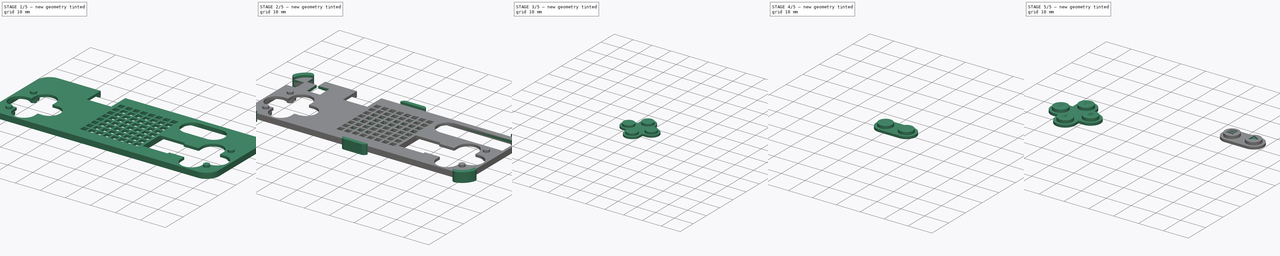
[diagram: build sequence overview — one tinted view per stage of 5, left to right]
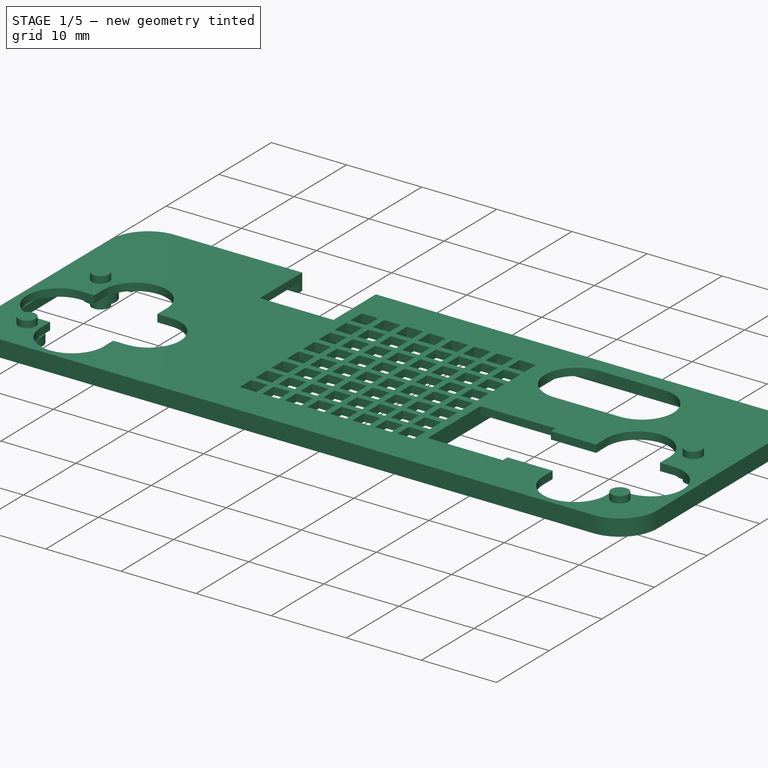
[diagram: stage 1 of 5 — iso view after this stage's code; geometry added in this stage tinted green]
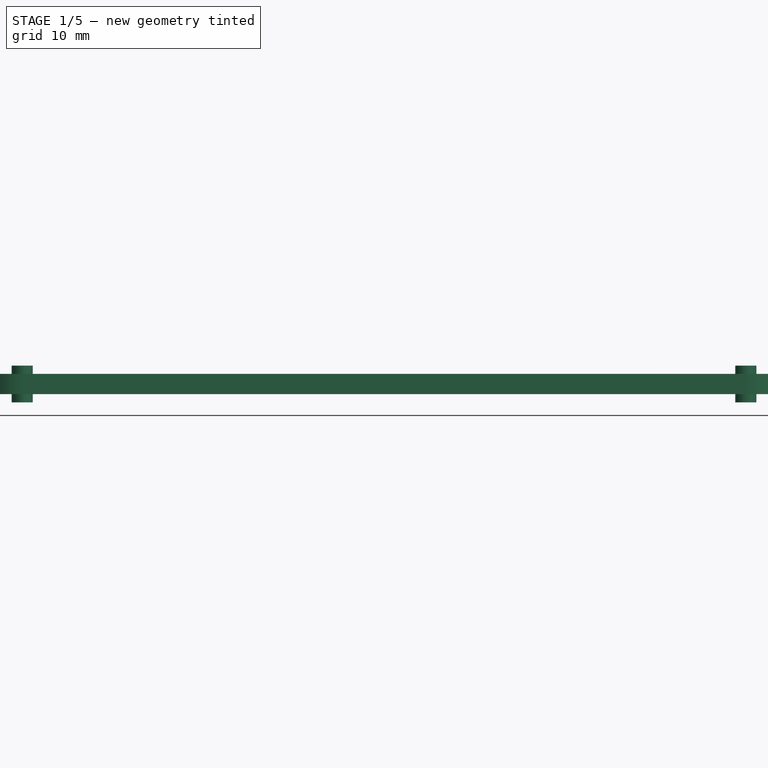
[diagram: stage 1 of 5 — front view after this stage's code; geometry added in this stage tinted green]
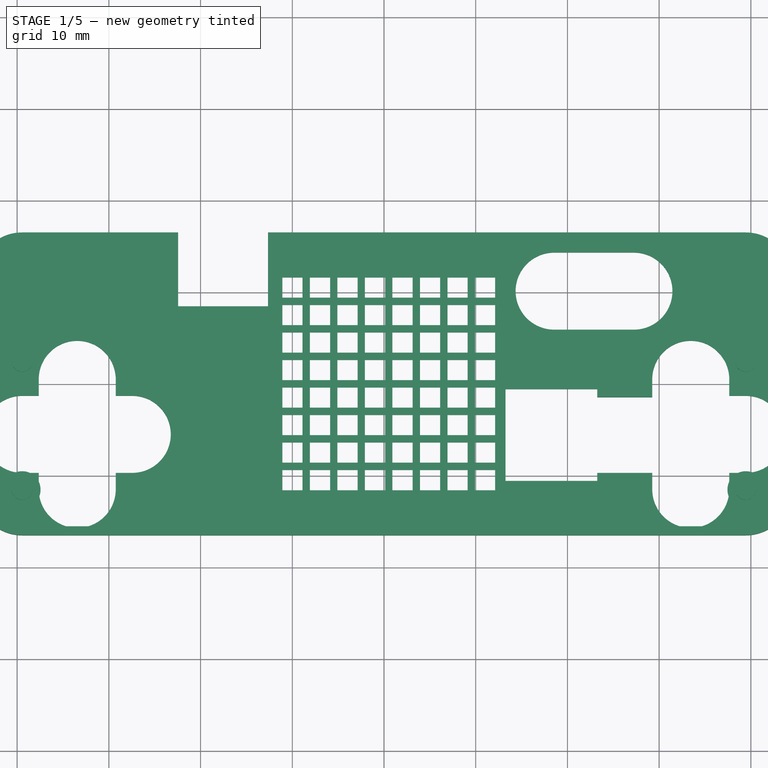
[diagram: stage 1 of 5 — top view after this stage's code; geometry added in this stage tinted green]
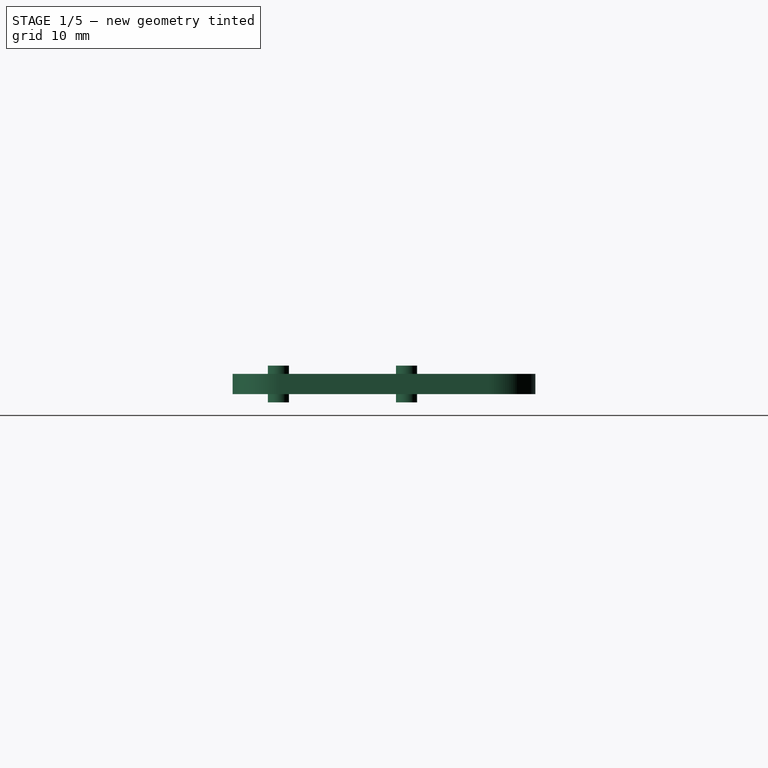
[diagram: stage 1 of 5 — right view after this stage's code; geometry added in this stage tinted green]
FCSTD DOCUMENT  (FreeCAD 1.0R39319 (Git))
Label: PIX6T4_Color
License: All rights reserved
LicenseURL: http://en.wikipedia.org/wiki/All_rights_reserved
objects: App::Link×330, Part::Feature×92, App::Part×24, Sketcher::SketchObject×22, PartDesign::SubShapeBinder×12, PartDesign::Pocket×12, PartDesign::Pad×8, PartDesign::Plane×7, PartDesign::LinearPattern×7, PartDesign::Point×5, PartDesign::CoordinateSystem×4, PartDesign::Line×4, PartDesign::Body×4, Part::Part2DObjectPython×4, PartDesign::PolarPattern×3, PartDesign::MultiTransform×2, PartDesign::Revolution×2, PartDesign::FeatureBase×1, PartDesign::Chamfer×1
note: 271 computed .brp shape members not serialized (recipe doc carries the construction recipe); baked Part::Feature solids carry a one-line shape summary decoded from their .brp

FEATURE [PartDesign::CoordinateSystem] Local_CS_e6d7
  AttacherType = Attacher::AttachEngine3D
  MapMode = 2
FEATURE [Part::Feature] Pcb_e6d7
  Placement = pos=(-194.45,116.51,0) rot=(0,0,1;0rad)
  shape: bbox 88.9 x 33.02 x 0.8 mm, 64 faces (baked)
FEATURE [Sketcher::SketchObject] PCB_Sketch_e6d7
  ArcFitTolerance = 1e-06
  FullyConstrained = false
  MakeInternals = false
  sketch-geometry (8):
    g0: LineSegment StartX=-44.45 StartY=-11.51 StartZ=0 EndX=-44.45 EndY=11.51 EndZ=0
    g1: LineSegment StartX=44.45 StartY=11.51 StartZ=0 EndX=44.45 EndY=-11.51 EndZ=0
    g2: LineSegment StartX=-39.45 StartY=16.51 StartZ=0 EndX=39.45 EndY=16.51 EndZ=0
    g3: LineSegment StartX=39.45 StartY=-16.51 StartZ=0 EndX=-39.45 EndY=-16.51 EndZ=0
    g4: ArcOfCircle CenterX=39.45 CenterY=11.51 CenterZ=0 NormalX=0 NormalY=0 NormalZ=-1 AngleXU=1.5708 Radius=5 StartAngle=0 EndAngle=1.5708
    g5: ArcOfCircle CenterX=-39.45 CenterY=11.51 CenterZ=0 NormalX=0 NormalY=0 NormalZ=-1 AngleXU=-6.42331e-08 Radius=5 StartAngle=0 EndAngle=1.5708
    g6: ArcOfCircle CenterX=-39.45 CenterY=-11.51 CenterZ=0 NormalX=0 NormalY=0 NormalZ=-1 AngleXU=-1.5708 Radius=5 StartAngle=0 EndAngle=1.5708
    g7: ArcOfCircle CenterX=39.45 CenterY=-11.51 CenterZ=0 NormalX=0 NormalY=0 NormalZ=-1 AngleXU=3.14159 Radius=5 StartAngle=0 EndAngle=1.5708
FEATURE [App::Part] Board_Geoms_e6d7
  Group = -> [Pcb_e6d7,PCB_Sketch_e6d7]
  Origin = -> Origin
FEATURE [Part::Feature] Shape  label="C13_C_0402_1005Metric_50b0befdca8e"
  Placement = pos=(2.02,6,0) rot=(0,0,1;0rad)
  shape: bbox 1 x 0.5 x 0.5 mm, 28 faces (baked)
FEATURE [Part::Feature] Part__Feature  label="LED-SMD_4P-L1.4-W1.4-TL"
  shape: bbox 1.4 x 1.4 x 0.1 mm, 14 faces (baked)
FEATURE [Part::Feature] Part__Feature001  label="LED-SMD_4P-L1.4-W1.4-TL001"
  shape: bbox 0.5 x 0.5 x 0.02 mm, 11 faces (baked)
FEATURE [Part::Feature] Part__Feature002  label="LED-SMD_4P-L1.4-W1.4-TL002"
  shape: bbox 0.5 x 0.5 x 0.02 mm, 11 faces (baked)
FEATURE [Part::Feature] Part__Feature003  label="LED-SMD_4P-L1.4-W1.4-TL003"
  shape: bbox 0.5 x 0.5 x 0.02 mm, 11 faces (baked)
FEATURE [Part::Feature] Part__Feature004  label="LED-SMD_4P-L1.4-W1.4-TL004"
  shape: bbox 0.5 x 0.5 x 0.02 mm, 11 faces (baked)
FEATURE [Part::Feature] Part__Feature005  label="LED-SMD_4P-L1.4-W1.4-TL005"
  shape: bbox 1.4 x 1.4 x 0.28 mm, 6 faces (baked)
FEATURE [Part::Feature] Part__Feature006  label="LED-SMD_4P-L1.4-W1.4-TL006"
  shape: bbox 1.4 x 1.4 x 0.01 mm, 76 faces (baked)
FEATURE [App::Part] LED_SMD_4P_L1_4_W1_4_TL  label="D13_LED-SMD_4P-L1.4-W1.4-TL007_e765e95fd25d"
  Group = -> [Part__Feature,Part__Feature001,Part__Feature002,Part__Feature003,Part__Feature004,Part__Feature005,Part__Feature006]
  Origin = -> Origin008
  Placement = pos=(2.02,7.5,0) rot=(0,0,1;1.5708rad)
FEATURE [App::Link] D13_LED_SMD_4P_L1_4_W1_4_TL007_e765e95fd25d_ln_  label="D48_LED-SMD_4P-L1.4-W1.4-TL007_c05e2c5abbd5"
  LinkPlacement = pos=(11.02,-4.5,0) rot=(0,0,1;1.5708rad)
  LinkedObject = -> LED_SMD_4P_L1_4_W1_4_TL
  Placement = pos=(11.02,-4.5,0) rot=(0,0,1;1.5708rad)
FEATURE [App::Link] C13_C_0402_1005Metric_50b0befdca8e_ln_  label="C60_C_0402_1005Metric_2370c530492c"
  LinkPlacement = pos=(-0.98,-6,0) rot=(0,0,1;0rad)
  LinkedObject = -> Shape
  Placement = pos=(-0.98,-6,0) rot=(0,0,1;0rad)
FEATURE [App::Link] D13_LED_SMD_4P_L1_4_W1_4_TL007_e765e95fd25d_ln_001  label="D36_LED-SMD_4P-L1.4-W1.4-TL007_5cdba7c2c4c5"
  LinkPlacement = pos=(-0.98,-1.5,0) rot=(0,0,1;1.5708rad)
  LinkedObject = -> LED_SMD_4P_L1_4_W1_4_TL
  Placement = pos=(-0.98,-1.5,0) rot=(0,0,1;1.5708rad)
FEATURE [App::Link] C13_C_0402_1005Metric_50b0befdca8e_ln_001  label="C54_C_0402_1005Metric_1c533becab6f"
  LinkPlacement = pos=(5.02,-3,0) rot=(0,0,1;0rad)
  LinkedObject = -> Shape
  Placement = pos=(5.02,-3,0) rot=(0,0,1;0rad)
FEATURE [App::Link] D13_LED_SMD_4P_L1_4_W1_4_TL007_e765e95fd25d_ln_002  label="D61_LED-SMD_4P-L1.4-W1.4-TL007_4615cf78e426"
  LinkPlacement = pos=(2.02,-10.5,0) rot=(0,0,1;1.5708rad)
  LinkedObject = -> LED_SMD_4P_L1_4_W1_4_TL
  Placement = pos=(2.02,-10.5,0) rot=(0,0,1;1.5708rad)
FEATURE [App::Link] C13_C_0402_1005Metric_50b0befdca8e_ln_002  label="C35_C_0402_1005Metric_8fa559b37bee"
  LinkPlacement = pos=(-16.85,-9.19,0) rot=(0,0,1;1.5708rad)
  LinkedObject = -> Shape
  Placement = pos=(-16.85,-9.19,0) rot=(0,0,1;1.5708rad)
FEATURE [App::Link] D13_LED_SMD_4P_L1_4_W1_4_TL007_e765e95fd25d_ln_003  label="D14_LED-SMD_4P-L1.4-W1.4-TL007_eb801b891331"
  LinkPlacement = pos=(5.02,7.5,0) rot=(0,0,1;1.5708rad)
  LinkedObject = -> LED_SMD_4P_L1_4_W1_4_TL
  Placement = pos=(5.02,7.5,0) rot=(0,0,1;1.5708rad)
FEATURE [App::Link] C13_C_0402_1005Metric_50b0befdca8e_ln_003  label="C61_C_0402_1005Metric_cf5816e03fbc"
  LinkPlacement = pos=(2.02,-6,0) rot=(0,0,1;0rad)
  LinkedObject = -> Shape
  Placement = pos=(2.02,-6,0) rot=(0,0,1;0rad)
FEATURE [App::Link] C13_C_0402_1005Metric_50b0befdca8e_ln_004  label="C15_C_0402_1005Metric_e2e487685c80"
  LinkPlacement = pos=(8.02,6,0) rot=(0,0,1;0rad)
  LinkedObject = -> Shape
  Placement = pos=(8.02,6,0) rot=(0,0,1;0rad)
FEATURE [App::Link] C13_C_0402_1005Metric_50b0befdca8e_ln_005  label="C45_C_0402_1005Metric_4cd5275bcfa9"
  LinkPlacement = pos=(2.02,0,0) rot=(0,0,1;0rad)
  LinkedObject = -> Shape
  Placement = pos=(2.02,0,0) rot=(0,0,1;0rad)
FEATURE [App::Link] C13_C_0402_1005Metric_50b0befdca8e_ln_006  label="C72_C_0402_1005Metric_6d59b78d1e7b"
  LinkPlacement = pos=(11.02,-9,0) rot=(0,0,1;0rad)
  LinkedObject = -> Shape
  Placement = pos=(11.02,-9,0) rot=(0,0,1;0rad)
FEATURE [App::Link] D13_LED_SMD_4P_L1_4_W1_4_TL007_e765e95fd25d_ln_004  label="D63_LED-SMD_4P-L1.4-W1.4-TL007_90f3527c0578"
  LinkPlacement = pos=(8.02,-10.5,0) rot=(0,0,1;1.5708rad)
  LinkedObject = -> LED_SMD_4P_L1_4_W1_4_TL
  Placement = pos=(8.02,-10.5,0) rot=(0,0,1;1.5708rad)
FEATURE [App::Link] C13_C_0402_1005Metric_50b0befdca8e_ln_007  label="C83_C_0402_1005Metric_5f0e74c518fe"
  LinkPlacement = pos=(-34.05,12.91,0) rot=(0,0,1;3.14159rad)
  LinkedObject = -> Shape
  Placement = pos=(-34.05,12.91,0) rot=(0,0,1;3.14159rad)
FEATURE [App::Link] C13_C_0402_1005Metric_50b0befdca8e_ln_008  label="C67_C_0402_1005Metric_19db1237b66d"
  LinkPlacement = pos=(-3.98,-9,0) rot=(0,0,1;0rad)
  LinkedObject = -> Shape
  Placement = pos=(-3.98,-9,0) rot=(0,0,1;0rad)
FEATURE [App::Link] D13_LED_SMD_4P_L1_4_W1_4_TL007_e765e95fd25d_ln_005  label="D25_LED-SMD_4P-L1.4-W1.4-TL007_3c7e8d3d0265"
  LinkPlacement = pos=(-9.98,1.5,0) rot=(0,0,1;1.5708rad)
  LinkedObject = -> LED_SMD_4P_L1_4_W1_4_TL
  Placement = pos=(-9.98,1.5,0) rot=(0,0,1;1.5708rad)
FEATURE [App::Link] C13_C_0402_1005Metric_50b0befdca8e_ln_009  label="C66_C_0402_1005Metric_48a81a4cd943"
  LinkPlacement = pos=(-6.98,-9,0) rot=(0,0,1;0rad)
  LinkedObject = -> Shape
  Placement = pos=(-6.98,-9,0) rot=(0,0,1;0rad)
FEATURE [App::Link] D13_LED_SMD_4P_L1_4_W1_4_TL007_e765e95fd25d_ln_006  label="D6_LED-SMD_4P-L1.4-W1.4-TL007_f7a4556ed106"
  LinkPlacement = pos=(5.02,10.5,0) rot=(0,0,1;1.5708rad)
  LinkedObject = -> LED_SMD_4P_L1_4_W1_4_TL
  Placement = pos=(5.02,10.5,0) rot=(0,0,1;1.5708rad)
FEATURE [Part::Feature] Part__Feature007  label="SW-SMD_4P-L5.1-W5.1-P3.70-LS6.5-TL_H1.5"
  shape: bbox 6.5 x 5 x 0.75 mm, 94 faces (baked)
FEATURE [Part::Feature] Part__Feature008  label="SW-SMD_4P-L5.1-W5.1-P3.70-LS6.5-TL_H1.006"
  shape: bbox 2.165 x 2.165 x 0.5 mm, 6 faces (baked)
FEATURE [Part::Feature] Part__Feature009  label="SW-SMD_4P-L5.1-W5.1-P3.70-LS6.5-TL_H1.007"
  shape: bbox 5.2 x 5.201 x 1.2 mm, 314 faces (baked)
FEATURE [App::Part] SW_SMD_4P_L5_1_W5_1_P3_70_LS6_5_TL_H1_5  label="SW2_SW-SMD_4P-L5.1-W5.1-P3.70-LS6.5-TL_H1.008_4c1cc90a72a0"
  Group = -> [Part__Feature007,Part__Feature008,Part__Feature009]
  Origin = -> Origin009
  Placement = pos=(-39.45,-5.51,0) rot=(0,0,1;0rad)
FEATURE [App::Link] D13_LED_SMD_4P_L1_4_W1_4_TL007_e765e95fd25d_ln_007  label="D24_LED-SMD_4P-L1.4-W1.4-TL007_21512f89c635"
  LinkPlacement = pos=(11.02,4.5,0) rot=(0,0,1;1.5708rad)
  LinkedObject = -> LED_SMD_4P_L1_4_W1_4_TL
  Placement = pos=(11.02,4.5,0) rot=(0,0,1;1.5708rad)
FEATURE [App::Link] C13_C_0402_1005Metric_50b0befdca8e_ln_010  label="C80_C_0402_1005Metric_7ffb763a014d"
  LinkPlacement = pos=(11.02,-12,0) rot=(0,0,1;0rad)
  LinkedObject = -> Shape
  Placement = pos=(11.02,-12,0) rot=(0,0,1;0rad)
FEATURE [App::Link] C13_C_0402_1005Metric_50b0befdca8e_ln_011  label="C49_C_0402_1005Metric_d94834e07465"
  LinkPlacement = pos=(-9.98,-3,0) rot=(0,0,1;0rad)
  LinkedObject = -> Shape
  Placement = pos=(-9.98,-3,0) rot=(0,0,1;0rad)
FEATURE [Part::Feature] Shape001  label="BUZ1_BUZ-SMD_L9.0-W9.0_PKMCS0909E4000-R1_07a8d7dddef7"
  Placement = pos=(18.25,-5.59,0) rot=(0,0,1;0rad)
  shape: bbox 9.002 x 9 x 3.011 mm, 257 faces (baked)
FEATURE [App::Link] C13_C_0402_1005Metric_50b0befdca8e_ln_012  label="C79_C_0402_1005Metric_c1d9116edd94"
  LinkPlacement = pos=(8.02,-12,0) rot=(0,0,1;0rad)
  LinkedObject = -> Shape
  Placement = pos=(8.02,-12,0) rot=(0,0,1;0rad)
FEATURE [App::Link] C13_C_0402_1005Metric_50b0befdca8e_ln_013  label="C44_C_0402_1005Metric_6d5ef9154afe"
  LinkPlacement = pos=(-0.98,0,0) rot=(0,0,1;0rad)
  LinkedObject = -> Shape
  Placement = pos=(-0.98,0,0) rot=(0,0,1;0rad)
FEATURE [App::Link] C13_C_0402_1005Metric_50b0befdca8e_ln_014  label="C41_C_0402_1005Metric_a780893dde87"
  LinkPlacement = pos=(-9.98,0,0) rot=(0,0,1;0rad)
  LinkedObject = -> Shape
  Placement = pos=(-9.98,0,0) rot=(0,0,1;0rad)
FEATURE [App::Link] D13_LED_SMD_4P_L1_4_W1_4_TL007_e765e95fd25d_ln_008  label="D28_LED-SMD_4P-L1.4-W1.4-TL007_77a7bd813002"
  LinkPlacement = pos=(-0.98,1.5,0) rot=(0,0,1;1.5708rad)
  LinkedObject = -> LED_SMD_4P_L1_4_W1_4_TL
  Placement = pos=(-0.98,1.5,0) rot=(0,0,1;1.5708rad)
FEATURE [App::Link] D13_LED_SMD_4P_L1_4_W1_4_TL007_e765e95fd25d_ln_009  label="D17_LED-SMD_4P-L1.4-W1.4-TL007_230e99c7dbe9"
  LinkPlacement = pos=(-9.98,4.5,0) rot=(0,0,1;1.5708rad)
  LinkedObject = -> LED_SMD_4P_L1_4_W1_4_TL
  Placement = pos=(-9.98,4.5,0) rot=(0,0,1;1.5708rad)
FEATURE [App::Link] D13_LED_SMD_4P_L1_4_W1_4_TL007_e765e95fd25d_ln_010  label="D64_LED-SMD_4P-L1.4-W1.4-TL007_f0c546666331"
  LinkPlacement = pos=(11.02,-10.5,0) rot=(0,0,1;1.5708rad)
  LinkedObject = -> LED_SMD_4P_L1_4_W1_4_TL
  Placement = pos=(11.02,-10.5,0) rot=(0,0,1;1.5708rad)
FEATURE [App::Link] D13_LED_SMD_4P_L1_4_W1_4_TL007_e765e95fd25d_ln_011  label="D51_LED-SMD_4P-L1.4-W1.4-TL007_616c522eb0d9"
  LinkPlacement = pos=(-3.98,-7.5,0) rot=(0,0,1;1.5708rad)
  LinkedObject = -> LED_SMD_4P_L1_4_W1_4_TL
  Placement = pos=(-3.98,-7.5,0) rot=(0,0,1;1.5708rad)
FEATURE [App::Link] D13_LED_SMD_4P_L1_4_W1_4_TL007_e765e95fd25d_ln_012  label="D44_LED-SMD_4P-L1.4-W1.4-TL007_858e41626292"
  LinkPlacement = pos=(-0.98,-4.5,0) rot=(0,0,1;1.5708rad)
  LinkedObject = -> LED_SMD_4P_L1_4_W1_4_TL
  Placement = pos=(-0.98,-4.5,0) rot=(0,0,1;1.5708rad)
FEATURE [App::Link] C13_C_0402_1005Metric_50b0befdca8e_ln_015  label="C4_C_0402_1005Metric_01c8a2e2667c"
  LinkPlacement = pos=(-0.98,9,0) rot=(0,0,1;0rad)
  LinkedObject = -> Shape
  Placement = pos=(-0.98,9,0) rot=(0,0,1;0rad)
FEATURE [App::Link] C13_C_0402_1005Metric_50b0befdca8e_ln_016  label="C30_C_0402_1005Metric_184b979e15a6"
  LinkPlacement = pos=(-17.45,-6.79,0) rot=(0,0,-1;1.5708rad)
  LinkedObject = -> Shape
  Placement = pos=(-17.45,-6.79,0) rot=(0,0,-1;1.5708rad)
FEATURE [App::Link] D13_LED_SMD_4P_L1_4_W1_4_TL007_e765e95fd25d_ln_013  label="D12_LED-SMD_4P-L1.4-W1.4-TL007_9f87d0eeb1eb"
  LinkPlacement = pos=(-0.98,7.5,0) rot=(0,0,1;1.5708rad)
  LinkedObject = -> LED_SMD_4P_L1_4_W1_4_TL
  Placement = pos=(-0.98,7.5,0) rot=(0,0,1;1.5708rad)
FEATURE [App::Link] D13_LED_SMD_4P_L1_4_W1_4_TL007_e765e95fd25d_ln_014  label="D42_LED-SMD_4P-L1.4-W1.4-TL007_6a72c8ce0563"
  LinkPlacement = pos=(-6.98,-4.5,0) rot=(0,0,1;1.5708rad)
  LinkedObject = -> LED_SMD_4P_L1_4_W1_4_TL
  Placement = pos=(-6.98,-4.5,0) rot=(0,0,1;1.5708rad)
FEATURE [App::Link] D13_LED_SMD_4P_L1_4_W1_4_TL007_e765e95fd25d_ln_015  label="D47_LED-SMD_4P-L1.4-W1.4-TL007_71d10e62bc29"
  LinkPlacement = pos=(8.02,-4.5,0) rot=(0,0,1;1.5708rad)
  LinkedObject = -> LED_SMD_4P_L1_4_W1_4_TL
  Placement = pos=(8.02,-4.5,0) rot=(0,0,1;1.5708rad)
FEATURE [Part::Feature] Part__Feature010  label="SW-SMD_TS24CA"
  shape: bbox 4.55 x 2 x 1.8 mm, 57 faces (baked)
FEATURE [Part::Feature] Part__Feature011  label="SW-SMD_TS24CA001"
  shape: bbox 4.291 x 2.271 x 1.918 mm, 318 faces (baked)
FEATURE [App::Part] SW_SMD_TS24CA  label="SW11_SW-SMD_TS24CA002_ee30a3f0cec6"
  Group = -> [Part__Feature010,Part__Feature011]
  Origin = -> Origin010
  Placement = pos=(-37.65,14.79,0.4) rot=(0,0,1;0rad)
FEATURE [App::Link] D13_LED_SMD_4P_L1_4_W1_4_TL007_e765e95fd25d_ln_016  label="D58_LED-SMD_4P-L1.4-W1.4-TL007_fb7d74a6fcfa"
  LinkPlacement = pos=(-6.98,-10.5,0) rot=(0,0,1;1.5708rad)
  LinkedObject = -> LED_SMD_4P_L1_4_W1_4_TL
  Placement = pos=(-6.98,-10.5,0) rot=(0,0,1;1.5708rad)
FEATURE [App::Link] C13_C_0402_1005Metric_50b0befdca8e_ln_017  label="C2_C_0402_1005Metric_953fc5f48cb1"
  LinkPlacement = pos=(-7,9,0) rot=(0,0,1;0rad)
  LinkedObject = -> Shape
  Placement = pos=(-7,9,0) rot=(0,0,1;0rad)
FEATURE [App::Link] C13_C_0402_1005Metric_50b0befdca8e_ln_018  label="C1_C_0402_1005Metric_7025652b4433"
  LinkPlacement = pos=(-9.98,9,0) rot=(0,0,1;0rad)
  LinkedObject = -> Shape
  Placement = pos=(-9.98,9,0) rot=(0,0,1;0rad)
FEATURE [App::Link] C13_C_0402_1005Metric_50b0befdca8e_ln_019  label="C16_C_0402_1005Metric_1b68fecceaa7"
  LinkPlacement = pos=(11.02,6,0) rot=(0,0,1;0rad)
  LinkedObject = -> Shape
  Placement = pos=(11.02,6,0) rot=(0,0,1;0rad)
FEATURE [App::Link] C13_C_0402_1005Metric_50b0befdca8e_ln_020  label="C53_C_0402_1005Metric_11b3bb1674a7"
  LinkPlacement = pos=(2.02,-3,0) rot=(0,0,1;0rad)
  LinkedObject = -> Shape
  Placement = pos=(2.02,-3,0) rot=(0,0,1;0rad)
FEATURE [App::Link] D13_LED_SMD_4P_L1_4_W1_4_TL007_e765e95fd25d_ln_017  label="D19_LED-SMD_4P-L1.4-W1.4-TL007_1c8f9a66f710"
  LinkPlacement = pos=(-3.98,4.5,0) rot=(0,0,1;1.5708rad)
  LinkedObject = -> LED_SMD_4P_L1_4_W1_4_TL
  Placement = pos=(-3.98,4.5,0) rot=(0,0,1;1.5708rad)
FEATURE [App::Link] C13_C_0402_1005Metric_50b0befdca8e_ln_021  label="C8_C_0402_1005Metric_edb9ee3f750f"
  LinkPlacement = pos=(11.02,9,0) rot=(0,0,1;0rad)
  LinkedObject = -> Shape
  Placement = pos=(11.02,9,0) rot=(0,0,1;0rad)
FEATURE [App::Link] C13_C_0402_1005Metric_50b0befdca8e_ln_022  label="C55_C_0402_1005Metric_2a466eed5004"
  LinkPlacement = pos=(8.02,-3,0) rot=(0,0,1;0rad)
  LinkedObject = -> Shape
  Placement = pos=(8.02,-3,0) rot=(0,0,1;0rad)
FEATURE [App::Link] C13_C_0402_1005Metric_50b0befdca8e_ln_023  label="C25_C_0402_1005Metric_318f51788bf4"
  LinkPlacement = pos=(-13.2,2.11,0) rot=(0,0,1;0rad)
  LinkedObject = -> Shape
  Placement = pos=(-13.2,2.11,0) rot=(0,0,1;0rad)
FEATURE [App::Link] SW2_SW_SMD_4P_L5_1_W5_1_P3_70_LS6_5_TL_H1_008_4c1cc90a72a0_ln_  label="SW4_SW-SMD_4P-L5.1-W5.1-P3.70-LS6.5-TL_H1.008_c7a026f78110"
  LinkPlacement = pos=(-33.45,-11.51,0) rot=(0,0,1;0rad)
  LinkedObject = -> SW_SMD_4P_L5_1_W5_1_P3_70_LS6_5_TL_H1_5
  Placement = pos=(-33.45,-11.51,0) rot=(0,0,1;0rad)
FEATURE [App::Link] C13_C_0402_1005Metric_50b0befdca8e_ln_024  label="C63_C_0402_1005Metric_1efd5a657625"
  LinkPlacement = pos=(8.02,-6,0) rot=(0,0,1;0rad)
  LinkedObject = -> Shape
  Placement = pos=(8.02,-6,0) rot=(0,0,1;0rad)
FEATURE [App::Link] C13_C_0402_1005Metric_50b0befdca8e_ln_025  label="C77_C_0402_1005Metric_744f02e445cd"
  LinkPlacement = pos=(2.02,-12,0) rot=(0,0,1;0rad)
  LinkedObject = -> Shape
  Placement = pos=(2.02,-12,0) rot=(0,0,1;0rad)
FEATURE [App::Link] D13_LED_SMD_4P_L1_4_W1_4_TL007_e765e95fd25d_ln_018  label="D49_LED-SMD_4P-L1.4-W1.4-TL007_b400178c533d"
  LinkPlacement = pos=(-9.98,-7.5,0) rot=(0,0,1;1.5708rad)
  LinkedObject = -> LED_SMD_4P_L1_4_W1_4_TL
  Placement = pos=(-9.98,-7.5,0) rot=(0,0,1;1.5708rad)
FEATURE [App::Link] C13_C_0402_1005Metric_50b0befdca8e_ln_026  label="C39_C_0402_1005Metric_ba660178f847"
  LinkPlacement = pos=(8.02,3,0) rot=(0,0,1;0rad)
  LinkedObject = -> Shape
  Placement = pos=(8.02,3,0) rot=(0,0,1;0rad)
FEATURE [App::Link] D13_LED_SMD_4P_L1_4_W1_4_TL007_e765e95fd25d_ln_019  label="D56_LED-SMD_4P-L1.4-W1.4-TL007_7b4a22f89b0e"
  LinkPlacement = pos=(11.02,-7.5,0) rot=(0,0,1;1.5708rad)
  LinkedObject = -> LED_SMD_4P_L1_4_W1_4_TL
  Placement = pos=(11.02,-7.5,0) rot=(0,0,1;1.5708rad)
FEATURE [App::Link] SW2_SW_SMD_4P_L5_1_W5_1_P3_70_LS6_5_TL_H1_008_4c1cc90a72a0_ln_001  label="SW3_SW-SMD_4P-L5.1-W5.1-P3.70-LS6.5-TL_H1.008_a54e8632f1bb"
  LinkPlacement = pos=(-27.45,-5.51,0) rot=(0,0,1;0rad)
  LinkedObject = -> SW_SMD_4P_L5_1_W5_1_P3_70_LS6_5_TL_H1_5
  Placement = pos=(-27.45,-5.51,0) rot=(0,0,1;0rad)
FEATURE [App::Link] D13_LED_SMD_4P_L1_4_W1_4_TL007_e765e95fd25d_ln_020  label="D9_LED-SMD_4P-L1.4-W1.4-TL007_b8d005ff5f1c"
  LinkPlacement = pos=(-9.98,7.5,0) rot=(0,0,1;1.5708rad)
  LinkedObject = -> LED_SMD_4P_L1_4_W1_4_TL
  Placement = pos=(-9.98,7.5,0) rot=(0,0,1;1.5708rad)
FEATURE [App::Link] C13_C_0402_1005Metric_50b0befdca8e_ln_027  label="C6_C_0402_1005Metric_508362c3ee81"
  LinkPlacement = pos=(5.02,9,0) rot=(0,0,1;0rad)
  LinkedObject = -> Shape
  Placement = pos=(5.02,9,0) rot=(0,0,1;0rad)
FEATURE [Part::Feature] Part__Feature012  label="SOIC-8_L5.3-W5.3-H1.9-LS7.9-P1.27"
  shape: bbox 5.301 x 5.301 x 1.9 mm, 164 faces (baked)
FEATURE [Part::Feature] Part__Feature013  label="SOIC-8_L5.3-W5.3-H1.9-LS7.9-P1.028"
  shape: bbox 0.4 x 1.303 x 1.272 mm, 52 faces (baked)
FEATURE [Part::Feature] Part__Feature014  label="SOIC-8_L5.3-W5.3-H1.9-LS7.9-P1.029"
  shape: bbox 0.4 x 1.303 x 1.272 mm, 52 faces (baked)
FEATURE [Part::Feature] Part__Feature015  label="SOIC-8_L5.3-W5.3-H1.9-LS7.9-P1.030"
  shape: bbox 0.4 x 1.303 x 1.272 mm, 52 faces (baked)
FEATURE [Part::Feature] Part__Feature016  label="SOIC-8_L5.3-W5.3-H1.9-LS7.9-P1.031"
  shape: bbox 0.4 x 1.303 x 1.272 mm, 52 faces (baked)
FEATURE [Part::Feature] Part__Feature017  label="SOIC-8_L5.3-W5.3-H1.9-LS7.9-P1.032"
  shape: bbox 0.4 x 1.303 x 1.272 mm, 52 faces (baked)
FEATURE [Part::Feature] Part__Feature018  label="SOIC-8_L5.3-W5.3-H1.9-LS7.9-P1.033"
  shape: bbox 0.4 x 1.303 x 1.272 mm, 52 faces (baked)
FEATURE [Part::Feature] Part__Feature019  label="SOIC-8_L5.3-W5.3-H1.9-LS7.9-P1.034"
  shape: bbox 0.4 x 1.303 x 1.272 mm, 52 faces (baked)
FEATURE [Part::Feature] Part__Feature020  label="SOIC-8_L5.3-W5.3-H1.9-LS7.9-P1.035"
  shape: bbox 0.4 x 1.303 x 1.272 mm, 52 faces (baked)
FEATURE [Part::Feature] Part__Feature021  label="SOIC-8_L5.3-W5.3-H1.9-LS7.9-P1.036"
  shape: bbox 0.05899 x 0.1119 x 0.001 mm, 8 faces (baked)
FEATURE [Part::Feature] Part__Feature022  label="SOIC-8_L5.3-W5.3-H1.9-LS7.9-P1.037"
  shape: bbox 0.08375 x 0.1156 x 0.001 mm, 16 faces (baked)
FEATURE [Part::Feature] Part__Feature023  label="SOIC-8_L5.3-W5.3-H1.9-LS7.9-P1.038"
  shape: bbox 0.06016 x 0.1119 x 0.001 mm, 14 faces (baked)
FEATURE [Part::Feature] Part__Feature024  label="SOIC-8_L5.3-W5.3-H1.9-LS7.9-P1.039"
  shape: bbox 0.09107 x 0.1119 x 0.001 mm, 16 faces (baked)
FEATURE [Part::Feature] Part__Feature025  label="SOIC-8_L5.3-W5.3-H1.9-LS7.9-P1.040"
  shape: bbox 0.1006 x 0.1119 x 0.001 mm, 16 faces (baked)
FEATURE [Part::Feature] Part__Feature026  label="SOIC-8_L5.3-W5.3-H1.9-LS7.9-P1.041"
  shape: bbox 0.06016 x 0.1119 x 0.001 mm, 14 faces (baked)
FEATURE [Part::Feature] Part__Feature027  label="SOIC-8_L5.3-W5.3-H1.9-LS7.9-P1.042"
  shape: bbox 0.06419 x 0.08361 x 0.001 mm, 24 faces (baked)
FEATURE [Part::Feature] Part__Feature028  label="SOIC-8_L5.3-W5.3-H1.9-LS7.9-P1.043"
  shape: bbox 0.05396 x 0.08361 x 0.001 mm, 23 faces (baked)
FEATURE [Part::Feature] Part__Feature029  label="SOIC-8_L5.3-W5.3-H1.9-LS7.9-P1.044"
  shape: bbox 0.07669 x 0.1175 x 0.001 mm, 17 faces (baked)
FEATURE [Part::Feature] Part__Feature030  label="SOIC-8_L5.3-W5.3-H1.9-LS7.9-P1.045"
  shape: bbox 0.06016 x 0.1119 x 0.001 mm, 14 faces (baked)
FEATURE [Part::Feature] Part__Feature031  label="SOIC-8_L5.3-W5.3-H1.9-LS7.9-P1.046"
  shape: bbox 0.09107 x 0.1119 x 0.001 mm, 16 faces (baked)
FEATURE [Part::Feature] Part__Feature032  label="SOIC-8_L5.3-W5.3-H1.9-LS7.9-P1.047"
  shape: bbox 0.1006 x 0.1119 x 0.001 mm, 16 faces (baked)
FEATURE [Part::Feature] Part__Feature033  label="SOIC-8_L5.3-W5.3-H1.9-LS7.9-P1.048"
  shape: bbox 0.5074 x 0.3722 x 0.001 mm, 37 faces (baked)
FEATURE [App::Part] SOIC_8_L5_3_W5_3_H1_9_LS7_9_P1_27  label="U2_SOIC-8_L5.3-W5.3-H1.9-LS7.9-P1.049_c77e192e0677"
  Group = -> [Part__Feature012,Part__Feature013,Part__Feature014,Part__Feature015,Part__Feature016,Part__Feature017,Part__Feature018,Part__Feature019,Part__Feature020,Part__Feature021,Part__Feature022,Part__Feature023,Part__Feature024,Part__Feature025,Part__Feature026,Part__Feature027,Part__Feature028,Part__Feature029,Part__Feature030,Part__Feature031,Part__Feature032,Part__Feature033]
  Origin = -> Origin011
  Placement = pos=(-26.45,5.51,0) rot=(0,0,-1;1.5708rad)
FEATURE [App::Link] D13_LED_SMD_4P_L1_4_W1_4_TL007_e765e95fd25d_ln_021  label="D38_LED-SMD_4P-L1.4-W1.4-TL007_a82ac218bbbf"
  LinkPlacement = pos=(5.02,-1.5,0) rot=(0,0,1;1.5708rad)
  LinkedObject = -> LED_SMD_4P_L1_4_W1_4_TL
  Placement = pos=(5.02,-1.5,0) rot=(0,0,1;1.5708rad)
FEATURE [App::Link] D13_LED_SMD_4P_L1_4_W1_4_TL007_e765e95fd25d_ln_022  label="D5_LED-SMD_4P-L1.4-W1.4-TL007_70b6fc2bc980"
  LinkPlacement = pos=(2.02,10.5,0) rot=(0,0,1;1.5708rad)
  LinkedObject = -> LED_SMD_4P_L1_4_W1_4_TL
  Placement = pos=(2.02,10.5,0) rot=(0,0,1;1.5708rad)
FEATURE [Part::Feature] Shape002  label="U4_SOT-223_3fe092ff7212"
  Placement = pos=(-28.65,12.91,0) rot=(0,0,1;3.14159rad)
  shape: bbox 7 x 6.5 x 1.7 mm, 75 faces (baked)
FEATURE [App::Link] D13_LED_SMD_4P_L1_4_W1_4_TL007_e765e95fd25d_ln_023  label="D18_LED-SMD_4P-L1.4-W1.4-TL007_7985b83214ec"
  LinkPlacement = pos=(-6.98,4.5,0) rot=(0,0,1;1.5708rad)
  LinkedObject = -> LED_SMD_4P_L1_4_W1_4_TL
  Placement = pos=(-6.98,4.5,0) rot=(0,0,1;1.5708rad)
FEATURE [App::Link] C13_C_0402_1005Metric_50b0befdca8e_ln_028  label="C12_C_0402_1005Metric_1c597ddccefb"
  LinkPlacement = pos=(-0.98,6,0) rot=(0,0,1;0rad)
  LinkedObject = -> Shape
  Placement = pos=(-0.98,6,0) rot=(0,0,1;0rad)
FEATURE [App::Link] D13_LED_SMD_4P_L1_4_W1_4_TL007_e765e95fd25d_ln_024  label="D11_LED-SMD_4P-L1.4-W1.4-TL007_eadc79c3472c"
  LinkPlacement = pos=(-3.98,7.5,0) rot=(0,0,1;1.5708rad)
  LinkedObject = -> LED_SMD_4P_L1_4_W1_4_TL
  Placement = pos=(-3.98,7.5,0) rot=(0,0,1;1.5708rad)
FEATURE [App::Link] D13_LED_SMD_4P_L1_4_W1_4_TL007_e765e95fd25d_ln_025  label="D37_LED-SMD_4P-L1.4-W1.4-TL007_02761867d630"
  LinkPlacement = pos=(2.02,-1.5,0) rot=(0,0,1;1.5708rad)
  LinkedObject = -> LED_SMD_4P_L1_4_W1_4_TL
  Placement = pos=(2.02,-1.5,0) rot=(0,0,1;1.5708rad)
FEATURE [App::Link] D13_LED_SMD_4P_L1_4_W1_4_TL007_e765e95fd25d_ln_026  label="D45_LED-SMD_4P-L1.4-W1.4-TL007_7a3e79de33a8"
  LinkPlacement = pos=(2.02,-4.5,0) rot=(0,0,1;1.5708rad)
  LinkedObject = -> LED_SMD_4P_L1_4_W1_4_TL
  Placement = pos=(2.02,-4.5,0) rot=(0,0,1;1.5708rad)
FEATURE [App::Link] C13_C_0402_1005Metric_50b0befdca8e_ln_029  label="C19_C_0402_1005Metric_b6de50ad9223"
  LinkPlacement = pos=(-3.98,3,0) rot=(0,0,1;0rad)
  LinkedObject = -> Shape
  Placement = pos=(-3.98,3,0) rot=(0,0,1;0rad)
FEATURE [App::Link] SW2_SW_SMD_4P_L5_1_W5_1_P3_70_LS6_5_TL_H1_008_4c1cc90a72a0_ln_002  label="SW8_SW-SMD_4P-L5.1-W5.1-P3.70-LS6.5-TL_H1.008_8cfe7189ef5c"
  LinkPlacement = pos=(39.45,-5.51,0) rot=(0,0,1;0rad)
  LinkedObject = -> SW_SMD_4P_L5_1_W5_1_P3_70_LS6_5_TL_H1_5
  Placement = pos=(39.45,-5.51,0) rot=(0,0,1;0rad)
FEATURE [App::Link] C13_C_0402_1005Metric_50b0befdca8e_ln_030  label="C82_C_0402_1005Metric_41e68891d82f"
  LinkPlacement = pos=(-23.25,12.51,0) rot=(0,0,1;0rad)
  LinkedObject = -> Shape
  Placement = pos=(-23.25,12.51,0) rot=(0,0,1;0rad)
FEATURE [Part::Feature] Shape003  label="Y1_OSC-SMD_4P-L3.2-W2.5-CJ13-320001210A20_ccef43d2d814"
  Placement = pos=(-19.45,-9.49,0) rot=(0,0,1;0rad)
  shape: bbox 3.2 x 2.5 x 0.811 mm, 376 faces (baked)
FEATURE [App::Link] D13_LED_SMD_4P_L1_4_W1_4_TL007_e765e95fd25d_ln_027  label="D30_LED-SMD_4P-L1.4-W1.4-TL007_c53f93e9582e"
  LinkPlacement = pos=(5.02,1.5,0) rot=(0,0,1;1.5708rad)
  LinkedObject = -> LED_SMD_4P_L1_4_W1_4_TL
  Placement = pos=(5.02,1.5,0) rot=(0,0,1;1.5708rad)
FEATURE [App::Link] D13_LED_SMD_4P_L1_4_W1_4_TL007_e765e95fd25d_ln_028  label="D7_LED-SMD_4P-L1.4-W1.4-TL007_16e5e5975719"
  LinkPlacement = pos=(8.02,10.5,0) rot=(0,0,1;1.5708rad)
  LinkedObject = -> LED_SMD_4P_L1_4_W1_4_TL
  Placement = pos=(8.02,10.5,0) rot=(0,0,1;1.5708rad)
FEATURE [App::Link] C13_C_0402_1005Metric_50b0befdca8e_ln_031  label="C78_C_0402_1005Metric_095a76e7daa2"
  LinkPlacement = pos=(5.02,-12,0) rot=(0,0,1;0rad)
  LinkedObject = -> Shape
  Placement = pos=(5.02,-12,0) rot=(0,0,1;0rad)
FEATURE [App::Link] C13_C_0402_1005Metric_50b0befdca8e_ln_032  label="C81_C_0402_1005Metric_fc47ba9ac3d6"
  LinkPlacement = pos=(-23.25,15.21,0) rot=(0,0,1;0rad)
  LinkedObject = -> Shape
  Placement = pos=(-23.25,15.21,0) rot=(0,0,1;0rad)
FEATURE [App::Link] C13_C_0402_1005Metric_50b0befdca8e_ln_033  label="C11_C_0402_1005Metric_890f77a5cc33"
  LinkPlacement = pos=(-3.98,6,0) rot=(0,0,1;0rad)
  LinkedObject = -> Shape
  Placement = pos=(-3.98,6,0) rot=(0,0,1;0rad)
FEATURE [App::Link] C13_C_0402_1005Metric_50b0befdca8e_ln_034  label="C43_C_0402_1005Metric_2cb776a6986f"
  LinkPlacement = pos=(-3.98,0,0) rot=(0,0,1;0rad)
  LinkedObject = -> Shape
  Placement = pos=(-3.98,0,0) rot=(0,0,1;0rad)
FEATURE [App::Link] D13_LED_SMD_4P_L1_4_W1_4_TL007_e765e95fd25d_ln_029  label="D54_LED-SMD_4P-L1.4-W1.4-TL007_e9dd7f342aa6"
  LinkPlacement = pos=(5.02,-7.5,0) rot=(0,0,1;1.5708rad)
  LinkedObject = -> LED_SMD_4P_L1_4_W1_4_TL
  Placement = pos=(5.02,-7.5,0) rot=(0,0,1;1.5708rad)
FEATURE [App::Link] C13_C_0402_1005Metric_50b0befdca8e_ln_035  label="C31_C_0402_1005Metric_b0e26684f526"
  LinkPlacement = pos=(-14.3,3.51,0) rot=(0,0,1;1.5708rad)
  LinkedObject = -> Shape
  Placement = pos=(-14.3,3.51,0) rot=(0,0,1;1.5708rad)
FEATURE [App::Link] D13_LED_SMD_4P_L1_4_W1_4_TL007_e765e95fd25d_ln_030  label="D8_LED-SMD_4P-L1.4-W1.4-TL007_b769cb7b916d"
  LinkPlacement = pos=(11.02,10.5,0) rot=(0,0,1;1.5708rad)
  LinkedObject = -> LED_SMD_4P_L1_4_W1_4_TL
  Placement = pos=(11.02,10.5,0) rot=(0,0,1;1.5708rad)
FEATURE [App::Link] C13_C_0402_1005Metric_50b0befdca8e_ln_036  label="C68_C_0402_1005Metric_8ec2d2eeec42"
  LinkPlacement = pos=(-0.98,-9,0) rot=(0,0,1;0rad)
  LinkedObject = -> Shape
  Placement = pos=(-0.98,-9,0) rot=(0,0,1;0rad)
FEATURE [App::Link] SW2_SW_SMD_4P_L5_1_W5_1_P3_70_LS6_5_TL_H1_008_4c1cc90a72a0_ln_003  label="SW6_SW-SMD_4P-L5.1-W5.1-P3.70-LS6.5-TL_H1.008_a66dbdf2f8c2"
  LinkPlacement = pos=(33.45,0.49,0) rot=(0,0,1;0rad)
  LinkedObject = -> SW_SMD_4P_L5_1_W5_1_P3_70_LS6_5_TL_H1_5
  Placement = pos=(33.45,0.49,0) rot=(0,0,1;0rad)
FEATURE [App::Link] D13_LED_SMD_4P_L1_4_W1_4_TL007_e765e95fd25d_ln_031  label="D3_LED-SMD_4P-L1.4-W1.4-TL007_3d55487a51b3"
  LinkPlacement = pos=(-3.98,10.5,0) rot=(0,0,1;1.5708rad)
  LinkedObject = -> LED_SMD_4P_L1_4_W1_4_TL
  Placement = pos=(-3.98,10.5,0) rot=(0,0,1;1.5708rad)
FEATURE [App::Link] C13_C_0402_1005Metric_50b0befdca8e_ln_037  label="C51_C_0402_1005Metric_c0b66a76d117"
  LinkPlacement = pos=(-3.98,-3,0) rot=(0,0,1;0rad)
  LinkedObject = -> Shape
  Placement = pos=(-3.98,-3,0) rot=(0,0,1;0rad)
FEATURE [App::Link] SW2_SW_SMD_4P_L5_1_W5_1_P3_70_LS6_5_TL_H1_008_4c1cc90a72a0_ln_004  label="SW1_SW-SMD_4P-L5.1-W5.1-P3.70-LS6.5-TL_H1.008_0bc0696d0aa8"
  LinkPlacement = pos=(-33.45,0.49,0) rot=(0,0,1;0rad)
  LinkedObject = -> SW_SMD_4P_L5_1_W5_1_P3_70_LS6_5_TL_H1_5
  Placement = pos=(-33.45,0.49,0) rot=(0,0,1;0rad)
FEATURE [App::Link] C13_C_0402_1005Metric_50b0befdca8e_ln_038  label="C56_C_0402_1005Metric_527647c66f2a"
  LinkPlacement = pos=(11.02,-3,0) rot=(0,0,1;0rad)
  LinkedObject = -> Shape
  Placement = pos=(11.02,-3,0) rot=(0,0,1;0rad)
FEATURE [App::Link] C13_C_0402_1005Metric_50b0befdca8e_ln_039  label="C17_C_0402_1005Metric_be455fc0b5ac"
  LinkPlacement = pos=(-9.98,3,0) rot=(0,0,1;0rad)
  LinkedObject = -> Shape
  Placement = pos=(-9.98,3,0) rot=(0,0,1;0rad)
FEATURE [App::Link] C13_C_0402_1005Metric_50b0befdca8e_ln_040  label="C74_C_0402_1005Metric_fa63437e5dc5"
  LinkPlacement = pos=(-6.98,-12,0) rot=(0,0,1;0rad)
  LinkedObject = -> Shape
  Placement = pos=(-6.98,-12,0) rot=(0,0,1;0rad)
FEATURE [App::Link] D13_LED_SMD_4P_L1_4_W1_4_TL007_e765e95fd25d_ln_032  label="D26_LED-SMD_4P-L1.4-W1.4-TL007_1eca07251913"
  LinkPlacement = pos=(-6.98,1.5,0) rot=(0,0,1;1.5708rad)
  LinkedObject = -> LED_SMD_4P_L1_4_W1_4_TL
  Placement = pos=(-6.98,1.5,0) rot=(0,0,1;1.5708rad)
FEATURE [App::Link] C13_C_0402_1005Metric_50b0befdca8e_ln_041  label="C57_C_0402_1005Metric_0728b7c2f79e"
  LinkPlacement = pos=(-9.98,-6,0) rot=(0,0,1;0rad)
  LinkedObject = -> Shape
  Placement = pos=(-9.98,-6,0) rot=(0,0,1;0rad)
FEATURE [App::Link] C13_C_0402_1005Metric_50b0befdca8e_ln_042  label="C33_C_0402_1005Metric_217c952b0471"
  LinkPlacement = pos=(-23.55,8.91,0) rot=(0,0,-1;1.5708rad)
  LinkedObject = -> Shape
  Placement = pos=(-23.55,8.91,0) rot=(0,0,-1;1.5708rad)
FEATURE [Part::Feature] Shape004  label="R5_R_0402_1005Metric_084a20b118e7"
  Placement = pos=(-18.9,-7.24,0) rot=(0,0,1;0rad)
  shape: bbox 1 x 0.5 x 0.35 mm, 26 faces (baked)
FEATURE [App::Link] C13_C_0402_1005Metric_50b0befdca8e_ln_043  label="C9_C_0402_1005Metric_93b59ddb0e78"
  LinkPlacement = pos=(-9.98,6,0) rot=(0,0,1;0rad)
  LinkedObject = -> Shape
  Placement = pos=(-9.98,6,0) rot=(0,0,1;0rad)
FEATURE [App::Link] D13_LED_SMD_4P_L1_4_W1_4_TL007_e765e95fd25d_ln_033  label="D31_LED-SMD_4P-L1.4-W1.4-TL007_76d7cd8dcb41"
  LinkPlacement = pos=(8.02,1.5,0) rot=(0,0,1;1.5708rad)
  LinkedObject = -> LED_SMD_4P_L1_4_W1_4_TL
  Placement = pos=(8.02,1.5,0) rot=(0,0,1;1.5708rad)
FEATURE [App::Link] C13_C_0402_1005Metric_50b0befdca8e_ln_044  label="C76_C_0402_1005Metric_e01496968f22"
  LinkPlacement = pos=(-0.98,-12,0) rot=(0,0,1;0rad)
  LinkedObject = -> Shape
  Placement = pos=(-0.98,-12,0) rot=(0,0,1;0rad)
FEATURE [App::Link] C13_C_0402_1005Metric_50b0befdca8e_ln_045  label="C26_C_0402_1005Metric_b1c154a9f289"
  LinkPlacement = pos=(-13.2,-2.19,0) rot=(0,0,1;0rad)
  LinkedObject = -> Shape
  Placement = pos=(-13.2,-2.19,0) rot=(0,0,1;0rad)
FEATURE [App::Link] C13_C_0402_1005Metric_50b0befdca8e_ln_046  label="C71_C_0402_1005Metric_8d148a9c2bb2"
  LinkPlacement = pos=(8.02,-9,0) rot=(0,0,1;0rad)
  LinkedObject = -> Shape
  Placement = pos=(8.02,-9,0) rot=(0,0,1;0rad)
FEATURE [App::Link] D13_LED_SMD_4P_L1_4_W1_4_TL007_e765e95fd25d_ln_034  label="D20_LED-SMD_4P-L1.4-W1.4-TL007_506dfe89510e"
  LinkPlacement = pos=(-0.98,4.5,0) rot=(0,0,1;1.5708rad)
  LinkedObject = -> LED_SMD_4P_L1_4_W1_4_TL
  Placement = pos=(-0.98,4.5,0) rot=(0,0,1;1.5708rad)
FEATURE [App::Link] C13_C_0402_1005Metric_50b0befdca8e_ln_047  label="C18_C_0402_1005Metric_4bede92db57d"
  LinkPlacement = pos=(-6.98,3,0) rot=(0,0,1;0rad)
  LinkedObject = -> Shape
  Placement = pos=(-6.98,3,0) rot=(0,0,1;0rad)
FEATURE [App::Link] SW2_SW_SMD_4P_L5_1_W5_1_P3_70_LS6_5_TL_H1_008_4c1cc90a72a0_ln_005  label="SW10_SW-SMD_4P-L5.1-W5.1-P3.70-LS6.5-TL_H1.008_ce9ec6059aa1"
  LinkPlacement = pos=(27.25,10.11,0) rot=(0,0,1;0rad)
  LinkedObject = -> SW_SMD_4P_L5_1_W5_1_P3_70_LS6_5_TL_H1_5
  Placement = pos=(27.25,10.11,0) rot=(0,0,1;0rad)
FEATURE [App::Link] SW2_SW_SMD_4P_L5_1_W5_1_P3_70_LS6_5_TL_H1_008_4c1cc90a72a0_ln_006  label="SW9_SW-SMD_4P-L5.1-W5.1-P3.70-LS6.5-TL_H1.008_4c20a8ff91b4"
  LinkPlacement = pos=(18.55,10.11,0) rot=(0,0,1;0rad)
  LinkedObject = -> SW_SMD_4P_L5_1_W5_1_P3_70_LS6_5_TL_H1_5
  Placement = pos=(18.55,10.11,0) rot=(0,0,1;0rad)
FEATURE [Part::Feature] Shape005  label="R1_R_0805_2012Metric_f84fa1c03d01"
  Placement = pos=(-18.05,5.81,0) rot=(0,0,-1;1.5708rad)
  shape: bbox 1.2 x 2 x 0.45 mm, 26 faces (baked)
FEATURE [App::Link] C13_C_0402_1005Metric_50b0befdca8e_ln_048  label="C42_C_0402_1005Metric_92a25333674f"
  LinkPlacement = pos=(-6.98,0,0) rot=(0,0,1;0rad)
  LinkedObject = -> Shape
  Placement = pos=(-6.98,0,0) rot=(0,0,1;0rad)
FEATURE [App::Link] D13_LED_SMD_4P_L1_4_W1_4_TL007_e765e95fd25d_ln_035  label="D43_LED-SMD_4P-L1.4-W1.4-TL007_deaa34c47645"
  LinkPlacement = pos=(-3.98,-4.5,0) rot=(0,0,1;1.5708rad)
  LinkedObject = -> LED_SMD_4P_L1_4_W1_4_TL
  Placement = pos=(-3.98,-4.5,0) rot=(0,0,1;1.5708rad)
FEATURE [App::Link] D13_LED_SMD_4P_L1_4_W1_4_TL007_e765e95fd25d_ln_036  label="D32_LED-SMD_4P-L1.4-W1.4-TL007_9398e433b84e"
  LinkPlacement = pos=(11.02,1.5,0) rot=(0,0,1;1.5708rad)
  LinkedObject = -> LED_SMD_4P_L1_4_W1_4_TL
  Placement = pos=(11.02,1.5,0) rot=(0,0,1;1.5708rad)
FEATURE [App::Link] C13_C_0402_1005Metric_50b0befdca8e_ln_049  label="C65_C_0402_1005Metric_a02444177441"
  LinkPlacement = pos=(-9.98,-9,0) rot=(0,0,1;0rad)
  LinkedObject = -> Shape
  Placement = pos=(-9.98,-9,0) rot=(0,0,1;0rad)
FEATURE [App::Link] D13_LED_SMD_4P_L1_4_W1_4_TL007_e765e95fd25d_ln_037  label="D29_LED-SMD_4P-L1.4-W1.4-TL007_aa1ee39bdbef"
  LinkPlacement = pos=(2.02,1.5,0) rot=(0,0,1;1.5708rad)
  LinkedObject = -> LED_SMD_4P_L1_4_W1_4_TL
  Placement = pos=(2.02,1.5,0) rot=(0,0,1;1.5708rad)
FEATURE [Part::Feature] Shape006  label="J2_PinHeader_1x20_P254mm_Vertical_96bea3c6ecd7"
  Placement = pos=(-10.475,14.81,0) rot=(0,0,1;1.5708rad)
  shape: bbox 50.8 x 2.54 x 11.54 mm, 484 faces (baked)
FEATURE [App::Link] R5_R_0402_1005Metric_084a20b118e7_ln_  label="R3_R_0402_1005Metric_093d5b3ac0cc"
  LinkPlacement = pos=(14.15,0.21,0) rot=(0,0,-1;1.5708rad)
  LinkedObject = -> Shape004
  Placement = pos=(14.15,0.21,0) rot=(0,0,-1;1.5708rad)
FEATURE [App::Link] D13_LED_SMD_4P_L1_4_W1_4_TL007_e765e95fd25d_ln_038  label="D39_LED-SMD_4P-L1.4-W1.4-TL007_6397af28da0d"
  LinkPlacement = pos=(8.02,-1.5,0) rot=(0,0,1;1.5708rad)
  LinkedObject = -> LED_SMD_4P_L1_4_W1_4_TL
  Placement = pos=(8.02,-1.5,0) rot=(0,0,1;1.5708rad)
FEATURE [App::Link] C13_C_0402_1005Metric_50b0befdca8e_ln_050  label="C3_C_0402_1005Metric_44f8e68abc7c"
  LinkPlacement = pos=(-3.98,9,0) rot=(0,0,1;0rad)
  LinkedObject = -> Shape
  Placement = pos=(-3.98,9,0) rot=(0,0,1;0rad)
FEATURE [App::Link] D13_LED_SMD_4P_L1_4_W1_4_TL007_e765e95fd25d_ln_039  label="D35_LED-SMD_4P-L1.4-W1.4-TL007_0c3e2d63f78c"
  LinkPlacement = pos=(-3.98,-1.5,0) rot=(0,0,1;1.5708rad)
  LinkedObject = -> LED_SMD_4P_L1_4_W1_4_TL
  Placement = pos=(-3.98,-1.5,0) rot=(0,0,1;1.5708rad)
FEATURE [App::Link] R5_R_0402_1005Metric_084a20b118e7_ln_001  label="R42_R_0402_1005Metric_a54f442abbad"
  LinkPlacement = pos=(-19.55,6.695,0) rot=(0,0,1;1.5708rad)
  LinkedObject = -> Shape004
  Placement = pos=(-19.55,6.695,0) rot=(0,0,1;1.5708rad)
FEATURE [App::Link] C13_C_0402_1005Metric_50b0befdca8e_ln_051  label="C36_C_0402_1005Metric_60128a3f2a0f"
  LinkPlacement = pos=(-0.98,3,0) rot=(0,0,1;0rad)
  LinkedObject = -> Shape
  Placement = pos=(-0.98,3,0) rot=(0,0,1;0rad)
FEATURE [App::Link] D13_LED_SMD_4P_L1_4_W1_4_TL007_e765e95fd25d_ln_040  label="D41_LED-SMD_4P-L1.4-W1.4-TL007_386acc8ecb08"
  LinkPlacement = pos=(-9.98,-4.5,0) rot=(0,0,1;1.5708rad)
  LinkedObject = -> LED_SMD_4P_L1_4_W1_4_TL
  Placement = pos=(-9.98,-4.5,0) rot=(0,0,1;1.5708rad)
FEATURE [App::Link] C13_C_0402_1005Metric_50b0befdca8e_ln_052  label="C34_C_0402_1005Metric_418228506bd0"
  LinkPlacement = pos=(-22.05,-9.89,0) rot=(0,0,-1;1.5708rad)
  LinkedObject = -> Shape
  Placement = pos=(-22.05,-9.89,0) rot=(0,0,-1;1.5708rad)
FEATURE [App::Link] C13_C_0402_1005Metric_50b0befdca8e_ln_053  label="C14_C_0402_1005Metric_faaed7388f1e"
  LinkPlacement = pos=(5.02,6,0) rot=(0,0,1;0rad)
  LinkedObject = -> Shape
  Placement = pos=(5.02,6,0) rot=(0,0,1;0rad)
FEATURE [App::Link] D13_LED_SMD_4P_L1_4_W1_4_TL007_e765e95fd25d_ln_041  label="D10_LED-SMD_4P-L1.4-W1.4-TL007_ec7097d7b2f5"
  LinkPlacement = pos=(-6.98,7.5,0) rot=(0,0,1;1.5708rad)
  LinkedObject = -> LED_SMD_4P_L1_4_W1_4_TL
  Placement = pos=(-6.98,7.5,0) rot=(0,0,1;1.5708rad)
FEATURE [App::Link] D13_LED_SMD_4P_L1_4_W1_4_TL007_e765e95fd25d_ln_042  label="D15_LED-SMD_4P-L1.4-W1.4-TL007_ca4babe1afa5"
  LinkPlacement = pos=(8.02,7.5,0) rot=(0,0,1;1.5708rad)
  LinkedObject = -> LED_SMD_4P_L1_4_W1_4_TL
  Placement = pos=(8.02,7.5,0) rot=(0,0,1;1.5708rad)
FEATURE [App::Link] C13_C_0402_1005Metric_50b0befdca8e_ln_054  label="C10_C_0402_1005Metric_41b3ba5a550a"
  LinkPlacement = pos=(-6.98,6,0) rot=(0,0,1;0rad)
  LinkedObject = -> Shape
  Placement = pos=(-6.98,6,0) rot=(0,0,1;0rad)
FEATURE [App::Link] C13_C_0402_1005Metric_50b0befdca8e_ln_055  label="C5_C_0402_1005Metric_8675668d60a0"
  LinkPlacement = pos=(2.02,9,0) rot=(0,0,1;0rad)
  LinkedObject = -> Shape
  Placement = pos=(2.02,9,0) rot=(0,0,1;0rad)
FEATURE [App::Link] C13_C_0402_1005Metric_50b0befdca8e_ln_056  label="C58_C_0402_1005Metric_7a13b4e812c5"
  LinkPlacement = pos=(-6.98,-6,0) rot=(0,0,1;0rad)
  LinkedObject = -> Shape
  Placement = pos=(-6.98,-6,0) rot=(0,0,1;0rad)
FEATURE [App::Link] D13_LED_SMD_4P_L1_4_W1_4_TL007_e765e95fd25d_ln_043  label="D22_LED-SMD_4P-L1.4-W1.4-TL007_c073b53021b2"
  LinkPlacement = pos=(5.02,4.5,0) rot=(0,0,1;1.5708rad)
  LinkedObject = -> LED_SMD_4P_L1_4_W1_4_TL
  Placement = pos=(5.02,4.5,0) rot=(0,0,1;1.5708rad)
FEATURE [App::Link] C13_C_0402_1005Metric_50b0befdca8e_ln_057  label="C70_C_0402_1005Metric_45cf7282934f"
  LinkPlacement = pos=(5.02,-9,0) rot=(0,0,1;0rad)
  LinkedObject = -> Shape
  Placement = pos=(5.02,-9,0) rot=(0,0,1;0rad)
FEATURE [App::Link] C13_C_0402_1005Metric_50b0befdca8e_ln_058  label="C62_C_0402_1005Metric_e7421b3d4190"
  LinkPlacement = pos=(5.02,-6,0) rot=(0,0,1;0rad)
  LinkedObject = -> Shape
  Placement = pos=(5.02,-6,0) rot=(0,0,1;0rad)
FEATURE [App::Link] D13_LED_SMD_4P_L1_4_W1_4_TL007_e765e95fd25d_ln_044  label="D60_LED-SMD_4P-L1.4-W1.4-TL007_f953ed6c1c72"
  LinkPlacement = pos=(-0.98,-10.5,0) rot=(0,0,1;1.5708rad)
  LinkedObject = -> LED_SMD_4P_L1_4_W1_4_TL
  Placement = pos=(-0.98,-10.5,0) rot=(0,0,1;1.5708rad)
FEATURE [App::Link] D13_LED_SMD_4P_L1_4_W1_4_TL007_e765e95fd25d_ln_045  label="D4_LED-SMD_4P-L1.4-W1.4-TL007_9456fe85c1b3"
  LinkPlacement = pos=(-0.98,10.5,0) rot=(0,0,1;1.5708rad)
  LinkedObject = -> LED_SMD_4P_L1_4_W1_4_TL
  Placement = pos=(-0.98,10.5,0) rot=(0,0,1;1.5708rad)
FEATURE [App::Link] R5_R_0402_1005Metric_084a20b118e7_ln_002  label="R41_R_0402_1005Metric_818a83111b1b"
  LinkPlacement = pos=(-14.55,6.695,0) rot=(0,0,1;1.5708rad)
  LinkedObject = -> Shape004
  Placement = pos=(-14.55,6.695,0) rot=(0,0,1;1.5708rad)
FEATURE [App::Link] D13_LED_SMD_4P_L1_4_W1_4_TL007_e765e95fd25d_ln_046  label="D23_LED-SMD_4P-L1.4-W1.4-TL007_2724e144ffbc"
  LinkPlacement = pos=(8.02,4.5,0) rot=(0,0,1;1.5708rad)
  LinkedObject = -> LED_SMD_4P_L1_4_W1_4_TL
  Placement = pos=(8.02,4.5,0) rot=(0,0,1;1.5708rad)
FEATURE [App::Link] D13_LED_SMD_4P_L1_4_W1_4_TL007_e765e95fd25d_ln_047  label="D46_LED-SMD_4P-L1.4-W1.4-TL007_4e65939e4c80"
  LinkPlacement = pos=(5.02,-4.5,0) rot=(0,0,1;1.5708rad)
  LinkedObject = -> LED_SMD_4P_L1_4_W1_4_TL
  Placement = pos=(5.02,-4.5,0) rot=(0,0,1;1.5708rad)
FEATURE [App::Link] D13_LED_SMD_4P_L1_4_W1_4_TL007_e765e95fd25d_ln_048  label="D57_LED-SMD_4P-L1.4-W1.4-TL007_027dec10f66e"
  LinkPlacement = pos=(-9.98,-10.5,0) rot=(0,0,1;1.5708rad)
  LinkedObject = -> LED_SMD_4P_L1_4_W1_4_TL
  Placement = pos=(-9.98,-10.5,0) rot=(0,0,1;1.5708rad)
FEATURE [App::Link] C13_C_0402_1005Metric_50b0befdca8e_ln_059  label="C46_C_0402_1005Metric_41363adf2435"
  LinkPlacement = pos=(5.02,0,0) rot=(0,0,1;0rad)
  LinkedObject = -> Shape
  Placement = pos=(5.02,0,0) rot=(0,0,1;0rad)
FEATURE [Part::Feature] Shape007  label="U3_QFN-56-1EP_7x7mm_P0.4mm_EP3.2x3.2mm_2e8a0ed225c6"
  Placement = pos=(-18.25,-1.19,0) rot=(0,0,1;0rad)
  shape: bbox 7 x 7 x 0.9 mm, 350 faces (baked)
FEATURE [App::Link] C13_C_0402_1005Metric_50b0befdca8e_ln_060  label="C24_C_0402_1005Metric_444b2b64f2f4"
  LinkPlacement = pos=(-18.35,3.66,0) rot=(0,0,1;3.14159rad)
  LinkedObject = -> Shape
  Placement = pos=(-18.35,3.66,0) rot=(0,0,1;3.14159rad)
FEATURE [App::Link] C13_C_0402_1005Metric_50b0befdca8e_ln_061  label="C32_C_0402_1005Metric_4a54b7e91de3"
  LinkPlacement = pos=(-13.2,1.16,0) rot=(0,0,1;0rad)
  LinkedObject = -> Shape
  Placement = pos=(-13.2,1.16,0) rot=(0,0,1;0rad)
FEATURE [App::Link] D13_LED_SMD_4P_L1_4_W1_4_TL007_e765e95fd25d_ln_049  label="D55_LED-SMD_4P-L1.4-W1.4-TL007_44e3076f2ebb"
  LinkPlacement = pos=(8.02,-7.5,0) rot=(0,0,1;1.5708rad)
  LinkedObject = -> LED_SMD_4P_L1_4_W1_4_TL
  Placement = pos=(8.02,-7.5,0) rot=(0,0,1;1.5708rad)
FEATURE [App::Link] D13_LED_SMD_4P_L1_4_W1_4_TL007_e765e95fd25d_ln_050  label="D1_LED-SMD_4P-L1.4-W1.4-TL007_e65f7f8e6aa0"
  LinkPlacement = pos=(-6.98,10.5,0) rot=(0,0,1;1.5708rad)
  LinkedObject = -> LED_SMD_4P_L1_4_W1_4_TL
  Placement = pos=(-6.98,10.5,0) rot=(0,0,1;1.5708rad)
FEATURE [App::Link] C13_C_0402_1005Metric_50b0befdca8e_ln_062  label="C75_C_0402_1005Metric_4d6320cf9f06"
  LinkPlacement = pos=(-3.98,-12,0) rot=(0,0,1;0rad)
  LinkedObject = -> Shape
  Placement = pos=(-3.98,-12,0) rot=(0,0,1;0rad)
FEATURE [App::Link] SW2_SW_SMD_4P_L5_1_W5_1_P3_70_LS6_5_TL_H1_008_4c1cc90a72a0_ln_007  label="SW7_SW-SMD_4P-L5.1-W5.1-P3.70-LS6.5-TL_H1.008_b48086bd818e"
  LinkPlacement = pos=(33.45,-11.51,0) rot=(0,0,1;0rad)
  LinkedObject = -> SW_SMD_4P_L5_1_W5_1_P3_70_LS6_5_TL_H1_5
  Placement = pos=(33.45,-11.51,0) rot=(0,0,1;0rad)
FEATURE [App::Link] C13_C_0402_1005Metric_50b0befdca8e_ln_063  label="C40_C_0402_1005Metric_7f41baeb1e0e"
  LinkPlacement = pos=(11.02,3,0) rot=(0,0,1;0rad)
  LinkedObject = -> Shape
  Placement = pos=(11.02,3,0) rot=(0,0,1;0rad)
FEATURE [App::Link] SW2_SW_SMD_4P_L5_1_W5_1_P3_70_LS6_5_TL_H1_008_4c1cc90a72a0_ln_008  label="SW5_SW-SMD_4P-L5.1-W5.1-P3.70-LS6.5-TL_H1.008_b73da1c85588"
  LinkPlacement = pos=(27.45,-5.51,0) rot=(0,0,1;0rad)
  LinkedObject = -> SW_SMD_4P_L5_1_W5_1_P3_70_LS6_5_TL_H1_5
  Placement = pos=(27.45,-5.51,0) rot=(0,0,1;0rad)
FEATURE [App::Link] D13_LED_SMD_4P_L1_4_W1_4_TL007_e765e95fd25d_ln_051  label="D2_LED-SMD_4P-L1.4-W1.4-TL007_2510fc9d87fc"
  LinkPlacement = pos=(-9.98,10.5,0) rot=(0,0,1;1.5708rad)
  LinkedObject = -> LED_SMD_4P_L1_4_W1_4_TL
  Placement = pos=(-9.98,10.5,0) rot=(0,0,1;1.5708rad)
FEATURE [App::Link] C13_C_0402_1005Metric_50b0befdca8e_ln_064  label="C48_C_0402_1005Metric_b6cb2f0c7f4d"
  LinkPlacement = pos=(11.02,0,0) rot=(0,0,1;0rad)
  LinkedObject = -> Shape
  Placement = pos=(11.02,0,0) rot=(0,0,1;0rad)
FEATURE [App::Link] C13_C_0402_1005Metric_50b0befdca8e_ln_065  label="C47_C_0402_1005Metric_7f02d5d6147d"
  LinkPlacement = pos=(8.02,0,0) rot=(0,0,1;0rad)
  LinkedObject = -> Shape
  Placement = pos=(8.02,0,0) rot=(0,0,1;0rad)
FEATURE [App::Link] C13_C_0402_1005Metric_50b0befdca8e_ln_066  label="C59_C_0402_1005Metric_b4f5b1893869"
  LinkPlacement = pos=(-3.98,-6,0) rot=(0,0,1;0rad)
  LinkedObject = -> Shape
  Placement = pos=(-3.98,-6,0) rot=(0,0,1;0rad)
FEATURE [App::Link] C13_C_0402_1005Metric_50b0befdca8e_ln_067  label="C50_C_0402_1005Metric_4dc554798810"
  LinkPlacement = pos=(-6.98,-3,0) rot=(0,0,1;0rad)
  LinkedObject = -> Shape
  Placement = pos=(-6.98,-3,0) rot=(0,0,1;0rad)
FEATURE [App::Link] C13_C_0402_1005Metric_50b0befdca8e_ln_068  label="C7_C_0402_1005Metric_0a1aed350eb8"
  LinkPlacement = pos=(8.02,9,0) rot=(0,0,1;0rad)
  LinkedObject = -> Shape
  Placement = pos=(8.02,9,0) rot=(0,0,1;0rad)
FEATURE [Part::Feature] Part__Feature034  label="USB-C-SMD_TYPE-C-6PIN-2MD-073"
  shape: bbox 8.94 x 7.33 x 4.16 mm, 174 faces (baked)
FEATURE [Part::Feature] Part__Feature035  label="USB-C-SMD_TYPE-C-6PIN-2MD-074"
  shape: bbox 8.94 x 6.75 x 3.61 mm, 133 faces (baked)
FEATURE [App::Part] USB_C_SMD_TYPE_C_6PIN_2MD_073  label="J1_USB-C-SMD_TYPE-C-6PIN-2MD-075_6f332d49a925"
  Group = -> [Part__Feature034,Part__Feature035]
  Origin = -> Origin012
  Placement = pos=(-17.55,12.61,1.6) rot=(0,0,1;3.14159rad)
FEATURE [App::Link] C13_C_0402_1005Metric_50b0befdca8e_ln_069  label="C23_C_0402_1005Metric_4c1684f574fd"
  LinkPlacement = pos=(-22.95,2.26,0) rot=(0,0,1;3.14159rad)
  LinkedObject = -> Shape
  Placement = pos=(-22.95,2.26,0) rot=(0,0,1;3.14159rad)
FEATURE [App::Link] D13_LED_SMD_4P_L1_4_W1_4_TL007_e765e95fd25d_ln_052  label="D27_LED-SMD_4P-L1.4-W1.4-TL007_ec916fa1e66e"
  LinkPlacement = pos=(-3.98,1.5,0) rot=(0,0,1;1.5708rad)
  LinkedObject = -> LED_SMD_4P_L1_4_W1_4_TL
  Placement = pos=(-3.98,1.5,0) rot=(0,0,1;1.5708rad)
FEATURE [App::Link] C13_C_0402_1005Metric_50b0befdca8e_ln_070  label="C69_C_0402_1005Metric_1b16f31afd0a"
  LinkPlacement = pos=(2.02,-9,0) rot=(0,0,1;0rad)
  LinkedObject = -> Shape
  Placement = pos=(2.02,-9,0) rot=(0,0,1;0rad)
FEATURE [App::Link] D13_LED_SMD_4P_L1_4_W1_4_TL007_e765e95fd25d_ln_053  label="D21_LED-SMD_4P-L1.4-W1.4-TL007_17d4be46e153"
  LinkPlacement = pos=(2.02,4.5,0) rot=(0,0,1;1.5708rad)
  LinkedObject = -> LED_SMD_4P_L1_4_W1_4_TL
  Placement = pos=(2.02,4.5,0) rot=(0,0,1;1.5708rad)
FEATURE [App::Link] C13_C_0402_1005Metric_50b0befdca8e_ln_071  label="C64_C_0402_1005Metric_276ed5b79967"
  LinkPlacement = pos=(11.02,-6,0) rot=(0,0,1;0rad)
  LinkedObject = -> Shape
  Placement = pos=(11.02,-6,0) rot=(0,0,1;0rad)
FEATURE [App::Link] D13_LED_SMD_4P_L1_4_W1_4_TL007_e765e95fd25d_ln_054  label="D50_LED-SMD_4P-L1.4-W1.4-TL007_025225193055"
  LinkPlacement = pos=(-6.98,-7.5,0) rot=(0,0,1;1.5708rad)
  LinkedObject = -> LED_SMD_4P_L1_4_W1_4_TL
  Placement = pos=(-6.98,-7.5,0) rot=(0,0,1;1.5708rad)
FEATURE [App::Link] C13_C_0402_1005Metric_50b0befdca8e_ln_072  label="C37_C_0402_1005Metric_f24b11395b5b"
  LinkPlacement = pos=(2.02,3,0) rot=(0,0,1;0rad)
  LinkedObject = -> Shape
  Placement = pos=(2.02,3,0) rot=(0,0,1;0rad)
FEATURE [App::Link] D13_LED_SMD_4P_L1_4_W1_4_TL007_e765e95fd25d_ln_055  label="D53_LED-SMD_4P-L1.4-W1.4-TL007_4ba84da6dafe"
  LinkPlacement = pos=(2.02,-7.5,0) rot=(0,0,1;1.5708rad)
  LinkedObject = -> LED_SMD_4P_L1_4_W1_4_TL
  Placement = pos=(2.02,-7.5,0) rot=(0,0,1;1.5708rad)
FEATURE [App::Link] D13_LED_SMD_4P_L1_4_W1_4_TL007_e765e95fd25d_ln_056  label="D16_LED-SMD_4P-L1.4-W1.4-TL007_6fc0c4792177"
  LinkPlacement = pos=(11.02,7.5,0) rot=(0,0,1;1.5708rad)
  LinkedObject = -> LED_SMD_4P_L1_4_W1_4_TL
  Placement = pos=(11.02,7.5,0) rot=(0,0,1;1.5708rad)
FEATURE [App::Link] C13_C_0402_1005Metric_50b0befdca8e_ln_073  label="C73_C_0402_1005Metric_edaca83b9db2"
  LinkPlacement = pos=(-9.98,-12,0) rot=(0,0,1;0rad)
  LinkedObject = -> Shape
  Placement = pos=(-9.98,-12,0) rot=(0,0,1;0rad)
FEATURE [App::Link] C13_C_0402_1005Metric_50b0befdca8e_ln_074  label="C52_C_0402_1005Metric_d2fe33f7d2e8"
  LinkPlacement = pos=(-0.98,-3,0) rot=(0,0,1;0rad)
  LinkedObject = -> Shape
  Placement = pos=(-0.98,-3,0) rot=(0,0,1;0rad)
FEATURE [App::Link] SW11_SW_SMD_TS24CA002_ee30a3f0cec6_ln_  label="SW12_SW-SMD_TS24CA002_11bb229239bb"
  LinkPlacement = pos=(-42.73,9.61,0.4) rot=(0,0,1;1.5708rad)
  LinkedObject = -> SW_SMD_TS24CA
  Placement = pos=(-42.73,9.61,0.4) rot=(0,0,1;1.5708rad)
FEATURE [App::Link] D13_LED_SMD_4P_L1_4_W1_4_TL007_e765e95fd25d_ln_057  label="D52_LED-SMD_4P-L1.4-W1.4-TL007_4a55c3f68aab"
  LinkPlacement = pos=(-0.98,-7.5,0) rot=(0,0,1;1.5708rad)
  LinkedObject = -> LED_SMD_4P_L1_4_W1_4_TL
  Placement = pos=(-0.98,-7.5,0) rot=(0,0,1;1.5708rad)
FEATURE [App::Link] C13_C_0402_1005Metric_50b0befdca8e_ln_075  label="C28_C_0402_1005Metric_a52a2886cabb"
  LinkPlacement = pos=(-23.3,-2.19,0) rot=(0,0,1;3.14159rad)
  LinkedObject = -> Shape
  Placement = pos=(-23.3,-2.19,0) rot=(0,0,1;3.14159rad)
FEATURE [App::Link] D13_LED_SMD_4P_L1_4_W1_4_TL007_e765e95fd25d_ln_058  label="D40_LED-SMD_4P-L1.4-W1.4-TL007_7cb71a0dca78"
  LinkPlacement = pos=(11.02,-1.5,0) rot=(0,0,1;1.5708rad)
  LinkedObject = -> LED_SMD_4P_L1_4_W1_4_TL
  Placement = pos=(11.02,-1.5,0) rot=(0,0,1;1.5708rad)
FEATURE [App::Link] C13_C_0402_1005Metric_50b0befdca8e_ln_076  label="C22_C_0402_1005Metric_2915af7e6855"
  LinkPlacement = pos=(-15.7,3.66,0) rot=(0,0,1;0rad)
  LinkedObject = -> Shape
  Placement = pos=(-15.7,3.66,0) rot=(0,0,1;0rad)
FEATURE [App::Link] D13_LED_SMD_4P_L1_4_W1_4_TL007_e765e95fd25d_ln_059  label="D59_LED-SMD_4P-L1.4-W1.4-TL007_eccd041607f2"
  LinkPlacement = pos=(-3.98,-10.5,0) rot=(0,0,1;1.5708rad)
  LinkedObject = -> LED_SMD_4P_L1_4_W1_4_TL
  Placement = pos=(-3.98,-10.5,0) rot=(0,0,1;1.5708rad)
FEATURE [App::Link] D13_LED_SMD_4P_L1_4_W1_4_TL007_e765e95fd25d_ln_060  label="D33_LED-SMD_4P-L1.4-W1.4-TL007_44db3cb0ccb0"
  LinkPlacement = pos=(-9.98,-1.5,0) rot=(0,0,1;1.5708rad)
  LinkedObject = -> LED_SMD_4P_L1_4_W1_4_TL
  Placement = pos=(-9.98,-1.5,0) rot=(0,0,1;1.5708rad)
FEATURE [App::Link] C13_C_0402_1005Metric_50b0befdca8e_ln_077  label="C38_C_0402_1005Metric_d1584fd9db00"
  LinkPlacement = pos=(5.02,3,0) rot=(0,0,1;0rad)
  LinkedObject = -> Shape
  Placement = pos=(5.02,3,0) rot=(0,0,1;0rad)
FEATURE [App::Link] D13_LED_SMD_4P_L1_4_W1_4_TL007_e765e95fd25d_ln_061  label="D34_LED-SMD_4P-L1.4-W1.4-TL007_58bf0682d807"
  LinkPlacement = pos=(-6.98,-1.5,0) rot=(0,0,1;1.5708rad)
  LinkedObject = -> LED_SMD_4P_L1_4_W1_4_TL
  Placement = pos=(-6.98,-1.5,0) rot=(0,0,1;1.5708rad)
FEATURE [App::Link] R1_R_0805_2012Metric_f84fa1c03d01_ln_  label="R2_R_0805_2012Metric_c20ff862ac45"
  LinkPlacement = pos=(-16.05,5.81,0) rot=(0,0,-1;1.5708rad)
  LinkedObject = -> Shape005
  Placement = pos=(-16.05,5.81,0) rot=(0,0,-1;1.5708rad)
FEATURE [App::Link] C13_C_0402_1005Metric_50b0befdca8e_ln_078  label="C27_C_0402_1005Metric_208f91d2fdc1"
  LinkPlacement = pos=(-18.9,-6.29,0) rot=(0,0,1;3.14159rad)
  LinkedObject = -> Shape
  Placement = pos=(-18.9,-6.29,0) rot=(0,0,1;3.14159rad)
FEATURE [App::Link] D13_LED_SMD_4P_L1_4_W1_4_TL007_e765e95fd25d_ln_062  label="D62_LED-SMD_4P-L1.4-W1.4-TL007_815878e31094"
  LinkPlacement = pos=(5.02,-10.5,0) rot=(0,0,1;1.5708rad)
  LinkedObject = -> LED_SMD_4P_L1_4_W1_4_TL
  Placement = pos=(5.02,-10.5,0) rot=(0,0,1;1.5708rad)
FEATURE [App::Link] R5_R_0402_1005Metric_084a20b118e7_ln_003  label="R4_R_0402_1005Metric_a7316175af25"
  LinkPlacement = pos=(-35.55,10.71,0) rot=(0,0,1;3.14159rad)
  LinkedObject = -> Shape004
  Placement = pos=(-35.55,10.71,0) rot=(0,0,1;3.14159rad)
FEATURE [App::Part] Top_e6d7
  Group = -> [Shape,LED_SMD_4P_L1_4_W1_4_TL,D13_LED_SMD_4P_L1_4_W1_4_TL007_e765e95fd25d_ln_,C13_C_0402_1005Metric_50b0befdca8e_ln_,D13_LED_SMD_4P_L1_4_W1_4_TL007_e765e95fd25d_ln_001,C13_C_0402_1005Metric_50b0befdca8e_ln_001,D13_LED_SMD_4P_L1_4_W1_4_TL007_e765e95fd25d_ln_002,C13_C_0402_1005Metric_50b0befdca8e_ln_002,D13_LED_SMD_4P_L1_4_W1_4_TL007_e765e95fd25d_ln_003,C13_C_0402_1005Metric_50b0befdca8e_ln_003,+160 more]
  Origin = -> Origin003
FEATURE [App::Part] Step_Models_e6d7
  Group = -> [Top_e6d7]
  Origin = -> Origin002
FEATURE [App::Part] Board_e6d7  label="PIX6T4_Color_Rev1"
  Group = -> [Local_CS_e6d7,Board_Geoms_e6d7,Step_Models_e6d7]
  Origin = -> Origin001
FEATURE [PartDesign::CoordinateSystem] Local_CS_83e9
  AttacherType = Attacher::AttachEngine3D
  MapMode = 2
FEATURE [Part::Feature] Pcb_83e9
  Placement = pos=(-194.45,116.51,0) rot=(0,0,1;0rad)
  shape: bbox 88.9 x 33.02 x 0.8 mm, 32 faces (baked)
FEATURE [Sketcher::SketchObject] PCB_Sketch_83e9
  ArcFitTolerance = 1e-06
  FullyConstrained = false
  MakeInternals = false
  sketch-geometry (16):
    g0: LineSegment StartX=-44.45 StartY=-11.51 StartZ=0 EndX=-44.45 EndY=11.51 EndZ=0
    g1: LineSegment StartX=-12.65 StartY=16.51 StartZ=0 EndX=-12.65 EndY=8.46 EndZ=0
    g2: LineSegment StartX=-22.45 StartY=8.46 StartZ=0 EndX=-12.65 EndY=8.46 EndZ=0
    g3: LineSegment StartX=-39.45 StartY=16.51 StartZ=0 EndX=-22.45 EndY=16.51 EndZ=0
    g4: LineSegment StartX=44.45 StartY=11.51 StartZ=0 EndX=44.45 EndY=-11.51 EndZ=0
    g5: LineSegment StartX=-12.65 StartY=16.51 StartZ=0 EndX=39.45 EndY=16.51 EndZ=0
    g6: LineSegment StartX=-22.45 StartY=16.51 StartZ=0 EndX=-22.45 EndY=8.46 EndZ=0
    g7: LineSegment StartX=39.45 StartY=-16.51 StartZ=0 EndX=-39.45 EndY=-16.51 EndZ=0
    g8: LineSegment StartX=13.25 StartY=-0.59 StartZ=0 EndX=23.25 EndY=-0.59 EndZ=0
    g9: LineSegment StartX=23.25 StartY=-0.59 StartZ=0 EndX=23.25 EndY=-10.59 EndZ=0
    g10: LineSegment StartX=23.25 StartY=-10.59 StartZ=0 EndX=13.25 EndY=-10.59 EndZ=0
    g11: LineSegment StartX=13.25 StartY=-10.59 StartZ=0 EndX=13.25 EndY=-0.59 EndZ=0
    g12: ArcOfCircle CenterX=39.45 CenterY=11.51 CenterZ=0 NormalX=0 NormalY=0 NormalZ=-1 AngleXU=1.5708 Radius=5 StartAngle=0 EndAngle=1.5708
    g13: ArcOfCircle CenterX=-39.45 CenterY=11.51 CenterZ=0 NormalX=0 NormalY=0 NormalZ=-1 AngleXU=-6.42331e-08 Radius=5 StartAngle=0 EndAngle=1.5708
    g14: ArcOfCircle CenterX=-39.45 CenterY=-11.51 CenterZ=0 NormalX=0 NormalY=0 NormalZ=-1 AngleXU=-1.5708 Radius=5 StartAngle=0 EndAngle=1.5708
    g15: ArcOfCircle CenterX=39.45 CenterY=-11.51 CenterZ=0 NormalX=0 NormalY=0 NormalZ=-1 AngleXU=3.14159 Radius=5 StartAngle=0 EndAngle=1.5708
FEATURE [App::Part] Board_Geoms_83e9
  Group = -> [Pcb_83e9,PCB_Sketch_83e9]
  Origin = -> Origin014
FEATURE [App::Part] Step_Models_83e9
  Origin = -> Origin015
FEATURE [App::Part] Board_83e9  label="PIX6T4_Color_top_Rev1"
  Group = -> [Local_CS_83e9,Board_Geoms_83e9,Step_Models_83e9]
  Origin = -> Origin013
  Placement = pos=(0,0,3) rot=(0,0,1;0rad)
FEATURE [PartDesign::SubShapeBinder] Binder  label="Top of PCB Binder"
  BindCopyOnChange = 0
  BindMode = 0
  ClaimChildren = false
  Context = -> Body [Binder.]
  Fuse = false
  MakeFace = true
  OffsetFill = false
  OffsetIntersection = false
  OffsetJoinType = 0
  OffsetOpenResult = false
  PartialLoad = false
  Relative = true
  Support = -> [Board_e6d7[Board_Geoms_e6d7.Pcb_e6d7.Face63]]
  _Version = 2
FEATURE [PartDesign::Plane] DatumPlane
  AttachmentSupport = -> [Binder]
  Length = 105.452
  MapMode = 5
  ResizeMode = 0
  Width = 63.5569
FEATURE [PartDesign::SubShapeBinder] Binder001  label="Bottom of top binder"
  BindCopyOnChange = 0
  BindMode = 0
  ClaimChildren = false
  Context = -> Board_83e9 [Body.Binder001.]
  Fuse = false
  MakeFace = true
  OffsetFill = false
  OffsetIntersection = false
  OffsetJoinType = 0
  OffsetOpenResult = false
  PartialLoad = false
  Relative = true
  Support = -> [Board_83e9[Board_Geoms_83e9.Pcb_83e9.Face32]]
  _Version = 2
FEATURE [PartDesign::Plane] DatumPlane001
  AttachmentSupport = -> [Binder001]
  Length = 105.452
  MapMode = 5
  Placement = pos=(0,0,2.2) rot=(1,0,0;3.14159rad)
  ResizeMode = 0
  Width = 63.5569
FEATURE [Sketcher::SketchObject] Sketch001
  ArcFitTolerance = 1e-06
  AttachmentSupport = -> [DatumPlane001]
  ExternalGeometry = -> [Binder001]
  FullyConstrained = true
  MakeInternals = false
  MapMode = 5
  Placement = pos=(0,0,2.2) rot=(1,0,0;3.14159rad)
  sketch-geometry (44):
    g0: ArcOfCircle CenterX=18.55 CenterY=-10.11 CenterZ=0 NormalX=0 NormalY=0 NormalZ=1 AngleXU=0 Radius=4.2 StartAngle=1.5708 EndAngle=4.71239
    g1: ArcOfCircle CenterX=27.25 CenterY=-10.11 CenterZ=0 NormalX=0 NormalY=0 NormalZ=1 AngleXU=0 Radius=4.2 StartAngle=4.71239 EndAngle=7.85398
    g2: LineSegment StartX=18.55 StartY=-5.91 StartZ=0 EndX=27.25 EndY=-5.91 EndZ=0
    g3: LineSegment StartX=18.55 StartY=-14.31 StartZ=0 EndX=27.25 EndY=-14.31 EndZ=0
    g4: ArcOfCircle CenterX=-39.45 CenterY=5.51 CenterZ=0 NormalX=0 NormalY=0 NormalZ=1 AngleXU=0 Radius=4.2 StartAngle=1.5708 EndAngle=4.71239
    g5: ArcOfCircle CenterX=-33.45 CenterY=11.51 CenterZ=0 NormalX=0 NormalY=0 NormalZ=1 AngleXU=0 Radius=4.2 StartAngle=0 EndAngle=3.14159
    g6: ArcOfCircle CenterX=-27.45 CenterY=5.51 CenterZ=0 NormalX=0 NormalY=0 NormalZ=1 AngleXU=0 Radius=4.2 StartAngle=4.71239 EndAngle=7.85398
    g7: ArcOfCircle CenterX=-33.45 CenterY=-0.49 CenterZ=0 NormalX=0 NormalY=0 NormalZ=1 AngleXU=0 Radius=4.2 StartAngle=3.14159 EndAngle=6.28319
    g8: LineSegment StartX=-39.45 StartY=9.71 StartZ=0 EndX=-37.65 EndY=9.71 EndZ=0
    g9: LineSegment StartX=-37.65 StartY=9.71 StartZ=0 EndX=-37.65 EndY=11.51 EndZ=0
    g10: LineSegment StartX=-39.45 StartY=1.31 StartZ=0 EndX=-37.65 EndY=1.31 EndZ=0
    g11: LineSegment StartX=-37.65 StartY=1.31 StartZ=0 EndX=-37.65 EndY=-0.49 EndZ=0
    g12: LineSegment StartX=-29.25 StartY=-0.49 StartZ=0 EndX=-29.25 EndY=1.31 EndZ=0
    g13: LineSegment StartX=-29.25 StartY=1.31 StartZ=0 EndX=-27.45 EndY=1.31 EndZ=0
    g14: LineSegment StartX=-29.25 StartY=11.51 StartZ=0 EndX=-29.25 EndY=9.71 EndZ=0
    g15: LineSegment StartX=-29.25 StartY=9.71 StartZ=0 EndX=-27.45 EndY=9.71 EndZ=0
    g16: LineSegment StartX=-39.45 StartY=-16.51 StartZ=0 EndX=-22.45 EndY=-16.51 EndZ=0
    g17: LineSegment StartX=-22.45 StartY=-16.51 StartZ=0 EndX=-22.45 EndY=-8.46 EndZ=0
    g18: LineSegment StartX=-22.45 StartY=-8.46 StartZ=0 EndX=-12.65 EndY=-8.46 EndZ=0
    g19: LineSegment StartX=-12.65 StartY=-8.46 StartZ=0 EndX=-12.65 EndY=-16.51 EndZ=0
    g20: LineSegment StartX=-12.65 StartY=-16.51 StartZ=0 EndX=39.45 EndY=-16.51 EndZ=0
    g21: LineSegment StartX=-44.45 StartY=-11.51 StartZ=0 EndX=-44.45 EndY=11.51 EndZ=0
    g22: LineSegment StartX=-39.45 StartY=16.51 StartZ=0 EndX=39.45 EndY=16.51 EndZ=0
    g23: LineSegment StartX=13.25 StartY=10.59 StartZ=0 EndX=13.25 EndY=0.59 EndZ=0
    g24: LineSegment StartX=13.25 StartY=0.59 StartZ=0 EndX=23.25 EndY=0.59 EndZ=0
    g25: LineSegment StartX=23.25 StartY=10.59 StartZ=0 EndX=13.25 EndY=10.59 EndZ=0
    g26: LineSegment StartX=44.45 StartY=11.51 StartZ=0 EndX=44.45 EndY=-11.51 EndZ=0
    g27: ArcOfCircle CenterX=33.45 CenterY=11.51 CenterZ=0 NormalX=0 NormalY=0 NormalZ=1 AngleXU=0 Radius=4.2 StartAngle=1e-16 EndAngle=3.14159
    g28: ArcOfCircle CenterX=39.45 CenterY=5.51 CenterZ=0 NormalX=0 NormalY=0 NormalZ=1 AngleXU=0 Radius=4.2 StartAngle=4.71239 EndAngle=7.85398
    g29: ArcOfCircle CenterX=33.45 CenterY=-0.49 CenterZ=0 NormalX=0 NormalY=0 NormalZ=1 AngleXU=0 Radius=4.2 StartAngle=3.14159 EndAngle=6.28319
    g30: LineSegment StartX=23.25 StartY=9.71 StartZ=0 EndX=29.25 EndY=9.71 EndZ=0
    g31: LineSegment StartX=29.25 StartY=9.71 StartZ=0 EndX=29.25 EndY=11.51 EndZ=0
    g32: LineSegment StartX=37.65 StartY=11.51 StartZ=0 EndX=37.65 EndY=9.71 EndZ=0
    g33: LineSegment StartX=37.65 StartY=9.71 StartZ=0 EndX=39.45 EndY=9.71 EndZ=0
    g34: LineSegment StartX=39.45 StartY=1.31 StartZ=0 EndX=37.65 EndY=1.31 EndZ=0
    g35: LineSegment StartX=37.65 StartY=1.31 StartZ=0 EndX=37.65 EndY=-0.49 EndZ=0
    g36: LineSegment StartX=29.25 StartY=-0.49 StartZ=0 EndX=29.25 EndY=1.47 EndZ=0
    g37: LineSegment StartX=23.25 StartY=1.47 StartZ=0 EndX=29.25 EndY=1.47 EndZ=0
    g38: ArcOfCircle CenterX=-39.45 CenterY=11.51 CenterZ=0 NormalX=0 NormalY=0 NormalZ=1 AngleXU=0 Radius=5 StartAngle=1.5708 EndAngle=3.14159
    g39: ArcOfCircle CenterX=39.45 CenterY=11.51 CenterZ=0 NormalX=0 NormalY=0 NormalZ=1 AngleXU=0 Radius=5 StartAngle=0 EndAngle=1.5708
    g40: ArcOfCircle CenterX=39.45 CenterY=-11.51 CenterZ=0 NormalX=0 NormalY=0 NormalZ=1 AngleXU=0 Radius=5 StartAngle=4.71239 EndAngle=6.28319
    g41: ArcOfCircle CenterX=-39.45 CenterY=-11.51 CenterZ=0 NormalX=0 NormalY=0 NormalZ=1 AngleXU=0 Radius=5 StartAngle=3.14159 EndAngle=4.71239
    g42: LineSegment StartX=23.25 StartY=10.59 StartZ=0 EndX=23.25 EndY=9.71 EndZ=0
    g43: LineSegment StartX=23.25 StartY=0.59 StartZ=0 EndX=23.25 EndY=1.47 EndZ=0
  constraints (120):
    c: Tangent(g0,g2) = 1.5708
    c: Tangent(g0,g3) = -1.5708
    c: Tangent(g1,g2) = 1.5708
    c: Tangent(g1,g3) = -1.5708
    c: Coincident(g0,g-11)
    c: Coincident(g1,g-20)
    c: Coincident(g4,g-8)
    c: Coincident(g5,g-7)
    c: Coincident(g6,g-10)
    c: Coincident(g7,g-9)
    c: Horizontal(g7,g7)
    c: Horizontal(g7,g7)
    c: Vertical(g6,g6)
    c: Vertical(g6,g6)
    c: Horizontal(g5,g5)
    c: Horizontal(g5,g5)
    c: Vertical(g4,g4)
    c: Vertical(g4,g4)
    c: Tangent(g4,g8) = 1.5708
    c: Coincident(g8,g9)
    c: Vertical(g9)
    c: Coincident(g9,g5)
    c: Tangent(g4,g10) = -1.5708
    c: Coincident(g10,g11)
    c: Coincident(g11,g7)
    c: Vertical(g11)
    c: Tangent(g7,g12) = -1.5708
    c: Coincident(g12,g13)
    c: Coincident(g13,g6)
    c: Horizontal(g13)
    c: Coincident(g5,g14)
    c: Vertical(g14)
    c: Coincident(g14,g15)
    c: Coincident(g15,g6)
    c: Horizontal(g15)
    c: Coincident(g-4,g16)
    c: Horizontal(g16)
    c: Coincident(g16,g17)
    c: Coincident(g17,g-19)
    c: Vertical(g17)
    c: Coincident(g17,g18)
    c: Coincident(g18,g-19)
    c: Coincident(g18,g19)
    c: Vertical(g19)
    c: Coincident(g19,g20)
    c: Coincident(g20,g-5)
    c: Horizontal(g20)
    c: Coincident(g21,g-4)
    c: Coincident(g22,g-3)
    c: Coincident(g23,g24)
    c: Coincident(g25,g23)
    c: Vertical(g23)
    c: Horizontal(g24)
    c: Coincident(g23,g-17)
    c: Coincident(g24,g-18)
    c: Coincident(g27,g-16)
    c: Coincident(g28,g-15)
    c: Coincident(g29,g-14)
    c: Horizontal(g29,g29)
    c: Horizontal(g29,g29)
    c: Vertical(g28,g28)
    c: Vertical(g28,g28)
    c: Horizontal(g27,g27)
    c: Horizontal(g27,g27)
    c: Coincident(g31,g30)
    c: Coincident(g31,g27)
    c: Coincident(g32,g27)
    c: Coincident(g33,g32)
    c: Coincident(g33,g28)
    c: Coincident(g34,g28)
    c: Coincident(g35,g34)
    c: Coincident(g35,g29)
    c: Coincident(g36,g29)
    c: Coincident(g37,g36)
    c: Horizontal(g37)
    c: Horizontal(g30)
    c: Horizontal(g33)
    c: Horizontal(g34)
    c: Vertical(g35)
    c: Vertical(g36)
    c: Vertical(g31)
    c: Vertical(g32)
    c: Horizontal(g38,g38)
    c: Vertical(g38,g38)
    c: Coincident(g38,g21)
    c: Vertical(g21)
    c: Coincident(g38,g22)
    c: Horizontal(g41,g41)
    c: Coincident(g41,g21)
    c: Coincident(g41,g16)
    c: Vertical(g39,g39)
    c: Horizontal(g39,g39)
    c: Coincident(g39,g26)
    c: Coincident(g39,g22)
    c: Horizontal(g22)
    c: Vertical(g26)
    c: Coincident(g26,g-5)
    c: Vertical(g22,g20)
    c: Horizontal(g40,g40)
    c: Coincident(g40,g26)
    c: Coincident(g40,g20)
    c: Horizontal(g2)
    c: Distance(g-20,g1) = 1.2
    c: Equal(g6,g5)
    c: Equal(g6,g7)
    c: Equal(g4,g7)
    c: Equal(g27,g28)
    c: Equal(g28,g29)
    c: Coincident(g42,g25)
    c: Vertical(g42)
    c: Coincident(g43,g24)
    c: Vertical(g43)
    c: Coincident(g30,g42)
    c: Coincident(g25,g-17)
    c: Coincident(g37,g43)
    c: Equal(g42,g43)
    c: Horizontal(g30,g32)
    c: Distance(g-15,g28) = 1.2
    c: Distance(g-8,g4) = 1.2
    c: Distance(g-8,g21) = 2  'EdgeToButton'
FEATURE [PartDesign::Pad] Pad  label="Main pad"
  Direction = (0,0,-1)
  Length = 1
  Length2 = 10
  Placement = pos=(0,0,2.2) rot=(1,0,0;3.14159rad)
  Profile = -> Sketch001
  ReferenceAxis = -> Sketch001 [N_Axis]
  Suppressed = false
  Type = 0
FEATURE [PartDesign::SubShapeBinder] Binder002  label="LED Binder"
  BindCopyOnChange = 0
  BindMode = 0
  ClaimChildren = false
  Context = -> Body [Binder002.]
  Fuse = false
  MakeFace = true
  OffsetFill = false
  OffsetIntersection = false
  OffsetJoinType = 0
  OffsetOpenResult = false
  PartialLoad = false
  Relative = true
  Support = -> [Board_e6d7[Step_Models_e6d7.Top_e6d7.D13_LED_SMD_4P_L1_4_W1_4_TL007_e765e95fd25d_ln_051.Part__Feature005.Face6,Step_Models_e6d7.Top_e6d7.D13_LED_SMD_4P_L1_4_W1_4_TL007_e765e95fd25d_ln_030.Part__Feature005.Face6,Step_Models_e6d7.Top_e6d7.D13_LED_SMD_4P_L1_4_W1_4_TL007_e765e95fd25d_ln_048.Part__Feature005.Face6,Step_Models_e6d7.Top_e6d7.D13_LED_SMD_4P_L1_4_W1_4_TL007_e765e95fd25d_ln_010.Part__Feature005.Face6]]
  _Version = 2
FEATURE [Sketcher::SketchObject] Sketch
  ArcFitTolerance = 1e-06
  AttachmentSupport = -> [DatumPlane]
  ExternalGeometry = -> [Binder,Binder001,Binder002]
  FullyConstrained = true
  MakeInternals = false
  MapMode = 5
  sketch-geometry (49):
    g0: ArcOfCircle CenterX=-39.45 CenterY=11.51 CenterZ=0 NormalX=0 NormalY=0 NormalZ=1 AngleXU=0 Radius=5.02299 StartAngle=1.68051 EndAngle=3.04589
    g1: LineSegment StartX=-44.45 StartY=11.99 StartZ=0 EndX=-40.8839 EndY=11.99 EndZ=0
    g2: LineSegment StartX=-40 StartY=16.5028 StartZ=0 EndX=-40 EndY=12.8739 EndZ=0
    g3: LineSegment StartX=-35.2 StartY=14.5028 StartZ=0 EndX=-35.2 EndY=16.5028 EndZ=0
    g4: LineSegment StartX=-22.45 StartY=16.51 StartZ=0 EndX=-22.45 EndY=15.76 EndZ=0
    g5: LineSegment StartX=-22.45 StartY=15.76 StartZ=0 EndX=-26.7 EndY=15.76 EndZ=0
    g6: LineSegment StartX=-35.2 StartY=14.5028 StartZ=0 EndX=-30.7 EndY=14.5028 EndZ=0
    g7: LineSegment StartX=-12.65 StartY=16.51 StartZ=0 EndX=39.45 EndY=16.51 EndZ=0
    g8: ArcOfCircle CenterX=39.45 CenterY=11.51 CenterZ=0 NormalX=0 NormalY=0 NormalZ=1 AngleXU=0 Radius=5 StartAngle=0 EndAngle=1.5708
    g9: ArcOfCircle CenterX=39.45 CenterY=-11.51 CenterZ=0 NormalX=0 NormalY=0 NormalZ=1 AngleXU=0 Radius=5 StartAngle=4.71239 EndAngle=6.28319
    g10: ArcOfCircle CenterX=-39.45 CenterY=-11.51 CenterZ=0 NormalX=0 NormalY=0 NormalZ=1 AngleXU=0 Radius=5 StartAngle=3.14159 EndAngle=4.71239
    g11: LineSegment StartX=44.45 StartY=11.51 StartZ=0 EndX=44.45 EndY=-11.51 EndZ=0
    g12: LineSegment StartX=39.45 StartY=-16.51 StartZ=0 EndX=-39.45 EndY=-16.51 EndZ=0
    g13: LineSegment StartX=-44.45 StartY=-11.51 StartZ=0 EndX=-44.45 EndY=7.24 EndZ=0
    g14: LineSegment StartX=-12.65 StartY=16.51 StartZ=0 EndX=-12.65 EndY=15.51 EndZ=0
    g15: LineSegment StartX=-12.65 StartY=15.51 StartZ=0 EndX=39.45 EndY=15.51 EndZ=0
    g16: ArcOfCircle CenterX=39.45 CenterY=11.51 CenterZ=0 NormalX=0 NormalY=0 NormalZ=1 AngleXU=0 Radius=4 StartAngle=1e-16 EndAngle=1.5708
    g17: LineSegment StartX=43.45 StartY=11.51 StartZ=0 EndX=43.45 EndY=-11.51 EndZ=0
    g18: ArcOfCircle CenterX=39.45 CenterY=-11.51 CenterZ=0 NormalX=0 NormalY=0 NormalZ=1 AngleXU=0 Radius=4 StartAngle=4.71239 EndAngle=6.28319
    g19: LineSegment StartX=39.45 StartY=-15.51 StartZ=0 EndX=-39.45 EndY=-15.51 EndZ=0
    g20: ArcOfCircle CenterX=-39.45 CenterY=-11.51 CenterZ=0 NormalX=0 NormalY=0 NormalZ=1 AngleXU=0 Radius=4 StartAngle=3.14159 EndAngle=4.71239
    g21: LineSegment StartX=-43.45 StartY=-11.51 StartZ=0 EndX=-43.45 EndY=5.49 EndZ=0
    g22: LineSegment StartX=-35.2 StartY=16.5028 StartZ=0 EndX=-30.7 EndY=16.5028 EndZ=0
    g23: LineSegment StartX=-26.7 StartY=16.51 StartZ=0 EndX=-22.45 EndY=16.51 EndZ=0
    g24: LineSegment StartX=-30.7 StartY=14.5028 StartZ=0 EndX=-30.7 EndY=16.5028 EndZ=0
    g25: LineSegment StartX=-26.7 StartY=16.51 StartZ=0 EndX=-26.7 EndY=15.76 EndZ=0
    g26: Circle CenterX=-39.45 CenterY=2.46 CenterZ=0 NormalX=0 NormalY=0 NormalZ=1 AngleXU=0 Radius=2
    g27: Circle CenterX=-39.45 CenterY=-11.51 CenterZ=0 NormalX=0 NormalY=0 NormalZ=1 AngleXU=0 Radius=2
    g28: Circle CenterX=39.45 CenterY=2.46 CenterZ=0 NormalX=0 NormalY=0 NormalZ=1 AngleXU=0 Radius=2
    g29: Circle CenterX=39.45 CenterY=-11.51 CenterZ=0 NormalX=0 NormalY=0 NormalZ=1 AngleXU=0 Radius=2
    g30: LineSegment StartX=-11.08 StartY=12.5 StartZ=0 EndX=-11.08 EndY=-12.5 EndZ=0
    g31: LineSegment StartX=-11.08 StartY=-12.5 StartZ=0 EndX=12.12 EndY=-12.5 EndZ=0
    g32: LineSegment StartX=12.12 StartY=-12.5 StartZ=0 EndX=12.12 EndY=12.5 EndZ=0
    g33: LineSegment StartX=12.12 StartY=12.5 StartZ=0 EndX=-11.08 EndY=12.5 EndZ=0
    g34: GeomPoint [constr] X=0.52 Y=-1.3e-15 Z=0
    g35: GeomPoint X=-10.68 Y=11.2 Z=0
    g36: GeomPoint X=11.72 Y=-11.2 Z=0
    g37: GeomPoint X=0.52 Y=-1.3e-15 Z=0
    g38: LineSegment StartX=-12.08 StartY=13.5 StartZ=0 EndX=-12.08 EndY=-13.5 EndZ=0
    g39: LineSegment StartX=-12.08 StartY=-13.5 StartZ=0 EndX=13.12 EndY=-13.5 EndZ=0
    g40: LineSegment StartX=13.12 StartY=-13.5 StartZ=0 EndX=13.12 EndY=13.5 EndZ=0
    g41: LineSegment StartX=13.12 StartY=13.5 StartZ=0 EndX=-12.08 EndY=13.5 EndZ=0
    g42: LineSegment StartX=-44.45 StartY=7.24 StartZ=0 EndX=-40.45 EndY=7.24 EndZ=0
    g43: LineSegment [constr] StartX=-40.8839 StartY=11.99 StartZ=0 EndX=-40 EndY=12.8739 EndZ=0
    g44: LineSegment StartX=-40.8839 StartY=11.99 StartZ=0 EndX=-40.45 EndY=11.5561 EndZ=0
    g45: LineSegment StartX=-40.45 StartY=11.5561 StartZ=0 EndX=-40.45 EndY=7.24 EndZ=0
    g46: LineSegment StartX=-40 StartY=12.8739 StartZ=0 EndX=-37.45 EndY=12.8739 EndZ=0
    g47: LineSegment StartX=-37.45 StartY=12.8739 StartZ=0 EndX=-37.45 EndY=5.49 EndZ=0
    g48: LineSegment StartX=-37.45 StartY=5.49 StartZ=0 EndX=-43.45 EndY=5.49 EndZ=0
  constraints (127):
    c: Coincident(g0,g-3)
    c: Vertical(g0,g-3)
    c: Horizontal(g1)
    c: Vertical(g2)
    c: Vertical(g3)
    c: Coincident(g3,g22)
    c: Coincident(g23,g-7)
    c: Coincident(g23,g4)
    c: PointOnObject(g4,g-7)
    c: Coincident(g4,g5)
    c: Horizontal(g5)
    c: DistanceX(g22,g23) = 12.75
    c: Coincident(g3,g6)
    c: Horizontal(g6)
    c: Coincident(g-9,g7)
    c: Coincident(g7,g-4)
    c: Coincident(g8,g-4)
    c: Horizontal(g8,g8)
    c: Coincident(g8,g7)
    c: Coincident(g9,g-5)
    c: Coincident(g9,g-5)
    c: Coincident(g11,g8)
    c: Coincident(g13,g10)
    c: Vertical(g13)
    c: Coincident(g11,g9)
    c: Coincident(g12,g9)
    c: Coincident(g12,g10)
    c: Coincident(g10,g-6)
    c: Coincident(g7,g14)
    c: PointOnObject(g14,g-9)
    c: Coincident(g14,g15)
    c: Horizontal(g15)
    c: DistanceY(g14,g14) = 1
    c: Coincident(g16,g8)
    c: Coincident(g16,g15)
    c: Horizontal(g8,g16)
    c: Coincident(g17,g16)
    c: Vertical(g17)
    c: Coincident(g18,g9)
    c: Coincident(g18,g17)
    c: Horizontal(g9,g17)
    c: Vertical(g9,g18)
    c: Coincident(g19,g18)
    c: Horizontal(g19)
    c: Coincident(g20,g10)
    c: Coincident(g20,g19)
    c: Coincident(g10,g-6)
    c: Horizontal(g20,g10)
    c: Coincident(g21,g20)
    c: Vertical(g21)
    c: Vertical(g10,g19)
    c: Vertical(g15,g8)
    c: DistanceY(g13,g0) = 4.75
    c: Horizontal(g22)
    c: Horizontal(g23)
    c: Coincident(g24,g6)
    c: Coincident(g24,g22)
    c: Vertical(g24)
    c: Horizontal(g0,g3)
    c: DistanceX(g22,g22) = 4.5
    c: DistanceX(g23,g23) = 4.25
    c: Coincident(g25,g23)
    c: Coincident(g25,g5)
    c: Vertical(g25)
    c: DistanceY(g25,g25) = 0.75
    c: Vertical(g10,g10)
    c: Horizontal(g9,g9)
    c: Diameter(g26) = 4
    c: Coincident(g26,g-10)
    c: Coincident(g27,g10)
    c: Coincident(g28,g-12)
    c: Coincident(g29,g9)
    c: Equal(g26,g27)
    c: Equal(g26,g28)
    c: Equal(g26,g29)
    c: Coincident(g30,g31)
    c: Coincident(g31,g32)
    c: Coincident(g32,g33)
    c: Coincident(g33,g30)
    c: Vertical(g30)
    c: Vertical(g32)
    c: Horizontal(g31)
    c: Horizontal(g33)
    c: Coincident(g35,g-14)
    c: Coincident(g36,g-15)
    c: Coincident(g37,g34)
    c: Symmetric(g35,g36,g34)
    c: Symmetric(g30,g31,g34)
    c: Coincident(g38,g39)
    c: Coincident(g39,g40)
    c: Coincident(g40,g41)
    c: Coincident(g41,g38)
    c: Vertical(g38)
    c: Vertical(g40)
    c: Horizontal(g39)
    c: Horizontal(g41)
    c: Symmetric(g38,g39,g34)
    c: DistanceY(g32,g40) = 1
    c: DistanceX(g33,g33) = 23.2
    c: DistanceY(g32,g32) = 25
    c: DistanceX(g38,g30) = 1
    c: DistanceY(g13,g13) = 18.75
    c: Coincident(g1,g0)
    c: DistanceX(g0,g3) = 4.8
    c: Coincident(g2,g0)
    c: DistanceY(g3,g3) = 2
    c: Coincident(g42,g13)
    c: Horizontal(g42)
    c: Coincident(g43,g1)
    c: Coincident(g43,g2)
    c: Angle(g1,g43) = 0.785398
    c: Distance(g43,g43) = 1.25
    c: Coincident(g1,g44)
    c: Coincident(g44,g45)
    c: Vertical(g45)
    c: Coincident(g2,g46)
    c: Horizontal(g46)
    c: Coincident(g46,g47)
    c: Vertical(g47)
    c: Coincident(g47,g48)
    c: Horizontal(g48)
    c: Coincident(g45,g42)
    c: Coincident(g21,g48)
    c: DistanceY(g21,g13) = 1.75
    c: Perpendicular(g43,g44)
    c: DistanceX(g42,g42) = 4
    c: DistanceX(g48,g48) = 6
FEATURE [PartDesign::Pad] Pad001  label="Walls"
  BaseFeature = -> Pad
  Direction = (0,0,1)
  Length = 10
  Length2 = 10
  Placement = pos=(0,0,2.2) rot=(1,0,0;3.14159rad)
  Profile = -> Sketch
  ReferenceAxis = -> Sketch [N_Axis]
  Refine = true
  Suppressed = false
  Type = 3
  UpToFace = -> Pad [Face46]
FEATURE [Sketcher::SketchObject] Sketch002
  ArcFitTolerance = 1e-06
  AttachmentSupport = -> [Pad]
  ExternalGeometry = -> [Binder002]
  FullyConstrained = true
  MakeInternals = false
  MapMode = 5
  Placement = pos=(0,0,1.2) rot=(1,0,0;3.14159rad)
  sketch-geometry (9):
    g0: GeomPoint [constr] X=-9.98 Y=10.5 Z=0
    g1: LineSegment StartX=-11.08 StartY=11.6 StartZ=0 EndX=-11.08 EndY=9.4 EndZ=0
    g2: LineSegment StartX=-11.08 StartY=9.4 StartZ=0 EndX=-8.88 EndY=9.4 EndZ=0
    g3: LineSegment StartX=-8.88 StartY=9.4 StartZ=0 EndX=-8.88 EndY=11.6 EndZ=0
    g4: LineSegment StartX=-8.88 StartY=11.6 StartZ=0 EndX=-11.08 EndY=11.6 EndZ=0
    g5: LineSegment StartX=-11.48 StartY=12 StartZ=0 EndX=-11.48 EndY=9 EndZ=0
    g6: LineSegment StartX=-11.48 StartY=9 StartZ=0 EndX=-8.48 EndY=9 EndZ=0
    g7: LineSegment StartX=-8.48 StartY=9 StartZ=0 EndX=-8.48 EndY=12 EndZ=0
    g8: LineSegment StartX=-8.48 StartY=12 StartZ=0 EndX=-11.48 EndY=12 EndZ=0
  constraints (23):
    c: Symmetric(g-3,g-4,g0)
    c: Coincident(g1,g2)
    c: Coincident(g2,g3)
    c: Coincident(g3,g4)
    c: Coincident(g4,g1)
    c: Vertical(g1)
    c: Vertical(g3)
    c: Horizontal(g2)
    c: Horizontal(g4)
    c: Equal(g2,g3)
    c: Symmetric(g1,g2,g0)
    c: Coincident(g5,g6)
    c: Coincident(g6,g7)
    c: Coincident(g7,g8)
    c: Coincident(g8,g5)
    c: Vertical(g5)
    c: Vertical(g7)
    c: Horizontal(g6)
    c: Horizontal(g8)
    c: Equal(g6,g7)
    c: Symmetric(g5,g6,g0)
    c: DistanceY(g3,g7) = 0.4
    c: DistanceX(g8,g8) = 3
FEATURE [PartDesign::Pocket] Pocket  label="Single LED Pocket"
  BaseFeature = -> Pad001
  Direction = (0,0,1)
  Length = 5
  Length2 = 5
  Placement = pos=(0,0,2.2) rot=(1,0,0;3.14159rad)
  Profile = -> Sketch002 [Edge1,Edge2,Edge3,Edge4]
  ReferenceAxis = -> Sketch002 [N_Axis]
  Suppressed = false
  Type = 1
FEATURE [PartDesign::LinearPattern] LinearPattern
  Direction = -> Sketch002 [H_Axis]
  Length = 21
  Mode = 1
  Occurrences = 8
  Offset = 3
  Placement = pos=(0,0,2.2) rot=(1,0,0;3.14159rad)
  Suppressed = false
  TransformMode = 0
FEATURE [PartDesign::LinearPattern] LinearPattern001
  Direction = -> Sketch002 [V_Axis]
  Length = 21
  Mode = 1
  Occurrences = 8
  Offset = 3
  Placement = pos=(0,0,2.2) rot=(1,0,0;3.14159rad)
  Reversed = true
  Suppressed = false
  TransformMode = 0
FEATURE [PartDesign::MultiTransform] MultiTransform  label="All LED pockets MultiTransform"
  BaseFeature = -> Pocket
  Originals = -> [Pocket]
  Placement = pos=(0,0,2.2) rot=(1,0,0;3.14159rad)
  Suppressed = false
  TransformMode = 0
  Transformations = -> [LinearPattern,LinearPattern001]
FEATURE [Sketcher::SketchObject] Sketch003
  ArcFitTolerance = 1e-06
  AttachmentSupport = -> [MultiTransform]
  ExternalGeometry = -> [Binder001]
  FullyConstrained = true
  MakeInternals = false
  MapMode = 5
  Placement = pos=(0,0,0) rot=(1,0,0;3.14159rad)
  sketch-geometry (4):
    g0: Circle CenterX=-39.45 CenterY=11.51 CenterZ=0 NormalX=0 NormalY=0 NormalZ=1 AngleXU=0 Radius=1.15
    g1: Circle CenterX=-39.45 CenterY=-2.46 CenterZ=0 NormalX=0 NormalY=0 NormalZ=1 AngleXU=0 Radius=1.15
    g2: Circle CenterX=39.45 CenterY=11.51 CenterZ=0 NormalX=0 NormalY=0 NormalZ=1 AngleXU=0 Radius=1.15
    g3: Circle CenterX=39.45 CenterY=-2.46 CenterZ=0 NormalX=0 NormalY=0 NormalZ=1 AngleXU=0 Radius=1.15
  constraints (8):
    c: Coincident(g0,g-3)
    c: Coincident(g1,g-4)
    c: Coincident(g2,g-5)
    c: Coincident(g3,g-6)
    c: Equal(g0,g1)
    c: Equal(g0,g2)
    c: Equal(g0,g3)
    c: Distance(g-3,g0) = 0.05
FEATURE [PartDesign::Pad] Pad002  label="Bottom pillars"
  BaseFeature = -> MultiTransform
  Direction = (0,0,-1)
  Length = 0.9
  Length2 = 10
  Placement = pos=(0,0,2.2) rot=(1,0,0;3.14159rad)
  Profile = -> Sketch003
  ReferenceAxis = -> Sketch003 [N_Axis]
  Suppressed = false
  Type = 0
FEATURE [Sketcher::SketchObject] Sketch004
  ArcFitTolerance = 1e-06
  AttachmentSupport = -> [Pad002]
  ExternalGeometry = -> [Pad002]
  FullyConstrained = true
  MakeInternals = false
  MapMode = 5
  Placement = pos=(0,0,2.2) rot=(0,0,1;0rad)
  sketch-geometry (4):
    g0: Circle CenterX=-39.45 CenterY=2.46 CenterZ=0 NormalX=0 NormalY=0 NormalZ=1 AngleXU=0 Radius=1.15
    g1: Circle CenterX=-39.45 CenterY=-11.51 CenterZ=0 NormalX=0 NormalY=0 NormalZ=1 AngleXU=0 Radius=1.15
    g2: Circle CenterX=39.45 CenterY=2.46 CenterZ=0 NormalX=0 NormalY=0 NormalZ=1 AngleXU=0 Radius=1.15
    g3: Circle CenterX=39.45 CenterY=-11.51 CenterZ=0 NormalX=0 NormalY=0 NormalZ=1 AngleXU=0 Radius=1.15
  constraints (8):
    c: Coincident(g0,g-5)
    c: Equal(g0,g-5)
    c: Coincident(g1,g-6)
    c: Equal(g1,g-6)
    c: Coincident(g2,g-3)
    c: Equal(g2,g-3)
    c: Coincident(g3,g-4)
    c: Equal(g3,g-4)
FEATURE [PartDesign::Pad] Pad003  label="Top pillars"
  BaseFeature = -> Pad002
  Direction = (0,0,1)
  Length = 0.9
  Length2 = 10
  Placement = pos=(0,0,2.2) rot=(1,0,0;3.14159rad)
  Profile = -> Sketch004
  ReferenceAxis = -> Sketch004 [N_Axis]
  Suppressed = false
  Type = 0
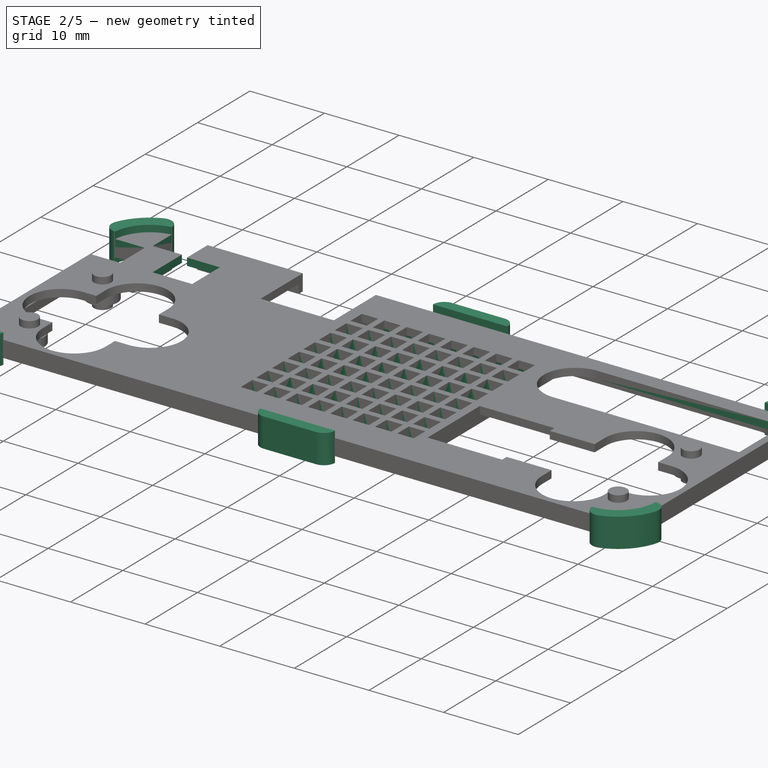
[diagram: stage 2 of 5 — iso view after this stage's code; geometry added in this stage tinted green]
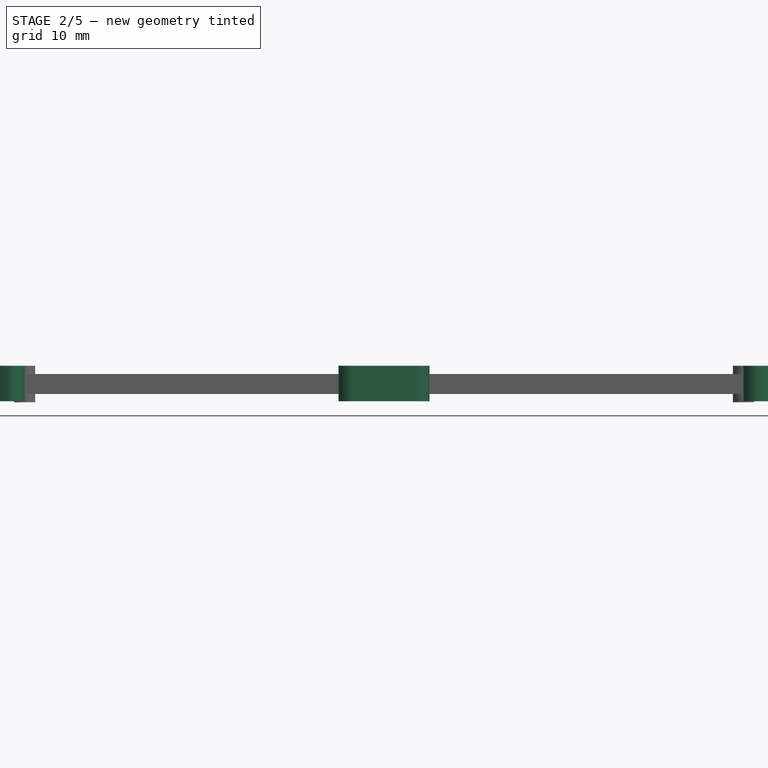
[diagram: stage 2 of 5 — front view after this stage's code; geometry added in this stage tinted green]
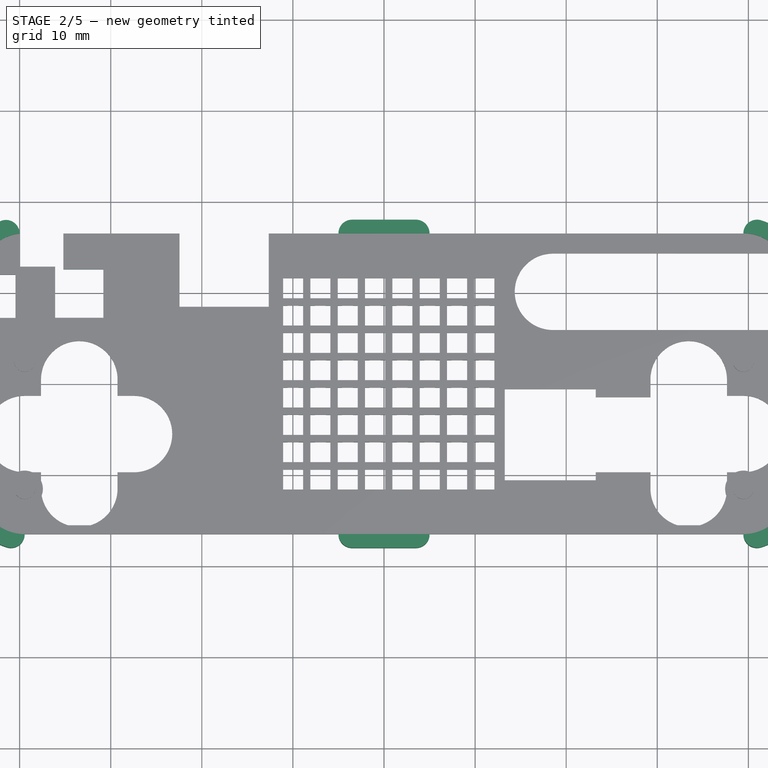
[diagram: stage 2 of 5 — top view after this stage's code; geometry added in this stage tinted green]
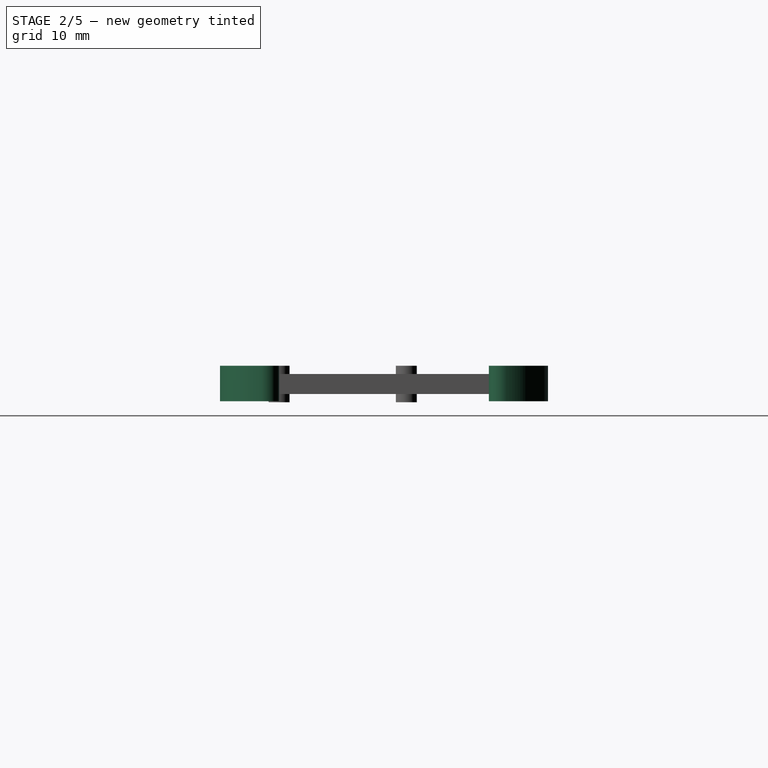
[diagram: stage 2 of 5 — right view after this stage's code; geometry added in this stage tinted green]
FEATURE [Sketcher::SketchObject] Sketch005
  ArcFitTolerance = 1e-06
  AttachmentSupport = -> [Pad003]
  ExternalGeometry = -> [Pad003]
  FullyConstrained = true
  MakeInternals = false
  MapMode = 5
  Placement = pos=(0,0,2.2) rot=(0,0,1;0rad)
  sketch-geometry (25):
    g0: LineSegment [constr] StartX=-30.7 StartY=17.01 StartZ=0 EndX=-30.7 EndY=9.50278 EndZ=0
    g1: LineSegment [constr] StartX=-30.7 StartY=9.50278 StartZ=0 EndX=-26.7 EndY=9.50278 EndZ=0
    g2: LineSegment [constr] StartX=-26.7 StartY=9.50278 StartZ=0 EndX=-26.7 EndY=17.01 EndZ=0
    g3: LineSegment [constr] StartX=-29.2893 StartY=8.35468 StartZ=0 EndX=-29.2893 EndY=2.70524 EndZ=0
    g4: LineSegment [constr] StartX=-29.2893 StartY=2.70524 StartZ=0 EndX=-23.6663 EndY=2.70524 EndZ=0
    g5: LineSegment [constr] StartX=-23.6663 StartY=2.70524 StartZ=0 EndX=-23.6663 EndY=8.35468 EndZ=0
    g6: LineSegment [constr] StartX=-23.6663 StartY=8.35468 StartZ=0 EndX=-29.2893 EndY=8.35468 EndZ=0
    g7: LineSegment [constr] StartX=-22.1254 StartY=2.76229 StartZ=0 EndX=-22.1254 EndY=-5.05961 EndZ=0
    g8: LineSegment [constr] StartX=-22.1254 StartY=-5.05961 StartZ=0 EndX=-14.3474 EndY=-5.05961 EndZ=0
    g9: LineSegment [constr] StartX=-14.3474 StartY=-5.05961 StartZ=0 EndX=-14.3474 EndY=2.76229 EndZ=0
    g10: LineSegment [constr] StartX=-14.3474 StartY=2.76229 StartZ=0 EndX=-22.1254 EndY=2.76229 EndZ=0
    g11: LineSegment StartX=-44.45 StartY=11.99 StartZ=0 EndX=-44.45 EndY=7.24 EndZ=0
    g12: LineSegment StartX=-44.45 StartY=7.24 StartZ=0 EndX=-40.45 EndY=7.24 EndZ=0
    g13: LineSegment StartX=-40.45 StartY=7.24 StartZ=0 EndX=-40.45 EndY=11.99 EndZ=0
    g14: LineSegment StartX=-40.45 StartY=11.99 StartZ=0 EndX=-44.45 EndY=11.99 EndZ=0
    g15: LineSegment [constr] StartX=-30.7 StartY=17.01 StartZ=0 EndX=-26.7 EndY=17.01 EndZ=0
    g16: LineSegment StartX=-35.2 StartY=17.01 StartZ=0 EndX=-40 EndY=17.01 EndZ=0
    g17: LineSegment StartX=-40 StartY=17.01 StartZ=0 EndX=-40 EndY=12.8739 EndZ=0
    g18: LineSegment StartX=-35.2 StartY=12.56 StartZ=0 EndX=-35.2 EndY=17.01 EndZ=0
    g19: LineSegment StartX=-36.1 StartY=12.8739 StartZ=0 EndX=-36.1 EndY=7.26 EndZ=0
    g20: LineSegment StartX=-36.1 StartY=7.26 StartZ=0 EndX=-30.8 EndY=7.26 EndZ=0
    g21: LineSegment StartX=-30.8 StartY=7.26 StartZ=0 EndX=-30.8 EndY=12.56 EndZ=0
    g22: GeomPoint [constr] X=-33.45 Y=9.91 Z=0
    g23: LineSegment StartX=-40 StartY=12.8739 StartZ=0 EndX=-36.1 EndY=12.8739 EndZ=0
    g24: LineSegment StartX=-30.8 StartY=12.56 StartZ=0 EndX=-35.2 EndY=12.56 EndZ=0
  constraints (66):
    c: Coincident(g1,g2)
    c: Vertical(g0)
    c: Vertical(g2)
    c: Horizontal(g1)
    c: Coincident(g3,g4)
    c: Coincident(g4,g5)
    c: Coincident(g5,g6)
    c: Coincident(g6,g3)
    c: Vertical(g3)
    c: Vertical(g5)
    c: Horizontal(g4)
    c: Horizontal(g6)
    c: Coincident(g7,g8)
    c: Coincident(g8,g9)
    c: Coincident(g9,g10)
    c: Coincident(g10,g7)
    c: Vertical(g7)
    c: Vertical(g9)
    c: Horizontal(g8)
    c: Horizontal(g10)
    c: Block(g6)
    c: Block(g4)
    c: Block(g10)
    c: Block(g8)
    c: Coincident(g11,g12)
    c: Coincident(g12,g13)
    c: Coincident(g13,g14)
    c: Coincident(g14,g11)
    c: Vertical(g11)
    c: Vertical(g13)
    c: Horizontal(g12)
    c: Horizontal(g14)
    c: Coincident(g11,g-5)
    c: Coincident(g12,g-7)
    c: PointOnObject(g-4,g2)
    c: DistanceY(g-4,g2) = 0.5
    c: DistanceY(g1,g-3) = 7
    c: Coincident(g0,g1)
    c: Coincident(g15,g0)
    c: Coincident(g15,g2)
    c: Horizontal(g15)
    c: PointOnObject(g-3,g0)
    c: Coincident(g16,g17)
    c: Coincident(g17,g23)
    c: Coincident(g18,g16)
    c: Horizontal(g16)
    c: Vertical(g17)
    c: Vertical(g18)
    c: Coincident(g17,g-9)
    c: PointOnObject(g-8,g18)
    c: Horizontal(g16,g0)
    c: Coincident(g19,g20)
    c: Coincident(g20,g21)
    c: Coincident(g21,g24)
    c: Vertical(g19)
    c: Vertical(g21)
    c: Horizontal(g20)
    c: DistanceX(g19,g24) = 5.3
    c: Vertical(g22,g-10)
    c: DistanceY(g-10,g22) = 9.42
    c: Horizontal(g23)
    c: Horizontal(g24)
    c: Equal(g21,g20)
    c: Coincident(g18,g24)
    c: Symmetric(g19,g21,g22)
    c: Coincident(g19,g23)
FEATURE [PartDesign::Pocket] Pocket001  label="Left side components pockets"
  BaseFeature = -> Pad003
  Direction = (0,0,-1)
  Length = 5
  Length2 = 5
  Placement = pos=(0,0,2.2) rot=(1,0,0;3.14159rad)
  Profile = -> Sketch005
  ReferenceAxis = -> Sketch005 [N_Axis]
  Refine = true
  Suppressed = false
  Type = 1
FEATURE [PartDesign::Body] Body005  label="SelectStartCluster"
  AllowCompound = false
  Group = -> [Binder007,Binder006,Binder005,DatumPlane004,Sketch010,Pad005,DatumPoint002,DatumLine002,Sketch011,Pocket008,DatumPoint003,LinearPattern002,Binder008,DatumPoint004,DatumLine003,DatumPlane005,Sketch012,Revolution001,LinearPattern003,DatumPlane006,Sketch013,Pocket009]
  Origin = -> Origin021
  Tip = -> Pocket009
FEATURE [Sketcher::SketchObject] Sketch014
  ArcFitTolerance = 1e-06
  AttachmentSupport = -> [Pocket001]
  ExternalGeometry = -> [Pocket001]
  FullyConstrained = true
  MakeInternals = false
  MapMode = 5
  Placement = pos=(0,0,1.2) rot=(1,0,0;3.14159rad)
  sketch-geometry (12):
    g0: LineSegment StartX=-8.88 StartY=-8.6 StartZ=0 EndX=-8.88 EndY=-5.5 EndZ=0
    g1: LineSegment StartX=-8.88 StartY=-5.5 StartZ=0 EndX=-8.08 EndY=-5.5 EndZ=0
    g2: LineSegment StartX=-8.08 StartY=-5.5 StartZ=0 EndX=-8.08 EndY=-8.6 EndZ=0
    g3: LineSegment StartX=-8.08 StartY=-8.6 StartZ=0 EndX=-4.98 EndY=-8.6 EndZ=0
    g4: LineSegment StartX=-4.98 StartY=-8.6 StartZ=0 EndX=-4.98 EndY=-9.4 EndZ=0
    g5: LineSegment StartX=-4.98 StartY=-9.4 StartZ=0 EndX=-8.08 EndY=-9.4 EndZ=0
    g6: LineSegment StartX=-8.08 StartY=-9.4 StartZ=0 EndX=-8.08 EndY=-12.5 EndZ=0
    g7: LineSegment StartX=-8.08 StartY=-12.5 StartZ=0 EndX=-8.88 EndY=-12.5 EndZ=0
    g8: LineSegment StartX=-8.88 StartY=-12.5 StartZ=0 EndX=-8.88 EndY=-9.4 EndZ=0
    g9: LineSegment StartX=-8.88 StartY=-9.4 StartZ=0 EndX=-11.98 EndY=-9.4 EndZ=0
    g10: LineSegment StartX=-11.98 StartY=-9.4 StartZ=0 EndX=-11.98 EndY=-8.6 EndZ=0
    g11: LineSegment StartX=-11.98 StartY=-8.6 StartZ=0 EndX=-8.88 EndY=-8.6 EndZ=0
  constraints (34):
    c: Coincident(g0,g-3)
    c: Vertical(g0)
    c: Coincident(g0,g1)
    c: Horizontal(g1)
    c: Coincident(g1,g2)
    c: Vertical(g2)
    c: Coincident(g2,g3)
    c: Horizontal(g3)
    c: Coincident(g3,g4)
    c: Vertical(g4)
    c: Coincident(g4,g5)
    c: Coincident(g5,g6)
    c: Vertical(g6)
    c: Coincident(g6,g7)
    c: Horizontal(g7)
    c: Coincident(g7,g8)
    c: Vertical(g8)
    c: Coincident(g8,g9)
    c: Horizontal(g9)
    c: Coincident(g9,g10)
    c: Vertical(g10)
    c: Coincident(g10,g11)
    c: Coincident(g11,g0)
    c: Horizontal(g5)
    c: Vertical(g0,g8)
    c: Horizontal(g8,g5)
    c: Horizontal(g0,g2)
    c: Vertical(g2,g5)
    c: Equal(g11,g0)
    c: Equal(g11,g3)
    c: Equal(g11,g8)
    c: PointOnObject(g7,g-4)
    c: Coincident(g5,g-5)
    c: Horizontal(g11)
FEATURE [PartDesign::Pad] Pad006  label="Matrix pillar"
  BaseFeature = -> Pocket001
  Direction = (0,0,-1)
  Length = 10
  Length2 = 10
  Placement = pos=(0,0,2.2) rot=(1,0,0;3.14159rad)
  Profile = -> Sketch014
  ReferenceAxis = -> Sketch014 [N_Axis]
  Suppressed = false
  Type = 3
  UpToFace = -> Pocket001 [Face340]
FEATURE [PartDesign::LinearPattern] LinearPattern004
  Direction = -> Sketch014 [H_Axis]
  Length = 18
  Mode = 1
  Occurrences = 7
  Offset = 3
  Placement = pos=(0,0,2.2) rot=(1,0,0;3.14159rad)
  Suppressed = false
  TransformMode = 0
FEATURE [PartDesign::LinearPattern] LinearPattern005
  Direction = -> Sketch014 [V_Axis]
  Length = 18
  Mode = 1
  Occurrences = 7
  Offset = 3
  Placement = pos=(0,0,2.2) rot=(1,0,0;3.14159rad)
  Suppressed = false
  TransformMode = 0
FEATURE [PartDesign::MultiTransform] MultiTransform001  label="Matrix pillars transform"
  BaseFeature = -> Pad006
  Originals = -> [Pad006]
  Placement = pos=(0,0,2.2) rot=(1,0,0;3.14159rad)
  Refine = true
  Suppressed = false
  TransformMode = 0
  Transformations = -> [LinearPattern004,LinearPattern005]
FEATURE [PartDesign::CoordinateSystem] Local_CS_e6d008
  AttacherType = Attacher::AttachEngine3D
  MapMode = 2
FEATURE [Part::Feature] Pcb_e6d008
  Placement = pos=(-194.45,116.51,0) rot=(0,0,1;0rad)
  shape: bbox 88.9 x 33.02 x 0.8 mm, 64 faces (baked)
FEATURE [Sketcher::SketchObject] PCB_Sketch_e6d008
  ArcFitTolerance = 1e-06
  FullyConstrained = false
  MakeInternals = false
  sketch-geometry (8):
    g0: LineSegment StartX=-44.45 StartY=-11.51 StartZ=0 EndX=-44.45 EndY=11.51 EndZ=0
    g1: LineSegment StartX=44.45 StartY=11.51 StartZ=0 EndX=44.45 EndY=-11.51 EndZ=0
    g2: LineSegment StartX=-39.45 StartY=16.51 StartZ=0 EndX=39.45 EndY=16.51 EndZ=0
    g3: LineSegment StartX=39.45 StartY=-16.51 StartZ=0 EndX=-39.45 EndY=-16.51 EndZ=0
    g4: ArcOfCircle CenterX=39.45 CenterY=11.51 CenterZ=0 NormalX=0 NormalY=0 NormalZ=-1 AngleXU=1.5708 Radius=5 StartAngle=0 EndAngle=1.5708
    g5: ArcOfCircle CenterX=-39.45 CenterY=11.51 CenterZ=0 NormalX=0 NormalY=0 NormalZ=-1 AngleXU=-6.42331e-08 Radius=5 StartAngle=0 EndAngle=1.5708
    g6: ArcOfCircle CenterX=-39.45 CenterY=-11.51 CenterZ=0 NormalX=0 NormalY=0 NormalZ=-1 AngleXU=-1.5708 Radius=5 StartAngle=0 EndAngle=1.5708
    g7: ArcOfCircle CenterX=39.45 CenterY=-11.51 CenterZ=0 NormalX=0 NormalY=0 NormalZ=-1 AngleXU=3.14159 Radius=5 StartAngle=0 EndAngle=1.5708
FEATURE [App::Part] Board_Geoms_e6d008  label="Board_Geoms_e6d010"
  Group = -> [Pcb_e6d008,PCB_Sketch_e6d008]
  Origin = -> Origin026
FEATURE [Part::Feature] Shape008  label="C13_C_0402_1005Metric_50b0befdca8e001"
  Placement = pos=(2.02,6,0) rot=(0,0,1;0rad)
  shape: bbox 1 x 0.5 x 0.5 mm, 28 faces (baked)
FEATURE [Part::Feature] Part__Feature036  label="LED-SMD_4P-L1.4-W1.4-TL007"
  shape: bbox 1.4 x 1.4 x 0.1 mm, 14 faces (baked)
FEATURE [Part::Feature] Part__Feature037  label="LED-SMD_4P-L1.4-W1.4-TL008"
  shape: bbox 0.5 x 0.5 x 0.02 mm, 11 faces (baked)
FEATURE [Part::Feature] Part__Feature038  label="LED-SMD_4P-L1.4-W1.4-TL009"
  shape: bbox 0.5 x 0.5 x 0.02 mm, 11 faces (baked)
FEATURE [Part::Feature] Part__Feature039  label="LED-SMD_4P-L1.4-W1.4-TL010"
  shape: bbox 0.5 x 0.5 x 0.02 mm, 11 faces (baked)
FEATURE [Part::Feature] Part__Feature040  label="LED-SMD_4P-L1.4-W1.4-TL011"
  shape: bbox 0.5 x 0.5 x 0.02 mm, 11 faces (baked)
FEATURE [Part::Feature] Part__Feature041  label="LED-SMD_4P-L1.4-W1.4-TL012"
  shape: bbox 1.4 x 1.4 x 0.28 mm, 6 faces (baked)
FEATURE [Part::Feature] Part__Feature042  label="LED-SMD_4P-L1.4-W1.4-TL013"
  shape: bbox 1.4 x 1.4 x 0.01 mm, 76 faces (baked)
FEATURE [App::Part] LED_SMD_4P_L1_4_W1_4_TL001  label="D13_LED-SMD_4P-L1.4-W1.4-TL007_e765e95fd25d001"
  Group = -> [Part__Feature036,Part__Feature037,Part__Feature038,Part__Feature039,Part__Feature040,Part__Feature041,Part__Feature042]
  Origin = -> Origin029
  Placement = pos=(2.02,7.5,0) rot=(0,0,1;1.5708rad)
FEATURE [App::Link] D13_LED_SMD_4P_L1_4_W1_4_TL007_e765e95fd25d_ln_063  label="D48_LED-SMD_4P-L1.4-W1.4-TL007_c05e2c5abbd006"
  LinkPlacement = pos=(11.02,-4.5,0) rot=(0,0,1;1.5708rad)
  LinkedObject = -> LED_SMD_4P_L1_4_W1_4_TL001
  Placement = pos=(11.02,-4.5,0) rot=(0,0,1;1.5708rad)
FEATURE [App::Link] C13_C_0402_1005Metric_50b0befdca8e_ln_079  label="C60_C_0402_1005Metric_2370c530492c001"
  LinkPlacement = pos=(-0.98,-6,0) rot=(0,0,1;0rad)
  LinkedObject = -> Shape008
  Placement = pos=(-0.98,-6,0) rot=(0,0,1;0rad)
FEATURE [App::Link] D13_LED_SMD_4P_L1_4_W1_4_TL007_e765e95fd25d_ln_064  label="D36_LED-SMD_4P-L1.4-W1.4-TL007_5cdba7c2c4c006"
  LinkPlacement = pos=(-0.98,-1.5,0) rot=(0,0,1;1.5708rad)
  LinkedObject = -> LED_SMD_4P_L1_4_W1_4_TL001
  Placement = pos=(-0.98,-1.5,0) rot=(0,0,1;1.5708rad)
FEATURE [App::Link] C13_C_0402_1005Metric_50b0befdca8e_ln_080  label="C54_C_0402_1005Metric_1c533becab6f001"
  LinkPlacement = pos=(5.02,-3,0) rot=(0,0,1;0rad)
  LinkedObject = -> Shape008
  Placement = pos=(5.02,-3,0) rot=(0,0,1;0rad)
FEATURE [App::Link] D13_LED_SMD_4P_L1_4_W1_4_TL007_e765e95fd25d_ln_065  label="D61_LED-SMD_4P-L1.4-W1.4-TL007_4615cf78e427"
  LinkPlacement = pos=(2.02,-10.5,0) rot=(0,0,1;1.5708rad)
  LinkedObject = -> LED_SMD_4P_L1_4_W1_4_TL001
  Placement = pos=(2.02,-10.5,0) rot=(0,0,1;1.5708rad)
FEATURE [App::Link] C13_C_0402_1005Metric_50b0befdca8e_ln_081  label="C35_C_0402_1005Metric_8fa559b37bee001"
  LinkPlacement = pos=(-16.85,-9.19,0) rot=(0,0,1;1.5708rad)
  LinkedObject = -> Shape008
  Placement = pos=(-16.85,-9.19,0) rot=(0,0,1;1.5708rad)
FEATURE [App::Link] D13_LED_SMD_4P_L1_4_W1_4_TL007_e765e95fd25d_ln_066  label="D14_LED-SMD_4P-L1.4-W1.4-TL007_eb801b891332"
  LinkPlacement = pos=(5.02,7.5,0) rot=(0,0,1;1.5708rad)
  LinkedObject = -> LED_SMD_4P_L1_4_W1_4_TL001
  Placement = pos=(5.02,7.5,0) rot=(0,0,1;1.5708rad)
FEATURE [App::Link] C13_C_0402_1005Metric_50b0befdca8e_ln_082  label="C61_C_0402_1005Metric_cf5816e03fbc001"
  LinkPlacement = pos=(2.02,-6,0) rot=(0,0,1;0rad)
  LinkedObject = -> Shape008
  Placement = pos=(2.02,-6,0) rot=(0,0,1;0rad)
FEATURE [App::Link] C13_C_0402_1005Metric_50b0befdca8e_ln_083  label="C15_C_0402_1005Metric_e2e487685c081"
  LinkPlacement = pos=(8.02,6,0) rot=(0,0,1;0rad)
  LinkedObject = -> Shape008
  Placement = pos=(8.02,6,0) rot=(0,0,1;0rad)
FEATURE [App::Link] C13_C_0402_1005Metric_50b0befdca8e_ln_084  label="C45_C_0402_1005Metric_4cd5275bcfa010"
  LinkPlacement = pos=(2.02,0,0) rot=(0,0,1;0rad)
  LinkedObject = -> Shape008
  Placement = pos=(2.02,0,0) rot=(0,0,1;0rad)
FEATURE [App::Link] C13_C_0402_1005Metric_50b0befdca8e_ln_085  label="C72_C_0402_1005Metric_6d59b78d1e7b001"
  LinkPlacement = pos=(11.02,-9,0) rot=(0,0,1;0rad)
  LinkedObject = -> Shape008
  Placement = pos=(11.02,-9,0) rot=(0,0,1;0rad)
FEATURE [App::Link] D13_LED_SMD_4P_L1_4_W1_4_TL007_e765e95fd25d_ln_067  label="D63_LED-SMD_4P-L1.4-W1.4-TL007_90f3527c0579"
  LinkPlacement = pos=(8.02,-10.5,0) rot=(0,0,1;1.5708rad)
  LinkedObject = -> LED_SMD_4P_L1_4_W1_4_TL001
  Placement = pos=(8.02,-10.5,0) rot=(0,0,1;1.5708rad)
FEATURE [App::Link] C13_C_0402_1005Metric_50b0befdca8e_ln_086  label="C83_C_0402_1005Metric_5f0e74c518fe001"
  LinkPlacement = pos=(-34.05,12.91,0) rot=(0,0,1;3.14159rad)
  LinkedObject = -> Shape008
  Placement = pos=(-34.05,12.91,0) rot=(0,0,1;3.14159rad)
FEATURE [App::Link] C13_C_0402_1005Metric_50b0befdca8e_ln_087  label="C67_C_0402_1005Metric_19db1237b66d001"
  LinkPlacement = pos=(-3.98,-9,0) rot=(0,0,1;0rad)
  LinkedObject = -> Shape008
  Placement = pos=(-3.98,-9,0) rot=(0,0,1;0rad)
FEATURE [App::Link] D13_LED_SMD_4P_L1_4_W1_4_TL007_e765e95fd25d_ln_068  label="D25_LED-SMD_4P-L1.4-W1.4-TL007_3c7e8d3d0266"
  LinkPlacement = pos=(-9.98,1.5,0) rot=(0,0,1;1.5708rad)
  LinkedObject = -> LED_SMD_4P_L1_4_W1_4_TL001
  Placement = pos=(-9.98,1.5,0) rot=(0,0,1;1.5708rad)
FEATURE [App::Link] C13_C_0402_1005Metric_50b0befdca8e_ln_088  label="C66_C_0402_1005Metric_48a81a4cd944"
  LinkPlacement = pos=(-6.98,-9,0) rot=(0,0,1;0rad)
  LinkedObject = -> Shape008
  Placement = pos=(-6.98,-9,0) rot=(0,0,1;0rad)
FEATURE [App::Link] D13_LED_SMD_4P_L1_4_W1_4_TL007_e765e95fd25d_ln_069  label="D6_LED-SMD_4P-L1.4-W1.4-TL007_f7a4556ed107"
  LinkPlacement = pos=(5.02,10.5,0) rot=(0,0,1;1.5708rad)
  LinkedObject = -> LED_SMD_4P_L1_4_W1_4_TL001
  Placement = pos=(5.02,10.5,0) rot=(0,0,1;1.5708rad)
FEATURE [Part::Feature] Part__Feature043  label="SW-SMD_4P-L5.1-W5.1-P3.70-LS6.5-TL_H1.008"
  shape: bbox 6.5 x 5 x 0.75 mm, 94 faces (baked)
FEATURE [Part::Feature] Part__Feature044  label="SW-SMD_4P-L5.1-W5.1-P3.70-LS6.5-TL_H1.009"
  shape: bbox 2.165 x 2.165 x 0.5 mm, 6 faces (baked)
FEATURE [Part::Feature] Part__Feature045  label="SW-SMD_4P-L5.1-W5.1-P3.70-LS6.5-TL_H1.010"
  shape: bbox 5.2 x 5.201 x 1.2 mm, 314 faces (baked)
FEATURE [App::Part] SW_SMD_4P_L5_1_W5_1_P3_70_LS6_5_TL_H1_006  label="SW2_SW-SMD_4P-L5.1-W5.1-P3.70-LS6.5-TL_H1.008_4c1cc90a72a001"
  Group = -> [Part__Feature043,Part__Feature044,Part__Feature045]
  Origin = -> Origin030
  Placement = pos=(-39.45,-5.51,0) rot=(0,0,1;0rad)
FEATURE [App::Link] D13_LED_SMD_4P_L1_4_W1_4_TL007_e765e95fd25d_ln_070  label="D24_LED-SMD_4P-L1.4-W1.4-TL007_21512f89c636"
  LinkPlacement = pos=(11.02,4.5,0) rot=(0,0,1;1.5708rad)
  LinkedObject = -> LED_SMD_4P_L1_4_W1_4_TL001
  Placement = pos=(11.02,4.5,0) rot=(0,0,1;1.5708rad)
FEATURE [App::Link] C13_C_0402_1005Metric_50b0befdca8e_ln_089  label="C80_C_0402_1005Metric_7ffb763a014d001"
  LinkPlacement = pos=(11.02,-12,0) rot=(0,0,1;0rad)
  LinkedObject = -> Shape008
  Placement = pos=(11.02,-12,0) rot=(0,0,1;0rad)
FEATURE [App::Link] C13_C_0402_1005Metric_50b0befdca8e_ln_090  label="C49_C_0402_1005Metric_d94834e07466"
  LinkPlacement = pos=(-9.98,-3,0) rot=(0,0,1;0rad)
  LinkedObject = -> Shape008
  Placement = pos=(-9.98,-3,0) rot=(0,0,1;0rad)
FEATURE [Part::Feature] Shape009  label="BUZ1_BUZ-SMD_L9.0-W9.0_PKMCS0909E4000-R1_07a8d7dddef008"
  Placement = pos=(18.25,-5.59,0) rot=(0,0,1;0rad)
  shape: bbox 9.002 x 9 x 3.011 mm, 257 faces (baked)
FEATURE [App::Link] C13_C_0402_1005Metric_50b0befdca8e_ln_091  label="C79_C_0402_1005Metric_c1d9116edd095"
  LinkPlacement = pos=(8.02,-12,0) rot=(0,0,1;0rad)
  LinkedObject = -> Shape008
  Placement = pos=(8.02,-12,0) rot=(0,0,1;0rad)
FEATURE [App::Link] C13_C_0402_1005Metric_50b0befdca8e_ln_092  label="C44_C_0402_1005Metric_6d5ef9154afe001"
  LinkPlacement = pos=(-0.98,0,0) rot=(0,0,1;0rad)
  LinkedObject = -> Shape008
  Placement = pos=(-0.98,0,0) rot=(0,0,1;0rad)
FEATURE [App::Link] C13_C_0402_1005Metric_50b0befdca8e_ln_093  label="C41_C_0402_1005Metric_a780893dde088"
  LinkPlacement = pos=(-9.98,0,0) rot=(0,0,1;0rad)
  LinkedObject = -> Shape008
  Placement = pos=(-9.98,0,0) rot=(0,0,1;0rad)
FEATURE [App::Link] D13_LED_SMD_4P_L1_4_W1_4_TL007_e765e95fd25d_ln_071  label="D28_LED-SMD_4P-L1.4-W1.4-TL007_77a7bd813003"
  LinkPlacement = pos=(-0.98,1.5,0) rot=(0,0,1;1.5708rad)
  LinkedObject = -> LED_SMD_4P_L1_4_W1_4_TL001
  Placement = pos=(-0.98,1.5,0) rot=(0,0,1;1.5708rad)
FEATURE [App::Link] D13_LED_SMD_4P_L1_4_W1_4_TL007_e765e95fd25d_ln_072  label="D17_LED-SMD_4P-L1.4-W1.4-TL007_230e99c7dbe010"
  LinkPlacement = pos=(-9.98,4.5,0) rot=(0,0,1;1.5708rad)
  LinkedObject = -> LED_SMD_4P_L1_4_W1_4_TL001
  Placement = pos=(-9.98,4.5,0) rot=(0,0,1;1.5708rad)
FEATURE [App::Link] D13_LED_SMD_4P_L1_4_W1_4_TL007_e765e95fd25d_ln_073  label="D67_LED-SMD_4P-L1.4-W1.4-TL007_c54d3239cbdf"
  LinkPlacement = pos=(39.03,11.56,0) rot=(0,0,1;1.5708rad)
  LinkedObject = -> LED_SMD_4P_L1_4_W1_4_TL001
  Placement = pos=(39.03,11.56,0) rot=(0,0,1;1.5708rad)
FEATURE [App::Link] D13_LED_SMD_4P_L1_4_W1_4_TL007_e765e95fd25d_ln_074  label="D64_LED-SMD_4P-L1.4-W1.4-TL007_f0c546666332"
  LinkPlacement = pos=(11.02,-10.5,0) rot=(0,0,1;1.5708rad)
  LinkedObject = -> LED_SMD_4P_L1_4_W1_4_TL001
  Placement = pos=(11.02,-10.5,0) rot=(0,0,1;1.5708rad)
FEATURE [App::Link] D13_LED_SMD_4P_L1_4_W1_4_TL007_e765e95fd25d_ln_075  label="D51_LED-SMD_4P-L1.4-W1.4-TL007_616c522eb0d010"
  LinkPlacement = pos=(-3.98,-7.5,0) rot=(0,0,1;1.5708rad)
  LinkedObject = -> LED_SMD_4P_L1_4_W1_4_TL001
  Placement = pos=(-3.98,-7.5,0) rot=(0,0,1;1.5708rad)
FEATURE [App::Link] D13_LED_SMD_4P_L1_4_W1_4_TL007_e765e95fd25d_ln_076  label="D44_LED-SMD_4P-L1.4-W1.4-TL007_858e41626293"
  LinkPlacement = pos=(-0.98,-4.5,0) rot=(0,0,1;1.5708rad)
  LinkedObject = -> LED_SMD_4P_L1_4_W1_4_TL001
  Placement = pos=(-0.98,-4.5,0) rot=(0,0,1;1.5708rad)
FEATURE [App::Link] C13_C_0402_1005Metric_50b0befdca8e_ln_094  label="C4_C_0402_1005Metric_01c8a2e2667c001"
  LinkPlacement = pos=(-0.98,9,0) rot=(0,0,1;0rad)
  LinkedObject = -> Shape008
  Placement = pos=(-0.98,9,0) rot=(0,0,1;0rad)
FEATURE [App::Link] C13_C_0402_1005Metric_50b0befdca8e_ln_095  label="C30_C_0402_1005Metric_184b979e15a007"
  LinkPlacement = pos=(-17.45,-6.79,0) rot=(0,0,-1;1.5708rad)
  LinkedObject = -> Shape008
  Placement = pos=(-17.45,-6.79,0) rot=(0,0,-1;1.5708rad)
FEATURE [App::Link] D13_LED_SMD_4P_L1_4_W1_4_TL007_e765e95fd25d_ln_077  label="D12_LED-SMD_4P-L1.4-W1.4-TL007_9f87d0eeb1eb001"
  LinkPlacement = pos=(-0.98,7.5,0) rot=(0,0,1;1.5708rad)
  LinkedObject = -> LED_SMD_4P_L1_4_W1_4_TL001
  Placement = pos=(-0.98,7.5,0) rot=(0,0,1;1.5708rad)
FEATURE [App::Link] D13_LED_SMD_4P_L1_4_W1_4_TL007_e765e95fd25d_ln_078  label="D42_LED-SMD_4P-L1.4-W1.4-TL007_6a72c8ce0564"
  LinkPlacement = pos=(-6.98,-4.5,0) rot=(0,0,1;1.5708rad)
  LinkedObject = -> LED_SMD_4P_L1_4_W1_4_TL001
  Placement = pos=(-6.98,-4.5,0) rot=(0,0,1;1.5708rad)
FEATURE [App::Link] D13_LED_SMD_4P_L1_4_W1_4_TL007_e765e95fd25d_ln_079  label="D47_LED-SMD_4P-L1.4-W1.4-TL007_71d10e62bc030"
  LinkPlacement = pos=(8.02,-4.5,0) rot=(0,0,1;1.5708rad)
  LinkedObject = -> LED_SMD_4P_L1_4_W1_4_TL001
  Placement = pos=(8.02,-4.5,0) rot=(0,0,1;1.5708rad)
FEATURE [Part::Feature] Part__Feature046  label="SW-SMD_TS24CA002"
  shape: bbox 4.55 x 2 x 1.8 mm, 57 faces (baked)
FEATURE [Part::Feature] Part__Feature047  label="SW-SMD_TS24CA003"
  shape: bbox 4.291 x 2.271 x 1.918 mm, 318 faces (baked)
FEATURE [App::Part] SW_SMD_TS24CA001  label="SW11_SW-SMD_TS24CA002_ee30a3f0cec007"
  Group = -> [Part__Feature046,Part__Feature047]
  Origin = -> Origin031
  Placement = pos=(-37.65,14.79,1.4) rot=(0,0,1;0rad)
FEATURE [App::Link] D13_LED_SMD_4P_L1_4_W1_4_TL007_e765e95fd25d_ln_080  label="D58_LED-SMD_4P-L1.4-W1.4-TL007_fb7d74a6fcfa001"
  LinkPlacement = pos=(-6.98,-10.5,0) rot=(0,0,1;1.5708rad)
  LinkedObject = -> LED_SMD_4P_L1_4_W1_4_TL001
  Placement = pos=(-6.98,-10.5,0) rot=(0,0,1;1.5708rad)
FEATURE [App::Link] C13_C_0402_1005Metric_50b0befdca8e_ln_096  label="C2_C_0402_1005Metric_953fc5f48cb002"
  LinkPlacement = pos=(-7,9,0) rot=(0,0,1;0rad)
  LinkedObject = -> Shape008
  Placement = pos=(-7,9,0) rot=(0,0,1;0rad)
FEATURE [App::Link] C13_C_0402_1005Metric_50b0befdca8e_ln_097  label="C1_C_0402_1005Metric_7025652b4434"
  LinkPlacement = pos=(-9.98,9,0) rot=(0,0,1;0rad)
  LinkedObject = -> Shape008
  Placement = pos=(-9.98,9,0) rot=(0,0,1;0rad)
FEATURE [App::Link] C13_C_0402_1005Metric_50b0befdca8e_ln_098  label="C16_C_0402_1005Metric_1b68fecceaa008"
  LinkPlacement = pos=(11.02,6,0) rot=(0,0,1;0rad)
  LinkedObject = -> Shape008
  Placement = pos=(11.02,6,0) rot=(0,0,1;0rad)
FEATURE [App::Link] C13_C_0402_1005Metric_50b0befdca8e_ln_099  label="C53_C_0402_1005Metric_11b3bb1674a008"
  LinkPlacement = pos=(2.02,-3,0) rot=(0,0,1;0rad)
  LinkedObject = -> Shape008
  Placement = pos=(2.02,-3,0) rot=(0,0,1;0rad)
FEATURE [App::Link] D13_LED_SMD_4P_L1_4_W1_4_TL007_e765e95fd25d_ln_081  label="D19_LED-SMD_4P-L1.4-W1.4-TL007_1c8f9a66f711"
  LinkPlacement = pos=(-3.98,4.5,0) rot=(0,0,1;1.5708rad)
  LinkedObject = -> LED_SMD_4P_L1_4_W1_4_TL001
  Placement = pos=(-3.98,4.5,0) rot=(0,0,1;1.5708rad)
FEATURE [App::Link] C13_C_0402_1005Metric_50b0befdca8e_ln_100  label="C8_C_0402_1005Metric_edb9ee3f750f001"
  LinkPlacement = pos=(11.02,9,0) rot=(0,0,1;0rad)
  LinkedObject = -> Shape008
  Placement = pos=(11.02,9,0) rot=(0,0,1;0rad)
FEATURE [App::Link] C13_C_0402_1005Metric_50b0befdca8e_ln_101  label="C85_C_0402_1005Metric_d4d0474f5f80"
  LinkPlacement = pos=(33.03,7.06,0) rot=(0,0,1;0rad)
  LinkedObject = -> Shape008
  Placement = pos=(33.03,7.06,0) rot=(0,0,1;0rad)
FEATURE [App::Link] C13_C_0402_1005Metric_50b0befdca8e_ln_102  label="C55_C_0402_1005Metric_2a466eed5005"
  LinkPlacement = pos=(8.02,-3,0) rot=(0,0,1;0rad)
  LinkedObject = -> Shape008
  Placement = pos=(8.02,-3,0) rot=(0,0,1;0rad)
FEATURE [App::Link] D13_LED_SMD_4P_L1_4_W1_4_TL007_e765e95fd25d_ln_082  label="D72_LED-SMD_4P-L1.4-W1.4-TL007_c454eaecce72"
  LinkPlacement = pos=(42.03,8.56,0) rot=(0,0,1;1.5708rad)
  LinkedObject = -> LED_SMD_4P_L1_4_W1_4_TL001
  Placement = pos=(42.03,8.56,0) rot=(0,0,1;1.5708rad)
FEATURE [App::Link] C13_C_0402_1005Metric_50b0befdca8e_ln_103  label="C25_C_0402_1005Metric_318f51788bf005"
  LinkPlacement = pos=(-13.2,2.11,0) rot=(0,0,1;0rad)
  LinkedObject = -> Shape008
  Placement = pos=(-13.2,2.11,0) rot=(0,0,1;0rad)
FEATURE [App::Link] SW2_SW_SMD_4P_L5_1_W5_1_P3_70_LS6_5_TL_H1_008_4c1cc90a72a0_ln_009  label="SW4_SW-SMD_4P-L5.1-W5.1-P3.70-LS6.5-TL_H1.008_c7a026f78111"
  LinkPlacement = pos=(-33.45,-11.51,0) rot=(0,0,1;0rad)
  LinkedObject = -> SW_SMD_4P_L5_1_W5_1_P3_70_LS6_5_TL_H1_006
  Placement = pos=(-33.45,-11.51,0) rot=(0,0,1;0rad)
FEATURE [App::Link] C13_C_0402_1005Metric_50b0befdca8e_ln_104  label="C63_C_0402_1005Metric_1efd5a657626"
  LinkPlacement = pos=(8.02,-6,0) rot=(0,0,1;0rad)
  LinkedObject = -> Shape008
  Placement = pos=(8.02,-6,0) rot=(0,0,1;0rad)
FEATURE [App::Link] C13_C_0402_1005Metric_50b0befdca8e_ln_105  label="C20_C_0402_1005Metric_033079ff8c18"
  LinkPlacement = pos=(33.03,10.06,0) rot=(0,0,1;0rad)
  LinkedObject = -> Shape008
  Placement = pos=(33.03,10.06,0) rot=(0,0,1;0rad)
FEATURE [App::Link] C13_C_0402_1005Metric_50b0befdca8e_ln_106  label="C77_C_0402_1005Metric_744f02e445cd001"
  LinkPlacement = pos=(2.02,-12,0) rot=(0,0,1;0rad)
  LinkedObject = -> Shape008
  Placement = pos=(2.02,-12,0) rot=(0,0,1;0rad)
FEATURE [App::Link] D13_LED_SMD_4P_L1_4_W1_4_TL007_e765e95fd25d_ln_083  label="D49_LED-SMD_4P-L1.4-W1.4-TL007_b400178c533d001"
  LinkPlacement = pos=(-9.98,-7.5,0) rot=(0,0,1;1.5708rad)
  LinkedObject = -> LED_SMD_4P_L1_4_W1_4_TL001
  Placement = pos=(-9.98,-7.5,0) rot=(0,0,1;1.5708rad)
FEATURE [App::Link] C13_C_0402_1005Metric_50b0befdca8e_ln_107  label="C39_C_0402_1005Metric_ba660178f848"
  LinkPlacement = pos=(8.02,3,0) rot=(0,0,1;0rad)
  LinkedObject = -> Shape008
  Placement = pos=(8.02,3,0) rot=(0,0,1;0rad)
FEATURE [App::Link] D13_LED_SMD_4P_L1_4_W1_4_TL007_e765e95fd25d_ln_084  label="D56_LED-SMD_4P-L1.4-W1.4-TL007_7b4a22f89b0e001"
  LinkPlacement = pos=(11.02,-7.5,0) rot=(0,0,1;1.5708rad)
  LinkedObject = -> LED_SMD_4P_L1_4_W1_4_TL001
  Placement = pos=(11.02,-7.5,0) rot=(0,0,1;1.5708rad)
FEATURE [App::Link] SW2_SW_SMD_4P_L5_1_W5_1_P3_70_LS6_5_TL_H1_008_4c1cc90a72a0_ln_010  label="SW3_SW-SMD_4P-L5.1-W5.1-P3.70-LS6.5-TL_H1.008_a54e8632f1bb001"
  LinkPlacement = pos=(-27.45,-5.51,0) rot=(0,0,1;0rad)
  LinkedObject = -> SW_SMD_4P_L5_1_W5_1_P3_70_LS6_5_TL_H1_006
  Placement = pos=(-27.45,-5.51,0) rot=(0,0,1;0rad)
FEATURE [App::Link] D13_LED_SMD_4P_L1_4_W1_4_TL007_e765e95fd25d_ln_085  label="D9_LED-SMD_4P-L1.4-W1.4-TL007_b8d005ff5f1c001"
  LinkPlacement = pos=(-9.98,7.5,0) rot=(0,0,1;1.5708rad)
  LinkedObject = -> LED_SMD_4P_L1_4_W1_4_TL001
  Placement = pos=(-9.98,7.5,0) rot=(0,0,1;1.5708rad)
FEATURE [App::Link] C13_C_0402_1005Metric_50b0befdca8e_ln_108  label="C88_C_0402_1005Metric_28903133da72"
  LinkPlacement = pos=(42.03,7.06,0) rot=(0,0,1;0rad)
  LinkedObject = -> Shape008
  Placement = pos=(42.03,7.06,0) rot=(0,0,1;0rad)
FEATURE [App::Link] C13_C_0402_1005Metric_50b0befdca8e_ln_109  label="C6_C_0402_1005Metric_508362c3ee082"
  LinkPlacement = pos=(5.02,9,0) rot=(0,0,1;0rad)
  LinkedObject = -> Shape008
  Placement = pos=(5.02,9,0) rot=(0,0,1;0rad)
FEATURE [Part::Feature] Part__Feature048  label="SOIC-8_L5.3-W5.3-H1.9-LS7.9-P1.049"
  shape: bbox 5.301 x 5.301 x 1.9 mm, 164 faces (baked)
FEATURE [Part::Feature] Part__Feature049  label="SOIC-8_L5.3-W5.3-H1.9-LS7.9-P1.050"
  shape: bbox 0.4 x 1.303 x 1.272 mm, 52 faces (baked)
FEATURE [Part::Feature] Part__Feature050  label="SOIC-8_L5.3-W5.3-H1.9-LS7.9-P1.051"
  shape: bbox 0.4 x 1.303 x 1.272 mm, 52 faces (baked)
FEATURE [Part::Feature] Part__Feature051  label="SOIC-8_L5.3-W5.3-H1.9-LS7.9-P1.052"
  shape: bbox 0.4 x 1.303 x 1.272 mm, 52 faces (baked)
FEATURE [Part::Feature] Part__Feature052  label="SOIC-8_L5.3-W5.3-H1.9-LS7.9-P1.053"
  shape: bbox 0.4 x 1.303 x 1.272 mm, 52 faces (baked)
FEATURE [Part::Feature] Part__Feature053  label="SOIC-8_L5.3-W5.3-H1.9-LS7.9-P1.054"
  shape: bbox 0.4 x 1.303 x 1.272 mm, 52 faces (baked)
FEATURE [Part::Feature] Part__Feature054  label="SOIC-8_L5.3-W5.3-H1.9-LS7.9-P1.055"
  shape: bbox 0.4 x 1.303 x 1.272 mm, 52 faces (baked)
FEATURE [Part::Feature] Part__Feature055  label="SOIC-8_L5.3-W5.3-H1.9-LS7.9-P1.056"
  shape: bbox 0.4 x 1.303 x 1.272 mm, 52 faces (baked)
FEATURE [Part::Feature] Part__Feature056  label="SOIC-8_L5.3-W5.3-H1.9-LS7.9-P1.057"
  shape: bbox 0.4 x 1.303 x 1.272 mm, 52 faces (baked)
FEATURE [Part::Feature] Part__Feature057  label="SOIC-8_L5.3-W5.3-H1.9-LS7.9-P1.058"
  shape: bbox 0.05899 x 0.1119 x 0.001 mm, 8 faces (baked)
FEATURE [Part::Feature] Part__Feature058  label="SOIC-8_L5.3-W5.3-H1.9-LS7.9-P1.059"
  shape: bbox 0.08375 x 0.1156 x 0.001 mm, 16 faces (baked)
FEATURE [Part::Feature] Part__Feature059  label="SOIC-8_L5.3-W5.3-H1.9-LS7.9-P1.060"
  shape: bbox 0.06016 x 0.1119 x 0.001 mm, 14 faces (baked)
FEATURE [Part::Feature] Part__Feature060  label="SOIC-8_L5.3-W5.3-H1.9-LS7.9-P1.061"
  shape: bbox 0.09107 x 0.1119 x 0.001 mm, 16 faces (baked)
FEATURE [Part::Feature] Part__Feature061  label="SOIC-8_L5.3-W5.3-H1.9-LS7.9-P1.062"
  shape: bbox 0.1006 x 0.1119 x 0.001 mm, 16 faces (baked)
FEATURE [Part::Feature] Part__Feature062  label="SOIC-8_L5.3-W5.3-H1.9-LS7.9-P1.063"
  shape: bbox 0.06016 x 0.1119 x 0.001 mm, 14 faces (baked)
FEATURE [Part::Feature] Part__Feature063  label="SOIC-8_L5.3-W5.3-H1.9-LS7.9-P1.064"
  shape: bbox 0.06419 x 0.08361 x 0.001 mm, 24 faces (baked)
FEATURE [Part::Feature] Part__Feature064  label="SOIC-8_L5.3-W5.3-H1.9-LS7.9-P1.065"
  shape: bbox 0.05396 x 0.08361 x 0.001 mm, 23 faces (baked)
FEATURE [Part::Feature] Part__Feature065  label="SOIC-8_L5.3-W5.3-H1.9-LS7.9-P1.066"
  shape: bbox 0.07669 x 0.1175 x 0.001 mm, 17 faces (baked)
FEATURE [Part::Feature] Part__Feature066  label="SOIC-8_L5.3-W5.3-H1.9-LS7.9-P1.067"
  shape: bbox 0.06016 x 0.1119 x 0.001 mm, 14 faces (baked)
FEATURE [Part::Feature] Part__Feature067  label="SOIC-8_L5.3-W5.3-H1.9-LS7.9-P1.068"
  shape: bbox 0.09107 x 0.1119 x 0.001 mm, 16 faces (baked)
FEATURE [Part::Feature] Part__Feature068  label="SOIC-8_L5.3-W5.3-H1.9-LS7.9-P1.069"
  shape: bbox 0.1006 x 0.1119 x 0.001 mm, 16 faces (baked)
FEATURE [Part::Feature] Part__Feature069  label="SOIC-8_L5.3-W5.3-H1.9-LS7.9-P1.070"
  shape: bbox 0.5074 x 0.3722 x 0.001 mm, 37 faces (baked)
FEATURE [App::Part] SOIC_8_L5_3_W5_3_H1_9_LS7_9_P1_028  label="U2_SOIC-8_L5.3-W5.3-H1.9-LS7.9-P1.049_c77e192e0678"
  Group = -> [Part__Feature048,Part__Feature049,Part__Feature050,Part__Feature051,Part__Feature052,Part__Feature053,Part__Feature054,Part__Feature055,Part__Feature056,Part__Feature057,Part__Feature058,Part__Feature059,Part__Feature060,Part__Feature061,Part__Feature062,Part__Feature063,Part__Feature064,Part__Feature065,Part__Feature066,Part__Feature067,Part__Feature068,Part__Feature069]
  Origin = -> Origin032
  Placement = pos=(-26.45,5.51,0) rot=(0,0,-1;1.5708rad)
FEATURE [App::Link] D13_LED_SMD_4P_L1_4_W1_4_TL007_e765e95fd25d_ln_086  label="D38_LED-SMD_4P-L1.4-W1.4-TL007_a82ac218bbbf001"
  LinkPlacement = pos=(5.02,-1.5,0) rot=(0,0,1;1.5708rad)
  LinkedObject = -> LED_SMD_4P_L1_4_W1_4_TL001
  Placement = pos=(5.02,-1.5,0) rot=(0,0,1;1.5708rad)
FEATURE [App::Link] D13_LED_SMD_4P_L1_4_W1_4_TL007_e765e95fd25d_ln_087  label="D5_LED-SMD_4P-L1.4-W1.4-TL007_70b6fc2bc981"
  LinkPlacement = pos=(2.02,10.5,0) rot=(0,0,1;1.5708rad)
  LinkedObject = -> LED_SMD_4P_L1_4_W1_4_TL001
  Placement = pos=(2.02,10.5,0) rot=(0,0,1;1.5708rad)
FEATURE [Part::Feature] Shape010  label="U4_SOT-223_3fe092ff7213"
  Placement = pos=(-28.65,12.91,0) rot=(0,0,1;3.14159rad)
  shape: bbox 7 x 6.5 x 1.7 mm, 75 faces (baked)
FEATURE [App::Link] D13_LED_SMD_4P_L1_4_W1_4_TL007_e765e95fd25d_ln_088  label="D18_LED-SMD_4P-L1.4-W1.4-TL007_7985b83214ec001"
  LinkPlacement = pos=(-6.98,4.5,0) rot=(0,0,1;1.5708rad)
  LinkedObject = -> LED_SMD_4P_L1_4_W1_4_TL001
  Placement = pos=(-6.98,4.5,0) rot=(0,0,1;1.5708rad)
FEATURE [App::Link] C13_C_0402_1005Metric_50b0befdca8e_ln_110  label="C12_C_0402_1005Metric_1c597ddccefb001"
  LinkPlacement = pos=(-0.98,6,0) rot=(0,0,1;0rad)
  LinkedObject = -> Shape008
  Placement = pos=(-0.98,6,0) rot=(0,0,1;0rad)
FEATURE [App::Link] D13_LED_SMD_4P_L1_4_W1_4_TL007_e765e95fd25d_ln_089  label="D11_LED-SMD_4P-L1.4-W1.4-TL007_eadc79c3472c001"
  LinkPlacement = pos=(-3.98,7.5,0) rot=(0,0,1;1.5708rad)
  LinkedObject = -> LED_SMD_4P_L1_4_W1_4_TL001
  Placement = pos=(-3.98,7.5,0) rot=(0,0,1;1.5708rad)
FEATURE [App::Link] D13_LED_SMD_4P_L1_4_W1_4_TL007_e765e95fd25d_ln_090  label="D37_LED-SMD_4P-L1.4-W1.4-TL007_02761867d631"
  LinkPlacement = pos=(2.02,-1.5,0) rot=(0,0,1;1.5708rad)
  LinkedObject = -> LED_SMD_4P_L1_4_W1_4_TL001
  Placement = pos=(2.02,-1.5,0) rot=(0,0,1;1.5708rad)
FEATURE [App::Link] D13_LED_SMD_4P_L1_4_W1_4_TL007_e765e95fd25d_ln_091  label="D45_LED-SMD_4P-L1.4-W1.4-TL007_7a3e79de33a009"
  LinkPlacement = pos=(2.02,-4.5,0) rot=(0,0,1;1.5708rad)
  LinkedObject = -> LED_SMD_4P_L1_4_W1_4_TL001
  Placement = pos=(2.02,-4.5,0) rot=(0,0,1;1.5708rad)
FEATURE [App::Link] C13_C_0402_1005Metric_50b0befdca8e_ln_111  label="C19_C_0402_1005Metric_b6de50ad9224"
  LinkPlacement = pos=(-3.98,3,0) rot=(0,0,1;0rad)
  LinkedObject = -> Shape008
  Placement = pos=(-3.98,3,0) rot=(0,0,1;0rad)
FEATURE [App::Link] SW2_SW_SMD_4P_L5_1_W5_1_P3_70_LS6_5_TL_H1_008_4c1cc90a72a0_ln_011  label="SW8_SW-SMD_4P-L5.1-W5.1-P3.70-LS6.5-TL_H1.008_8cfe7189ef5c001"
  LinkPlacement = pos=(39.45,-5.51,0) rot=(0,0,1;0rad)
  LinkedObject = -> SW_SMD_4P_L5_1_W5_1_P3_70_LS6_5_TL_H1_006
  Placement = pos=(39.45,-5.51,0) rot=(0,0,1;0rad)
FEATURE [App::Link] C13_C_0402_1005Metric_50b0befdca8e_ln_112  label="C82_C_0402_1005Metric_41e68891d82f001"
  LinkPlacement = pos=(-23.25,12.51,0) rot=(0,0,1;0rad)
  LinkedObject = -> Shape008
  Placement = pos=(-23.25,12.51,0) rot=(0,0,1;0rad)
FEATURE [Part::Feature] Shape011  label="Y1_OSC-SMD_4P-L3.2-W2.5-CJ13-320001210A20_ccef43d2d815"
  Placement = pos=(-19.45,-9.49,0) rot=(0,0,1;0rad)
  shape: bbox 3.2 x 2.5 x 0.811 mm, 376 faces (baked)
FEATURE [App::Link] D13_LED_SMD_4P_L1_4_W1_4_TL007_e765e95fd25d_ln_092  label="D30_LED-SMD_4P-L1.4-W1.4-TL007_c53f93e9582e001"
  LinkPlacement = pos=(5.02,1.5,0) rot=(0,0,1;1.5708rad)
  LinkedObject = -> LED_SMD_4P_L1_4_W1_4_TL001
  Placement = pos=(5.02,1.5,0) rot=(0,0,1;1.5708rad)
FEATURE [App::Link] D13_LED_SMD_4P_L1_4_W1_4_TL007_e765e95fd25d_ln_093  label="D7_LED-SMD_4P-L1.4-W1.4-TL007_16e5e5975720"
  LinkPlacement = pos=(8.02,10.5,0) rot=(0,0,1;1.5708rad)
  LinkedObject = -> LED_SMD_4P_L1_4_W1_4_TL001
  Placement = pos=(8.02,10.5,0) rot=(0,0,1;1.5708rad)
FEATURE [App::Link] C13_C_0402_1005Metric_50b0befdca8e_ln_113  label="C78_C_0402_1005Metric_095a76e7daa003"
  LinkPlacement = pos=(5.02,-12,0) rot=(0,0,1;0rad)
  LinkedObject = -> Shape008
  Placement = pos=(5.02,-12,0) rot=(0,0,1;0rad)
FEATURE [App::Link] C13_C_0402_1005Metric_50b0befdca8e_ln_114  label="C81_C_0402_1005Metric_fc47ba9ac3d007"
  LinkPlacement = pos=(-23.25,15.21,0) rot=(0,0,1;0rad)
  LinkedObject = -> Shape008
  Placement = pos=(-23.25,15.21,0) rot=(0,0,1;0rad)
FEATURE [App::Link] C13_C_0402_1005Metric_50b0befdca8e_ln_115  label="C11_C_0402_1005Metric_890f77a5cc034"
  LinkPlacement = pos=(-3.98,6,0) rot=(0,0,1;0rad)
  LinkedObject = -> Shape008
  Placement = pos=(-3.98,6,0) rot=(0,0,1;0rad)
FEATURE [App::Link] C13_C_0402_1005Metric_50b0befdca8e_ln_116  label="C43_C_0402_1005Metric_2cb776a6986f001"
  LinkPlacement = pos=(-3.98,0,0) rot=(0,0,1;0rad)
  LinkedObject = -> Shape008
  Placement = pos=(-3.98,0,0) rot=(0,0,1;0rad)
FEATURE [App::Link] D13_LED_SMD_4P_L1_4_W1_4_TL007_e765e95fd25d_ln_094  label="D54_LED-SMD_4P-L1.4-W1.4-TL007_e9dd7f342aa007"
  LinkPlacement = pos=(5.02,-7.5,0) rot=(0,0,1;1.5708rad)
  LinkedObject = -> LED_SMD_4P_L1_4_W1_4_TL001
  Placement = pos=(5.02,-7.5,0) rot=(0,0,1;1.5708rad)
FEATURE [App::Link] C13_C_0402_1005Metric_50b0befdca8e_ln_117  label="C31_C_0402_1005Metric_b0e26684f527"
  LinkPlacement = pos=(-14.3,3.51,0) rot=(0,0,1;1.5708rad)
  LinkedObject = -> Shape008
  Placement = pos=(-14.3,3.51,0) rot=(0,0,1;1.5708rad)
FEATURE [App::Link] D13_LED_SMD_4P_L1_4_W1_4_TL007_e765e95fd25d_ln_095  label="D8_LED-SMD_4P-L1.4-W1.4-TL007_b769cb7b916d001"
  LinkPlacement = pos=(11.02,10.5,0) rot=(0,0,1;1.5708rad)
  LinkedObject = -> LED_SMD_4P_L1_4_W1_4_TL001
  Placement = pos=(11.02,10.5,0) rot=(0,0,1;1.5708rad)
FEATURE [App::Link] C13_C_0402_1005Metric_50b0befdca8e_ln_118  label="C68_C_0402_1005Metric_8ec2d2eeec043"
  LinkPlacement = pos=(-0.98,-9,0) rot=(0,0,1;0rad)
  LinkedObject = -> Shape008
  Placement = pos=(-0.98,-9,0) rot=(0,0,1;0rad)
FEATURE [App::Link] SW2_SW_SMD_4P_L5_1_W5_1_P3_70_LS6_5_TL_H1_008_4c1cc90a72a0_ln_012  label="SW6_SW-SMD_4P-L5.1-W5.1-P3.70-LS6.5-TL_H1.008_a66dbdf2f8c003"
  LinkPlacement = pos=(33.45,0.49,0) rot=(0,0,1;0rad)
  LinkedObject = -> SW_SMD_4P_L5_1_W5_1_P3_70_LS6_5_TL_H1_006
  Placement = pos=(33.45,0.49,0) rot=(0,0,1;0rad)
FEATURE [App::Link] D13_LED_SMD_4P_L1_4_W1_4_TL007_e765e95fd25d_ln_096  label="D3_LED-SMD_4P-L1.4-W1.4-TL007_3d55487a51b004"
  LinkPlacement = pos=(-3.98,10.5,0) rot=(0,0,1;1.5708rad)
  LinkedObject = -> LED_SMD_4P_L1_4_W1_4_TL001
  Placement = pos=(-3.98,10.5,0) rot=(0,0,1;1.5708rad)
FEATURE [App::Link] C13_C_0402_1005Metric_50b0befdca8e_ln_119  label="C51_C_0402_1005Metric_c0b66a76d118"
  LinkPlacement = pos=(-3.98,-3,0) rot=(0,0,1;0rad)
  LinkedObject = -> Shape008
  Placement = pos=(-3.98,-3,0) rot=(0,0,1;0rad)
FEATURE [App::Link] SW2_SW_SMD_4P_L5_1_W5_1_P3_70_LS6_5_TL_H1_008_4c1cc90a72a0_ln_013  label="SW1_SW-SMD_4P-L5.1-W5.1-P3.70-LS6.5-TL_H1.008_0bc0696d0aa009"
  LinkPlacement = pos=(-33.45,0.49,0) rot=(0,0,1;0rad)
  LinkedObject = -> SW_SMD_4P_L5_1_W5_1_P3_70_LS6_5_TL_H1_006
  Placement = pos=(-33.45,0.49,0) rot=(0,0,1;0rad)
FEATURE [App::Link] C13_C_0402_1005Metric_50b0befdca8e_ln_120  label="C86_C_0402_1005Metric_d0c480f75887"
  LinkPlacement = pos=(36.03,7.06,0) rot=(0,0,1;0rad)
  LinkedObject = -> Shape008
  Placement = pos=(36.03,7.06,0) rot=(0,0,1;0rad)
FEATURE [App::Link] D13_LED_SMD_4P_L1_4_W1_4_TL007_e765e95fd25d_ln_097  label="D65_LED-SMD_4P-L1.4-W1.4-TL007_d63e28bf3c4f"
  LinkPlacement = pos=(33.03,11.56,0) rot=(0,0,1;1.5708rad)
  LinkedObject = -> LED_SMD_4P_L1_4_W1_4_TL001
  Placement = pos=(33.03,11.56,0) rot=(0,0,1;1.5708rad)
FEATURE [App::Link] C13_C_0402_1005Metric_50b0befdca8e_ln_121  label="C56_C_0402_1005Metric_527647c66f2a001"
  LinkPlacement = pos=(11.02,-3,0) rot=(0,0,1;0rad)
  LinkedObject = -> Shape008
  Placement = pos=(11.02,-3,0) rot=(0,0,1;0rad)
FEATURE [App::Link] C13_C_0402_1005Metric_50b0befdca8e_ln_122  label="C17_C_0402_1005Metric_be455fc0b5ac001"
  LinkPlacement = pos=(-9.98,3,0) rot=(0,0,1;0rad)
  LinkedObject = -> Shape008
  Placement = pos=(-9.98,3,0) rot=(0,0,1;0rad)
FEATURE [App::Link] C13_C_0402_1005Metric_50b0befdca8e_ln_123  label="C74_C_0402_1005Metric_fa63437e5dc006"
  LinkPlacement = pos=(-6.98,-12,0) rot=(0,0,1;0rad)
  LinkedObject = -> Shape008
  Placement = pos=(-6.98,-12,0) rot=(0,0,1;0rad)
FEATURE [App::Link] D13_LED_SMD_4P_L1_4_W1_4_TL007_e765e95fd25d_ln_098  label="D26_LED-SMD_4P-L1.4-W1.4-TL007_1eca07251914"
  LinkPlacement = pos=(-6.98,1.5,0) rot=(0,0,1;1.5708rad)
  LinkedObject = -> LED_SMD_4P_L1_4_W1_4_TL001
  Placement = pos=(-6.98,1.5,0) rot=(0,0,1;1.5708rad)
FEATURE [App::Link] C13_C_0402_1005Metric_50b0befdca8e_ln_124  label="C57_C_0402_1005Metric_0728b7c2f79e001"
  LinkPlacement = pos=(-9.98,-6,0) rot=(0,0,1;0rad)
  LinkedObject = -> Shape008
  Placement = pos=(-9.98,-6,0) rot=(0,0,1;0rad)
FEATURE [App::Link] C13_C_0402_1005Metric_50b0befdca8e_ln_125  label="C33_C_0402_1005Metric_217c952b0472"
  LinkPlacement = pos=(-23.55,8.91,0) rot=(0,0,-1;1.5708rad)
  LinkedObject = -> Shape008
  Placement = pos=(-23.55,8.91,0) rot=(0,0,-1;1.5708rad)
FEATURE [Part::Feature] Shape012  label="R5_R_0402_1005Metric_084a20b118e008"
  Placement = pos=(-18.9,-7.24,0) rot=(0,0,1;0rad)
  shape: bbox 1 x 0.5 x 0.35 mm, 26 faces (baked)
FEATURE [App::Link] C13_C_0402_1005Metric_50b0befdca8e_ln_126  label="C9_C_0402_1005Metric_93b59ddb0e079"
  LinkPlacement = pos=(-9.98,6,0) rot=(0,0,1;0rad)
  LinkedObject = -> Shape008
  Placement = pos=(-9.98,6,0) rot=(0,0,1;0rad)
FEATURE [App::Link] D13_LED_SMD_4P_L1_4_W1_4_TL007_e765e95fd25d_ln_099  label="D31_LED-SMD_4P-L1.4-W1.4-TL007_76d7cd8dcb042"
  LinkPlacement = pos=(8.02,1.5,0) rot=(0,0,1;1.5708rad)
  LinkedObject = -> LED_SMD_4P_L1_4_W1_4_TL001
  Placement = pos=(8.02,1.5,0) rot=(0,0,1;1.5708rad)
FEATURE [App::Link] C13_C_0402_1005Metric_50b0befdca8e_ln_127  label="C76_C_0402_1005Metric_e01496968f023"
  LinkPlacement = pos=(-0.98,-12,0) rot=(0,0,1;0rad)
  LinkedObject = -> Shape008
  Placement = pos=(-0.98,-12,0) rot=(0,0,1;0rad)
FEATURE [App::Link] C13_C_0402_1005Metric_50b0befdca8e_ln_128  label="C26_C_0402_1005Metric_b1c154a9f290"
  LinkPlacement = pos=(-13.2,-2.19,0) rot=(0,0,1;0rad)
  LinkedObject = -> Shape008
  Placement = pos=(-13.2,-2.19,0) rot=(0,0,1;0rad)
FEATURE [App::Link] C13_C_0402_1005Metric_50b0befdca8e_ln_129  label="C71_C_0402_1005Metric_8d148a9c2bb003"
  LinkPlacement = pos=(8.02,-9,0) rot=(0,0,1;0rad)
  LinkedObject = -> Shape008
  Placement = pos=(8.02,-9,0) rot=(0,0,1;0rad)
FEATURE [App::Link] D13_LED_SMD_4P_L1_4_W1_4_TL007_e765e95fd25d_ln_100  label="D68_LED-SMD_4P-L1.4-W1.4-TL007_dd8370a78924"
  LinkPlacement = pos=(42.03,11.56,0) rot=(0,0,1;1.5708rad)
  LinkedObject = -> LED_SMD_4P_L1_4_W1_4_TL001
  Placement = pos=(42.03,11.56,0) rot=(0,0,1;1.5708rad)
FEATURE [App::Link] D13_LED_SMD_4P_L1_4_W1_4_TL007_e765e95fd25d_ln_101  label="D20_LED-SMD_4P-L1.4-W1.4-TL007_506dfe89510e001"
  LinkPlacement = pos=(-0.98,4.5,0) rot=(0,0,1;1.5708rad)
  LinkedObject = -> LED_SMD_4P_L1_4_W1_4_TL001
  Placement = pos=(-0.98,4.5,0) rot=(0,0,1;1.5708rad)
FEATURE [App::Link] C13_C_0402_1005Metric_50b0befdca8e_ln_130  label="C18_C_0402_1005Metric_4bede92db57d001"
  LinkPlacement = pos=(-6.98,3,0) rot=(0,0,1;0rad)
  LinkedObject = -> Shape008
  Placement = pos=(-6.98,3,0) rot=(0,0,1;0rad)
FEATURE [App::Link] SW2_SW_SMD_4P_L5_1_W5_1_P3_70_LS6_5_TL_H1_008_4c1cc90a72a0_ln_014  label="SW10_SW-SMD_4P-L5.1-W5.1-P3.70-LS6.5-TL_H1.008_ce9ec6059aa002"
  LinkPlacement = pos=(27.25,10.11,0) rot=(0,0,1;0rad)
  LinkedObject = -> SW_SMD_4P_L5_1_W5_1_P3_70_LS6_5_TL_H1_006
  Placement = pos=(27.25,10.11,0) rot=(0,0,1;0rad)
FEATURE [App::Link] SW2_SW_SMD_4P_L5_1_W5_1_P3_70_LS6_5_TL_H1_008_4c1cc90a72a0_ln_015  label="SW9_SW-SMD_4P-L5.1-W5.1-P3.70-LS6.5-TL_H1.008_4c20a8ff91b005"
  LinkPlacement = pos=(18.55,10.11,0) rot=(0,0,1;0rad)
  LinkedObject = -> SW_SMD_4P_L5_1_W5_1_P3_70_LS6_5_TL_H1_006
  Placement = pos=(18.55,10.11,0) rot=(0,0,1;0rad)
FEATURE [Part::Feature] Shape013  label="R1_R_0805_2012Metric_f84fa1c03d002"
  Placement = pos=(-18.05,5.81,0) rot=(0,0,-1;1.5708rad)
  shape: bbox 1.2 x 2 x 0.45 mm, 26 faces (baked)
FEATURE [App::Link] C13_C_0402_1005Metric_50b0befdca8e_ln_131  label="C42_C_0402_1005Metric_92a25333674f001"
  LinkPlacement = pos=(-6.98,0,0) rot=(0,0,1;0rad)
  LinkedObject = -> Shape008
  Placement = pos=(-6.98,0,0) rot=(0,0,1;0rad)
FEATURE [App::Link] D13_LED_SMD_4P_L1_4_W1_4_TL007_e765e95fd25d_ln_102  label="D43_LED-SMD_4P-L1.4-W1.4-TL007_deaa34c47646"
  LinkPlacement = pos=(-3.98,-4.5,0) rot=(0,0,1;1.5708rad)
  LinkedObject = -> LED_SMD_4P_L1_4_W1_4_TL001
  Placement = pos=(-3.98,-4.5,0) rot=(0,0,1;1.5708rad)
FEATURE [App::Link] D13_LED_SMD_4P_L1_4_W1_4_TL007_e765e95fd25d_ln_103  label="D32_LED-SMD_4P-L1.4-W1.4-TL007_9398e433b84e001"
  LinkPlacement = pos=(11.02,1.5,0) rot=(0,0,1;1.5708rad)
  LinkedObject = -> LED_SMD_4P_L1_4_W1_4_TL001
  Placement = pos=(11.02,1.5,0) rot=(0,0,1;1.5708rad)
FEATURE [App::Link] C13_C_0402_1005Metric_50b0befdca8e_ln_132  label="C65_C_0402_1005Metric_a02444177442"
  LinkPlacement = pos=(-9.98,-9,0) rot=(0,0,1;0rad)
  LinkedObject = -> Shape008
  Placement = pos=(-9.98,-9,0) rot=(0,0,1;0rad)
FEATURE [App::Link] D13_LED_SMD_4P_L1_4_W1_4_TL007_e765e95fd25d_ln_104  label="D29_LED-SMD_4P-L1.4-W1.4-TL007_aa1ee39bdbef001"
  LinkPlacement = pos=(2.02,1.5,0) rot=(0,0,1;1.5708rad)
  LinkedObject = -> LED_SMD_4P_L1_4_W1_4_TL001
  Placement = pos=(2.02,1.5,0) rot=(0,0,1;1.5708rad)
FEATURE [Part::Feature] Shape014  label="J2_PinHeader_1x20_P254mm_Vertical_96bea3c6ecd008"
  Placement = pos=(-10.475,14.81,0) rot=(0,0,1;1.5708rad)
  shape: bbox 50.8 x 2.54 x 11.54 mm, 484 faces (baked)
FEATURE [App::Link] R5_R_0402_1005Metric_084a20b118e7_ln_004  label="R3_R_0402_1005Metric_093d5b3ac0cc001"
  LinkPlacement = pos=(14.15,0.21,0) rot=(0,0,-1;1.5708rad)
  LinkedObject = -> Shape012
  Placement = pos=(14.15,0.21,0) rot=(0,0,-1;1.5708rad)
FEATURE [App::Link] D13_LED_SMD_4P_L1_4_W1_4_TL007_e765e95fd25d_ln_105  label="D39_LED-SMD_4P-L1.4-W1.4-TL007_6397af28da0d001"
  LinkPlacement = pos=(8.02,-1.5,0) rot=(0,0,1;1.5708rad)
  LinkedObject = -> LED_SMD_4P_L1_4_W1_4_TL001
  Placement = pos=(8.02,-1.5,0) rot=(0,0,1;1.5708rad)
FEATURE [App::Link] C13_C_0402_1005Metric_50b0befdca8e_ln_133  label="C3_C_0402_1005Metric_44f8e68abc7c001"
  LinkPlacement = pos=(-3.98,9,0) rot=(0,0,1;0rad)
  LinkedObject = -> Shape008
  Placement = pos=(-3.98,9,0) rot=(0,0,1;0rad)
FEATURE [App::Link] D13_LED_SMD_4P_L1_4_W1_4_TL007_e765e95fd25d_ln_106  label="D35_LED-SMD_4P-L1.4-W1.4-TL007_0c3e2d63f78c001"
  LinkPlacement = pos=(-3.98,-1.5,0) rot=(0,0,1;1.5708rad)
  LinkedObject = -> LED_SMD_4P_L1_4_W1_4_TL001
  Placement = pos=(-3.98,-1.5,0) rot=(0,0,1;1.5708rad)
FEATURE [App::Link] R5_R_0402_1005Metric_084a20b118e7_ln_005  label="R42_R_0402_1005Metric_a54f442abbad001"
  LinkPlacement = pos=(-19.55,6.695,0) rot=(0,0,1;1.5708rad)
  LinkedObject = -> Shape012
  Placement = pos=(-19.55,6.695,0) rot=(0,0,1;1.5708rad)
FEATURE [App::Link] C13_C_0402_1005Metric_50b0befdca8e_ln_134  label="C36_C_0402_1005Metric_60128a3f2a0f001"
  LinkPlacement = pos=(-0.98,3,0) rot=(0,0,1;0rad)
  LinkedObject = -> Shape008
  Placement = pos=(-0.98,3,0) rot=(0,0,1;0rad)
FEATURE [App::Link] D13_LED_SMD_4P_L1_4_W1_4_TL007_e765e95fd25d_ln_107  label="D69_LED-SMD_4P-L1.4-W1.4-TL007_10bd848629a9"
  LinkPlacement = pos=(33.03,8.56,0) rot=(0,0,1;1.5708rad)
  LinkedObject = -> LED_SMD_4P_L1_4_W1_4_TL001
  Placement = pos=(33.03,8.56,0) rot=(0,0,1;1.5708rad)
FEATURE [App::Link] D13_LED_SMD_4P_L1_4_W1_4_TL007_e765e95fd25d_ln_108  label="D41_LED-SMD_4P-L1.4-W1.4-TL007_386acc8ecb009"
  LinkPlacement = pos=(-9.98,-4.5,0) rot=(0,0,1;1.5708rad)
  LinkedObject = -> LED_SMD_4P_L1_4_W1_4_TL001
  Placement = pos=(-9.98,-4.5,0) rot=(0,0,1;1.5708rad)
FEATURE [App::Link] C13_C_0402_1005Metric_50b0befdca8e_ln_135  label="C34_C_0402_1005Metric_418228506bd001"
  LinkPlacement = pos=(-22.05,-9.89,0) rot=(0,0,-1;1.5708rad)
  LinkedObject = -> Shape008
  Placement = pos=(-22.05,-9.89,0) rot=(0,0,-1;1.5708rad)
FEATURE [App::Link] C13_C_0402_1005Metric_50b0befdca8e_ln_136  label="C14_C_0402_1005Metric_faaed7388f1e001"
  LinkPlacement = pos=(5.02,6,0) rot=(0,0,1;0rad)
  LinkedObject = -> Shape008
  Placement = pos=(5.02,6,0) rot=(0,0,1;0rad)
FEATURE [App::Link] D13_LED_SMD_4P_L1_4_W1_4_TL007_e765e95fd25d_ln_109  label="D10_LED-SMD_4P-L1.4-W1.4-TL007_ec7097d7b2f006"
  LinkPlacement = pos=(-6.98,7.5,0) rot=(0,0,1;1.5708rad)
  LinkedObject = -> LED_SMD_4P_L1_4_W1_4_TL001
  Placement = pos=(-6.98,7.5,0) rot=(0,0,1;1.5708rad)
FEATURE [App::Link] D13_LED_SMD_4P_L1_4_W1_4_TL007_e765e95fd25d_ln_110  label="D15_LED-SMD_4P-L1.4-W1.4-TL007_ca4babe1afa006"
  LinkPlacement = pos=(8.02,7.5,0) rot=(0,0,1;1.5708rad)
  LinkedObject = -> LED_SMD_4P_L1_4_W1_4_TL001
  Placement = pos=(8.02,7.5,0) rot=(0,0,1;1.5708rad)
FEATURE [App::Link] C13_C_0402_1005Metric_50b0befdca8e_ln_137  label="C10_C_0402_1005Metric_41b3ba5a550a001"
  LinkPlacement = pos=(-6.98,6,0) rot=(0,0,1;0rad)
  LinkedObject = -> Shape008
  Placement = pos=(-6.98,6,0) rot=(0,0,1;0rad)
FEATURE [App::Link] C13_C_0402_1005Metric_50b0befdca8e_ln_138  label="C5_C_0402_1005Metric_8675668d60a001"
  LinkPlacement = pos=(2.02,9,0) rot=(0,0,1;0rad)
  LinkedObject = -> Shape008
  Placement = pos=(2.02,9,0) rot=(0,0,1;0rad)
FEATURE [App::Link] C13_C_0402_1005Metric_50b0befdca8e_ln_139  label="C58_C_0402_1005Metric_7a13b4e812c006"
  LinkPlacement = pos=(-6.98,-6,0) rot=(0,0,1;0rad)
  LinkedObject = -> Shape008
  Placement = pos=(-6.98,-6,0) rot=(0,0,1;0rad)
FEATURE [App::Link] D13_LED_SMD_4P_L1_4_W1_4_TL007_e765e95fd25d_ln_111  label="D22_LED-SMD_4P-L1.4-W1.4-TL007_c073b53021b003"
  LinkPlacement = pos=(5.02,4.5,0) rot=(0,0,1;1.5708rad)
  LinkedObject = -> LED_SMD_4P_L1_4_W1_4_TL001
  Placement = pos=(5.02,4.5,0) rot=(0,0,1;1.5708rad)
FEATURE [App::Link] C13_C_0402_1005Metric_50b0befdca8e_ln_140  label="C84_C_0402_1005Metric_64dde3fe3ee8"
  LinkPlacement = pos=(42.03,10.06,0) rot=(0,0,1;0rad)
  LinkedObject = -> Shape008
  Placement = pos=(42.03,10.06,0) rot=(0,0,1;0rad)
FEATURE [App::Link] C13_C_0402_1005Metric_50b0befdca8e_ln_141  label="C70_C_0402_1005Metric_45cf7282934f001"
  LinkPlacement = pos=(5.02,-9,0) rot=(0,0,1;0rad)
  LinkedObject = -> Shape008
  Placement = pos=(5.02,-9,0) rot=(0,0,1;0rad)
FEATURE [App::Link] C13_C_0402_1005Metric_50b0befdca8e_ln_142  label="C62_C_0402_1005Metric_e7421b3d4191"
  LinkPlacement = pos=(5.02,-6,0) rot=(0,0,1;0rad)
  LinkedObject = -> Shape008
  Placement = pos=(5.02,-6,0) rot=(0,0,1;0rad)
FEATURE [App::Link] D13_LED_SMD_4P_L1_4_W1_4_TL007_e765e95fd25d_ln_112  label="D71_LED-SMD_4P-L1.4-W1.4-TL007_a46383bd55a9"
  LinkPlacement = pos=(39.03,8.56,0) rot=(0,0,1;1.5708rad)
  LinkedObject = -> LED_SMD_4P_L1_4_W1_4_TL001
  Placement = pos=(39.03,8.56,0) rot=(0,0,1;1.5708rad)
FEATURE [App::Link] D13_LED_SMD_4P_L1_4_W1_4_TL007_e765e95fd25d_ln_113  label="D60_LED-SMD_4P-L1.4-W1.4-TL007_f953ed6c1c073"
  LinkPlacement = pos=(-0.98,-10.5,0) rot=(0,0,1;1.5708rad)
  LinkedObject = -> LED_SMD_4P_L1_4_W1_4_TL001
  Placement = pos=(-0.98,-10.5,0) rot=(0,0,1;1.5708rad)
FEATURE [App::Link] C13_C_0402_1005Metric_50b0befdca8e_ln_143  label="C21_C_0402_1005Metric_e791b04a7634"
  LinkPlacement = pos=(36.03,10.06,0) rot=(0,0,1;0rad)
  LinkedObject = -> Shape008
  Placement = pos=(36.03,10.06,0) rot=(0,0,1;0rad)
FEATURE [App::Link] D13_LED_SMD_4P_L1_4_W1_4_TL007_e765e95fd25d_ln_114  label="D4_LED-SMD_4P-L1.4-W1.4-TL007_9456fe85c1b004"
  LinkPlacement = pos=(-0.98,10.5,0) rot=(0,0,1;1.5708rad)
  LinkedObject = -> LED_SMD_4P_L1_4_W1_4_TL001
  Placement = pos=(-0.98,10.5,0) rot=(0,0,1;1.5708rad)
FEATURE [App::Link] D13_LED_SMD_4P_L1_4_W1_4_TL007_e765e95fd25d_ln_115  label="D70_LED-SMD_4P-L1.4-W1.4-TL007_7b3ae1773387"
  LinkPlacement = pos=(36.03,8.56,0) rot=(0,0,1;1.5708rad)
  LinkedObject = -> LED_SMD_4P_L1_4_W1_4_TL001
  Placement = pos=(36.03,8.56,0) rot=(0,0,1;1.5708rad)
FEATURE [App::Link] R5_R_0402_1005Metric_084a20b118e7_ln_006  label="R41_R_0402_1005Metric_818a83111b1b001"
  LinkPlacement = pos=(-14.55,6.695,0) rot=(0,0,1;1.5708rad)
  LinkedObject = -> Shape012
  Placement = pos=(-14.55,6.695,0) rot=(0,0,1;1.5708rad)
FEATURE [App::Link] D13_LED_SMD_4P_L1_4_W1_4_TL007_e765e95fd25d_ln_116  label="D23_LED-SMD_4P-L1.4-W1.4-TL007_2724e144ffbc001"
  LinkPlacement = pos=(8.02,4.5,0) rot=(0,0,1;1.5708rad)
  LinkedObject = -> LED_SMD_4P_L1_4_W1_4_TL001
  Placement = pos=(8.02,4.5,0) rot=(0,0,1;1.5708rad)
FEATURE [App::Link] D13_LED_SMD_4P_L1_4_W1_4_TL007_e765e95fd25d_ln_117  label="D46_LED-SMD_4P-L1.4-W1.4-TL007_4e65939e4c081"
  LinkPlacement = pos=(5.02,-4.5,0) rot=(0,0,1;1.5708rad)
  LinkedObject = -> LED_SMD_4P_L1_4_W1_4_TL001
  Placement = pos=(5.02,-4.5,0) rot=(0,0,1;1.5708rad)
FEATURE [App::Link] D13_LED_SMD_4P_L1_4_W1_4_TL007_e765e95fd25d_ln_118  label="D57_LED-SMD_4P-L1.4-W1.4-TL007_027dec10f66e001"
  LinkPlacement = pos=(-9.98,-10.5,0) rot=(0,0,1;1.5708rad)
  LinkedObject = -> LED_SMD_4P_L1_4_W1_4_TL001
  Placement = pos=(-9.98,-10.5,0) rot=(0,0,1;1.5708rad)
FEATURE [App::Link] C13_C_0402_1005Metric_50b0befdca8e_ln_144  label="C46_C_0402_1005Metric_41363adf2436"
  LinkPlacement = pos=(5.02,0,0) rot=(0,0,1;0rad)
  LinkedObject = -> Shape008
  Placement = pos=(5.02,0,0) rot=(0,0,1;0rad)
FEATURE [Part::Feature] Shape015  label="U3_QFN-56-1EP_7x7mm_P0.4mm_EP3.2x3.2mm_2e8a0ed225c007"
  Placement = pos=(-18.25,-1.19,0) rot=(0,0,1;0rad)
  shape: bbox 7 x 7 x 0.9 mm, 350 faces (baked)
FEATURE [App::Link] C13_C_0402_1005Metric_50b0befdca8e_ln_145  label="C24_C_0402_1005Metric_444b2b64f2f005"
  LinkPlacement = pos=(-18.35,3.66,0) rot=(0,0,1;3.14159rad)
  LinkedObject = -> Shape008
  Placement = pos=(-18.35,3.66,0) rot=(0,0,1;3.14159rad)
FEATURE [App::Link] C13_C_0402_1005Metric_50b0befdca8e_ln_146  label="C87_C_0402_1005Metric_1d4a7f702224"
  LinkPlacement = pos=(39.03,7.06,0) rot=(0,0,1;0rad)
  LinkedObject = -> Shape008
  Placement = pos=(39.03,7.06,0) rot=(0,0,1;0rad)
FEATURE [App::Link] C13_C_0402_1005Metric_50b0befdca8e_ln_147  label="C32_C_0402_1005Metric_4a54b7e91de004"
  LinkPlacement = pos=(-13.2,1.16,0) rot=(0,0,1;0rad)
  LinkedObject = -> Shape008
  Placement = pos=(-13.2,1.16,0) rot=(0,0,1;0rad)
FEATURE [App::Link] D13_LED_SMD_4P_L1_4_W1_4_TL007_e765e95fd25d_ln_119  label="D55_LED-SMD_4P-L1.4-W1.4-TL007_44e3076f2ebb001"
  LinkPlacement = pos=(8.02,-7.5,0) rot=(0,0,1;1.5708rad)
  LinkedObject = -> LED_SMD_4P_L1_4_W1_4_TL001
  Placement = pos=(8.02,-7.5,0) rot=(0,0,1;1.5708rad)
FEATURE [App::Link] D13_LED_SMD_4P_L1_4_W1_4_TL007_e765e95fd25d_ln_120  label="D1_LED-SMD_4P-L1.4-W1.4-TL007_e65f7f8e6aa001"
  LinkPlacement = pos=(-6.98,10.5,0) rot=(0,0,1;1.5708rad)
  LinkedObject = -> LED_SMD_4P_L1_4_W1_4_TL001
  Placement = pos=(-6.98,10.5,0) rot=(0,0,1;1.5708rad)
FEATURE [App::Link] C13_C_0402_1005Metric_50b0befdca8e_ln_148  label="C75_C_0402_1005Metric_4d6320cf9f007"
  LinkPlacement = pos=(-3.98,-12,0) rot=(0,0,1;0rad)
  LinkedObject = -> Shape008
  Placement = pos=(-3.98,-12,0) rot=(0,0,1;0rad)
FEATURE [App::Link] SW2_SW_SMD_4P_L5_1_W5_1_P3_70_LS6_5_TL_H1_008_4c1cc90a72a0_ln_016  label="SW7_SW-SMD_4P-L5.1-W5.1-P3.70-LS6.5-TL_H1.008_b48086bd818e001"
  LinkPlacement = pos=(33.45,-11.51,0) rot=(0,0,1;0rad)
  LinkedObject = -> SW_SMD_4P_L5_1_W5_1_P3_70_LS6_5_TL_H1_006
  Placement = pos=(33.45,-11.51,0) rot=(0,0,1;0rad)
FEATURE [App::Link] C13_C_0402_1005Metric_50b0befdca8e_ln_149  label="C40_C_0402_1005Metric_7f41baeb1e0e001"
  LinkPlacement = pos=(11.02,3,0) rot=(0,0,1;0rad)
  LinkedObject = -> Shape008
  Placement = pos=(11.02,3,0) rot=(0,0,1;0rad)
FEATURE [App::Link] SW2_SW_SMD_4P_L5_1_W5_1_P3_70_LS6_5_TL_H1_008_4c1cc90a72a0_ln_017  label="SW5_SW-SMD_4P-L5.1-W5.1-P3.70-LS6.5-TL_H1.008_b73da1c85589"
  LinkPlacement = pos=(27.45,-5.51,0) rot=(0,0,1;0rad)
  LinkedObject = -> SW_SMD_4P_L5_1_W5_1_P3_70_LS6_5_TL_H1_006
  Placement = pos=(27.45,-5.51,0) rot=(0,0,1;0rad)
FEATURE [App::Link] D13_LED_SMD_4P_L1_4_W1_4_TL007_e765e95fd25d_ln_121  label="D2_LED-SMD_4P-L1.4-W1.4-TL007_2510fc9d87fc001"
  LinkPlacement = pos=(-9.98,10.5,0) rot=(0,0,1;1.5708rad)
  LinkedObject = -> LED_SMD_4P_L1_4_W1_4_TL001
  Placement = pos=(-9.98,10.5,0) rot=(0,0,1;1.5708rad)
FEATURE [App::Link] C13_C_0402_1005Metric_50b0befdca8e_ln_150  label="C48_C_0402_1005Metric_b6cb2f0c7f4d001"
  LinkPlacement = pos=(11.02,0,0) rot=(0,0,1;0rad)
  LinkedObject = -> Shape008
  Placement = pos=(11.02,0,0) rot=(0,0,1;0rad)
FEATURE [App::Link] C13_C_0402_1005Metric_50b0befdca8e_ln_151  label="C47_C_0402_1005Metric_7f02d5d6147d001"
  LinkPlacement = pos=(8.02,0,0) rot=(0,0,1;0rad)
  LinkedObject = -> Shape008
  Placement = pos=(8.02,0,0) rot=(0,0,1;0rad)
FEATURE [App::Link] C13_C_0402_1005Metric_50b0befdca8e_ln_152  label="C59_C_0402_1005Metric_b4f5b1893870"
  LinkPlacement = pos=(-3.98,-6,0) rot=(0,0,1;0rad)
  LinkedObject = -> Shape008
  Placement = pos=(-3.98,-6,0) rot=(0,0,1;0rad)
FEATURE [App::Link] C13_C_0402_1005Metric_50b0befdca8e_ln_153  label="C50_C_0402_1005Metric_4dc554798811"
  LinkPlacement = pos=(-6.98,-3,0) rot=(0,0,1;0rad)
  LinkedObject = -> Shape008
  Placement = pos=(-6.98,-3,0) rot=(0,0,1;0rad)
FEATURE [App::Link] C13_C_0402_1005Metric_50b0befdca8e_ln_154  label="C7_C_0402_1005Metric_0a1aed350eb009"
  LinkPlacement = pos=(8.02,9,0) rot=(0,0,1;0rad)
  LinkedObject = -> Shape008
  Placement = pos=(8.02,9,0) rot=(0,0,1;0rad)
FEATURE [App::Link] D13_LED_SMD_4P_L1_4_W1_4_TL007_e765e95fd25d_ln_122  label="D66_LED-SMD_4P-L1.4-W1.4-TL007_e98e51de4d84"
  LinkPlacement = pos=(36.03,11.56,0) rot=(0,0,1;1.5708rad)
  LinkedObject = -> LED_SMD_4P_L1_4_W1_4_TL001
  Placement = pos=(36.03,11.56,0) rot=(0,0,1;1.5708rad)
FEATURE [Part::Feature] Part__Feature070  label="USB-C-SMD_TYPE-C-6PIN-2MD-075"
  shape: bbox 8.94 x 7.33 x 4.16 mm, 174 faces (baked)
FEATURE [Part::Feature] Part__Feature071  label="USB-C-SMD_TYPE-C-6PIN-2MD-076"
  shape: bbox 8.94 x 6.75 x 3.61 mm, 133 faces (baked)
FEATURE [App::Part] USB_C_SMD_TYPE_C_6PIN_2MD_074  label="J1_USB-C-SMD_TYPE-C-6PIN-2MD-075_6f332d49a926"
  Group = -> [Part__Feature070,Part__Feature071]
  Origin = -> Origin033
  Placement = pos=(-17.55,12.61,1.6) rot=(0,0,1;3.14159rad)
FEATURE [App::Link] C13_C_0402_1005Metric_50b0befdca8e_ln_155  label="C23_C_0402_1005Metric_4c1684f574fd001"
  LinkPlacement = pos=(-22.95,2.26,0) rot=(0,0,1;3.14159rad)
  LinkedObject = -> Shape008
  Placement = pos=(-22.95,2.26,0) rot=(0,0,1;3.14159rad)
FEATURE [App::Link] D13_LED_SMD_4P_L1_4_W1_4_TL007_e765e95fd25d_ln_123  label="D27_LED-SMD_4P-L1.4-W1.4-TL007_ec916fa1e66e001"
  LinkPlacement = pos=(-3.98,1.5,0) rot=(0,0,1;1.5708rad)
  LinkedObject = -> LED_SMD_4P_L1_4_W1_4_TL001
  Placement = pos=(-3.98,1.5,0) rot=(0,0,1;1.5708rad)
FEATURE [App::Link] C13_C_0402_1005Metric_50b0befdca8e_ln_156  label="C69_C_0402_1005Metric_1b16f31afd0a001"
  LinkPlacement = pos=(2.02,-9,0) rot=(0,0,1;0rad)
  LinkedObject = -> Shape008
  Placement = pos=(2.02,-9,0) rot=(0,0,1;0rad)
FEATURE [App::Link] D13_LED_SMD_4P_L1_4_W1_4_TL007_e765e95fd25d_ln_124  label="D21_LED-SMD_4P-L1.4-W1.4-TL007_17d4be46e154"
  LinkPlacement = pos=(2.02,4.5,0) rot=(0,0,1;1.5708rad)
  LinkedObject = -> LED_SMD_4P_L1_4_W1_4_TL001
  Placement = pos=(2.02,4.5,0) rot=(0,0,1;1.5708rad)
FEATURE [App::Link] C13_C_0402_1005Metric_50b0befdca8e_ln_157  label="C64_C_0402_1005Metric_276ed5b79968"
  LinkPlacement = pos=(11.02,-6,0) rot=(0,0,1;0rad)
  LinkedObject = -> Shape008
  Placement = pos=(11.02,-6,0) rot=(0,0,1;0rad)
FEATURE [App::Link] D13_LED_SMD_4P_L1_4_W1_4_TL007_e765e95fd25d_ln_125  label="D50_LED-SMD_4P-L1.4-W1.4-TL007_025225193056"
  LinkPlacement = pos=(-6.98,-7.5,0) rot=(0,0,1;1.5708rad)
  LinkedObject = -> LED_SMD_4P_L1_4_W1_4_TL001
  Placement = pos=(-6.98,-7.5,0) rot=(0,0,1;1.5708rad)
FEATURE [App::Link] C13_C_0402_1005Metric_50b0befdca8e_ln_158  label="C37_C_0402_1005Metric_f24b11395b5b001"
  LinkPlacement = pos=(2.02,3,0) rot=(0,0,1;0rad)
  LinkedObject = -> Shape008
  Placement = pos=(2.02,3,0) rot=(0,0,1;0rad)
FEATURE [App::Link] D13_LED_SMD_4P_L1_4_W1_4_TL007_e765e95fd25d_ln_126  label="D53_LED-SMD_4P-L1.4-W1.4-TL007_4ba84da6dafe001"
  LinkPlacement = pos=(2.02,-7.5,0) rot=(0,0,1;1.5708rad)
  LinkedObject = -> LED_SMD_4P_L1_4_W1_4_TL001
  Placement = pos=(2.02,-7.5,0) rot=(0,0,1;1.5708rad)
FEATURE [App::Link] D13_LED_SMD_4P_L1_4_W1_4_TL007_e765e95fd25d_ln_127  label="D16_LED-SMD_4P-L1.4-W1.4-TL007_6fc0c4792178"
  LinkPlacement = pos=(11.02,7.5,0) rot=(0,0,1;1.5708rad)
  LinkedObject = -> LED_SMD_4P_L1_4_W1_4_TL001
  Placement = pos=(11.02,7.5,0) rot=(0,0,1;1.5708rad)
FEATURE [App::Link] C13_C_0402_1005Metric_50b0befdca8e_ln_159  label="C73_C_0402_1005Metric_edaca83b9db003"
  LinkPlacement = pos=(-9.98,-12,0) rot=(0,0,1;0rad)
  LinkedObject = -> Shape008
  Placement = pos=(-9.98,-12,0) rot=(0,0,1;0rad)
FEATURE [App::Link] C13_C_0402_1005Metric_50b0befdca8e_ln_160  label="C52_C_0402_1005Metric_d2fe33f7d2e009"
  LinkPlacement = pos=(-0.98,-3,0) rot=(0,0,1;0rad)
  LinkedObject = -> Shape008
  Placement = pos=(-0.98,-3,0) rot=(0,0,1;0rad)
FEATURE [App::Link] SW11_SW_SMD_TS24CA002_ee30a3f0cec6_ln_001  label="SW12_SW-SMD_TS24CA002_11bb229239bb001"
  LinkPlacement = pos=(-42.73,9.61,1.4) rot=(0,0,1;1.5708rad)
  LinkedObject = -> SW_SMD_TS24CA001
  Placement = pos=(-42.73,9.61,1.4) rot=(0,0,1;1.5708rad)
FEATURE [App::Link] D13_LED_SMD_4P_L1_4_W1_4_TL007_e765e95fd25d_ln_128  label="D52_LED-SMD_4P-L1.4-W1.4-TL007_4a55c3f68aab001"
  LinkPlacement = pos=(-0.98,-7.5,0) rot=(0,0,1;1.5708rad)
  LinkedObject = -> LED_SMD_4P_L1_4_W1_4_TL001
  Placement = pos=(-0.98,-7.5,0) rot=(0,0,1;1.5708rad)
FEATURE [App::Link] C13_C_0402_1005Metric_50b0befdca8e_ln_161  label="C28_C_0402_1005Metric_a52a2886cabb001"
  LinkPlacement = pos=(-23.3,-2.19,0) rot=(0,0,1;3.14159rad)
  LinkedObject = -> Shape008
  Placement = pos=(-23.3,-2.19,0) rot=(0,0,1;3.14159rad)
FEATURE [App::Link] D13_LED_SMD_4P_L1_4_W1_4_TL007_e765e95fd25d_ln_129  label="D40_LED-SMD_4P-L1.4-W1.4-TL007_7cb71a0dca079"
  LinkPlacement = pos=(11.02,-1.5,0) rot=(0,0,1;1.5708rad)
  LinkedObject = -> LED_SMD_4P_L1_4_W1_4_TL001
  Placement = pos=(11.02,-1.5,0) rot=(0,0,1;1.5708rad)
FEATURE [App::Link] C13_C_0402_1005Metric_50b0befdca8e_ln_162  label="C22_C_0402_1005Metric_2915af7e6856"
  LinkPlacement = pos=(-15.7,3.66,0) rot=(0,0,1;0rad)
  LinkedObject = -> Shape008
  Placement = pos=(-15.7,3.66,0) rot=(0,0,1;0rad)
FEATURE [App::Link] D13_LED_SMD_4P_L1_4_W1_4_TL007_e765e95fd25d_ln_130  label="D59_LED-SMD_4P-L1.4-W1.4-TL007_eccd041607f003"
  LinkPlacement = pos=(-3.98,-10.5,0) rot=(0,0,1;1.5708rad)
  LinkedObject = -> LED_SMD_4P_L1_4_W1_4_TL001
  Placement = pos=(-3.98,-10.5,0) rot=(0,0,1;1.5708rad)
FEATURE [App::Link] D13_LED_SMD_4P_L1_4_W1_4_TL007_e765e95fd25d_ln_131  label="D33_LED-SMD_4P-L1.4-W1.4-TL007_44db3cb0ccb001"
  LinkPlacement = pos=(-9.98,-1.5,0) rot=(0,0,1;1.5708rad)
  LinkedObject = -> LED_SMD_4P_L1_4_W1_4_TL001
  Placement = pos=(-9.98,-1.5,0) rot=(0,0,1;1.5708rad)
FEATURE [App::Link] C13_C_0402_1005Metric_50b0befdca8e_ln_163  label="C38_C_0402_1005Metric_d1584fd9db001"
  LinkPlacement = pos=(5.02,3,0) rot=(0,0,1;0rad)
  LinkedObject = -> Shape008
  Placement = pos=(5.02,3,0) rot=(0,0,1;0rad)
FEATURE [App::Link] D13_LED_SMD_4P_L1_4_W1_4_TL007_e765e95fd25d_ln_132  label="D34_LED-SMD_4P-L1.4-W1.4-TL007_58bf0682d808"
  LinkPlacement = pos=(-6.98,-1.5,0) rot=(0,0,1;1.5708rad)
  LinkedObject = -> LED_SMD_4P_L1_4_W1_4_TL001
  Placement = pos=(-6.98,-1.5,0) rot=(0,0,1;1.5708rad)
FEATURE [App::Link] R1_R_0805_2012Metric_f84fa1c03d01_ln_001  label="R2_R_0805_2012Metric_c20ff862ac046"
  LinkPlacement = pos=(-16.05,5.81,0) rot=(0,0,-1;1.5708rad)
  LinkedObject = -> Shape013
  Placement = pos=(-16.05,5.81,0) rot=(0,0,-1;1.5708rad)
FEATURE [App::Link] C13_C_0402_1005Metric_50b0befdca8e_ln_164  label="C27_C_0402_1005Metric_208f91d2fdc002"
  LinkPlacement = pos=(-18.9,-6.29,0) rot=(0,0,1;3.14159rad)
  LinkedObject = -> Shape008
  Placement = pos=(-18.9,-6.29,0) rot=(0,0,1;3.14159rad)
FEATURE [App::Link] D13_LED_SMD_4P_L1_4_W1_4_TL007_e765e95fd25d_ln_133  label="D62_LED-SMD_4P-L1.4-W1.4-TL007_815878e31095"
  LinkPlacement = pos=(5.02,-10.5,0) rot=(0,0,1;1.5708rad)
  LinkedObject = -> LED_SMD_4P_L1_4_W1_4_TL001
  Placement = pos=(5.02,-10.5,0) rot=(0,0,1;1.5708rad)
FEATURE [App::Link] R5_R_0402_1005Metric_084a20b118e7_ln_007  label="R4_R_0402_1005Metric_a7316175af026"
  LinkPlacement = pos=(-35.55,10.71,0) rot=(0,0,1;3.14159rad)
  LinkedObject = -> Shape012
  Placement = pos=(-35.55,10.71,0) rot=(0,0,1;3.14159rad)
FEATURE [App::Link] C13_C_0402_1005Metric_50b0befdca8e_ln_165  label="C29_C_0402_1005Metric_f08139730b68"
  LinkPlacement = pos=(39.03,10.06,0) rot=(0,0,1;0rad)
  LinkedObject = -> Shape008
  Placement = pos=(39.03,10.06,0) rot=(0,0,1;0rad)
FEATURE [App::Part] Top_e6d008  label="Top_e6d010"
  Group = -> [Shape008,LED_SMD_4P_L1_4_W1_4_TL001,D13_LED_SMD_4P_L1_4_W1_4_TL007_e765e95fd25d_ln_063,C13_C_0402_1005Metric_50b0befdca8e_ln_079,D13_LED_SMD_4P_L1_4_W1_4_TL007_e765e95fd25d_ln_064,C13_C_0402_1005Metric_50b0befdca8e_ln_080,D13_LED_SMD_4P_L1_4_W1_4_TL007_e765e95fd25d_ln_065,C13_C_0402_1005Metric_50b0befdca8e_ln_081,D13_LED_SMD_4P_L1_4_W1_4_TL007_e765e95fd25d_ln_066,+177 more]
  Origin = -> Origin028
FEATURE [App::Part] Step_Models_e6d008  label="Step_Models_e6d010"
  Group = -> [Top_e6d008]
  Origin = -> Origin027
FEATURE [App::Part] Board_e6d008  label="PIX6T4_Color_Rev2"
  Group = -> [Local_CS_e6d008,Board_Geoms_e6d008,Step_Models_e6d008]
  Origin = -> Origin025
FEATURE [PartDesign::SubShapeBinder] Binder009  label="Logo LED Binder"
  BindCopyOnChange = 0
  BindMode = 0
  ClaimChildren = false
  Context = -> Body [Binder009.]
  Fuse = false
  MakeFace = true
  OffsetFill = false
  OffsetIntersection = false
  OffsetJoinType = 0
  OffsetOpenResult = false
  PartialLoad = false
  Relative = true
  Support = -> [Board_e6d008[Step_Models_e6d008.Top_e6d008.D13_LED_SMD_4P_L1_4_W1_4_TL007_e765e95fd25d_ln_097.]]
  _Version = 2
FEATURE [PartDesign::SubShapeBinder] Binder010  label="Second Logo LED Binder"
  BindCopyOnChange = 0
  BindMode = 0
  ClaimChildren = false
  Context = -> Body [Binder010.]
  Fuse = false
  MakeFace = true
  OffsetFill = false
  OffsetIntersection = false
  OffsetJoinType = 0
  OffsetOpenResult = false
  PartialLoad = false
  Relative = true
  Support = -> [Board_e6d008[Step_Models_e6d008.Top_e6d008.D13_LED_SMD_4P_L1_4_W1_4_TL007_e765e95fd25d_ln_082.]]
  _Version = 2
FEATURE [Sketcher::SketchObject] Sketch015
  ArcFitTolerance = 1e-06
  AttachmentSupport = -> [Pad]
  ExternalGeometry = -> [Binder010,Binder009,MultiTransform001]
  FullyConstrained = false
  MakeInternals = false
  MapMode = 5
  Placement = pos=(0,0,1.2) rot=(1,0,0;3.14159rad)
  sketch-geometry (6):
    g0: LineSegment StartX=43.45 StartY=-5.91 StartZ=0 EndX=27.25 EndY=-5.91 EndZ=0
    g1: GeomPoint [constr] X=28.5445 Y=-10.11 Z=0
    g2: LineSegment StartX=27.25 StartY=-5.91 StartZ=0 EndX=27.25 EndY=-14.31 EndZ=0
    g3: LineSegment StartX=27.25 StartY=-14.31 StartZ=0 EndX=42.3066 EndY=-14.31 EndZ=0
    g4: LineSegment StartX=43.45 StartY=-5.91 StartZ=0 EndX=43.45 EndY=-11.51 EndZ=0
    g5: ArcOfCircle CenterX=39.45 CenterY=-11.51 CenterZ=0 NormalX=0 NormalY=0 NormalZ=1 AngleXU=0 Radius=4 StartAngle=5.50779 EndAngle=6.28319
  constraints (13):
    c: Horizontal(g0)
    c: Coincident(g0,g-5)
    c: Coincident(g2,g0)
    c: Coincident(g2,g-5)
    c: Coincident(g3,g2)
    c: PointOnObject(g3,g-6)
    c: Horizontal(g3)
    c: Coincident(g4,g0)
    c: Coincident(g4,g-6)
    c: Vertical(g4)
    c: Coincident(g5,g4)
    c: Coincident(g5,g3)
    c: Vertical(g5,g-6)
FEATURE [PartDesign::Pocket] Pocket010  label="Logo pocket"
  BaseFeature = -> MultiTransform001
  Direction = (0,0,1)
  Length = 5
  Length2 = 5
  Placement = pos=(0,0,2.2) rot=(1,0,0;3.14159rad)
  Profile = -> Sketch015
  ReferenceAxis = -> Sketch015 [N_Axis]
  Suppressed = false
  Type = 1
FEATURE [PartDesign::SubShapeBinder] Binder011  label="LED matrix cap binder"
  BindCopyOnChange = 0
  BindMode = 0
  ClaimChildren = false
  Context = -> Body [Binder011.]
  Fuse = false
  MakeFace = true
  OffsetFill = false
  OffsetIntersection = false
  OffsetJoinType = 0
  OffsetOpenResult = false
  PartialLoad = false
  Relative = true
  Support = -> [Board_e6d008[Step_Models_e6d008.Top_e6d008.C13_C_0402_1005Metric_50b0befdca8e_ln_159.]]
  _Version = 2
FEATURE [Sketcher::SketchObject] Sketch016
  ArcFitTolerance = 1e-06
  AttachmentSupport = -> [Pad001]
  ExternalGeometry = -> [Binder011,Binder]
  FullyConstrained = true
  MakeInternals = false
  MapMode = 5
  Placement = pos=(0,-13.5,2.2) rot=(0,0.707107,-0.707107;3.14159rad)
  sketch-geometry (4):
    g0: LineSegment StartX=9.38 StartY=2.2 StartZ=0 EndX=9.38 EndY=1.6 EndZ=0
    g1: LineSegment StartX=9.38 StartY=1.6 StartZ=0 EndX=10.58 EndY=1.6 EndZ=0
    g2: LineSegment StartX=10.58 StartY=1.6 StartZ=0 EndX=10.58 EndY=2.2 EndZ=0
    g3: LineSegment StartX=10.58 StartY=2.2 StartZ=0 EndX=9.38 EndY=2.2 EndZ=0
  constraints (12):
    c: Coincident(g0,g1)
    c: Coincident(g1,g2)
    c: Coincident(g2,g3)
    c: Coincident(g3,g0)
    c: Vertical(g0)
    c: Vertical(g2)
    c: Horizontal(g1)
    c: Horizontal(g3)
    c: DistanceY(g1,g-4) = 0.1
    c: DistanceX(g-4,g1) = 0.1
    c: PointOnObject(g0,g-5)
    c: DistanceX(g0,g-3) = 0.1
FEATURE [PartDesign::Pocket] Pocket011  label="LED matrix cap space"
  BaseFeature = -> Pocket010
  Direction = (0,1,2e-16)
  Length = 0
  Length2 = 5
  Placement = pos=(0,0,2.2) rot=(1,0,0;3.14159rad)
  Profile = -> Sketch016
  ReferenceAxis = -> Sketch016 [N_Axis]
  Refine = true
  Suppressed = false
  Type = 3
  UpToFace = -> Pad001 [Face96]
FEATURE [PartDesign::LinearPattern] LinearPattern006  label="Cap space pattern"
  BaseFeature = -> Pocket011
  Direction = -> X_Axis016
  Length = 21
  Mode = 1
  Occurrences = 8
  Offset = 3
  Originals = -> [Pocket011]
  Placement = pos=(0,0,2.2) rot=(1,0,0;3.14159rad)
  Suppressed = false
  TransformMode = 0
FEATURE [PartDesign::CoordinateSystem] Local_CS_83e010
  AttacherType = Attacher::AttachEngine3D
  MapMode = 2
FEATURE [Part::Feature] Pcb_83e010
  Placement = pos=(-183.98,101.7,0) rot=(0,0,1;0rad)
  shape: bbox 88.9 x 33.02 x 0.8 mm, 28 faces (baked)
FEATURE [Sketcher::SketchObject] PCB_Sketch_83e010
  ArcFitTolerance = 1e-06
  FullyConstrained = false
  MakeInternals = false
  sketch-geometry (12):
    g0: LineSegment StartX=-33.98 StartY=-26.32 StartZ=0 EndX=-33.98 EndY=-3.3 EndZ=0
    g1: LineSegment StartX=-2.18 StartY=1.7 StartZ=0 EndX=-2.18 EndY=-6.35 EndZ=0
    g2: LineSegment StartX=-11.98 StartY=-6.35 StartZ=0 EndX=-2.18 EndY=-6.35 EndZ=0
    g3: LineSegment StartX=-28.98 StartY=1.7 StartZ=0 EndX=-11.98 EndY=1.7 EndZ=0
    g4: LineSegment StartX=54.92 StartY=-3.3 StartZ=0 EndX=54.92 EndY=-26.32 EndZ=0
    g5: LineSegment StartX=-2.18 StartY=1.7 StartZ=0 EndX=49.92 EndY=1.7 EndZ=0
    g6: LineSegment StartX=-11.98 StartY=1.7 StartZ=0 EndX=-11.98 EndY=-6.35 EndZ=0
    g7: LineSegment StartX=49.92 StartY=-31.32 StartZ=0 EndX=-28.98 EndY=-31.32 EndZ=0
    g8: ArcOfCircle CenterX=49.92 CenterY=-3.3 CenterZ=0 NormalX=0 NormalY=0 NormalZ=-1 AngleXU=1.5708 Radius=5 StartAngle=0 EndAngle=1.5708
    g9: ArcOfCircle CenterX=-28.98 CenterY=-3.3 CenterZ=0 NormalX=0 NormalY=0 NormalZ=-1 AngleXU=-6.42331e-08 Radius=5 StartAngle=0 EndAngle=1.5708
    g10: ArcOfCircle CenterX=-28.98 CenterY=-26.32 CenterZ=0 NormalX=0 NormalY=0 NormalZ=-1 AngleXU=-1.5708 Radius=5 StartAngle=0 EndAngle=1.5708
    g11: ArcOfCircle CenterX=49.92 CenterY=-26.32 CenterZ=0 NormalX=0 NormalY=0 NormalZ=-1 AngleXU=3.14159 Radius=5 StartAngle=0 EndAngle=1.5708
  constraints (12):
    c: Coincident(g0,g10)
    c: Coincident(g0,g9)
    c: Coincident(g7,g10)
    c: Coincident(g3,g9)
    c: Coincident(g2,g6)
    c: Coincident(g3,g6)
    c: Coincident(g1,g2)
    c: Coincident(g1,g5)
    c: Coincident(g7,g11)
    c: Coincident(g5,g8)
    c: Coincident(g4,g11)
    c: Coincident(g4,g8)
FEATURE [App::Part] Board_Geoms_83e010  label="Board_Geoms_83e012"
  Group = -> [Pcb_83e010,PCB_Sketch_83e010]
  Origin = -> Origin035
FEATURE [App::Part] Step_Models_83e010  label="Step_Models_83e012"
  Origin = -> Origin036
FEATURE [App::Part] Board_83e010  label="PIX6T4_Color_top"
  Group = -> [Local_CS_83e010,Board_Geoms_83e010,Step_Models_83e010]
  Origin = -> Origin034
  Placement = pos=(-10.47,14.8,3) rot=(0,0,1;0rad)
FEATURE [Sketcher::SketchObject] Sketch017
  ArcFitTolerance = 1e-06
  AttachmentSupport = -> [Pocket001]
  ExternalGeometry = -> [Pocket001]
  FullyConstrained = true
  MakeInternals = false
  MapMode = 5
  Placement = pos=(0,0,2.2) rot=(0,0,1;0rad)
  sketch-geometry (26):
    g0: ArcOfCircle CenterX=-39.45 CenterY=11.51 CenterZ=0 NormalX=0 NormalY=0 NormalZ=1 AngleXU=0 Radius=6.87587 StartAngle=1.96203 EndAngle=2.76048
    g1: ArcOfCircle CenterX=-44.4269 CenterY=13.5043 CenterZ=0 NormalX=0 NormalY=0 NormalZ=1 AngleXU=0 Radius=1.51427 StartAngle=2.76048 EndAngle=4.71239
    g2: ArcOfCircle CenterX=-41.5 CenterY=16.4797 CenterZ=0 NormalX=0 NormalY=0 NormalZ=1 AngleXU=0 Radius=1.5 StartAngle=0 EndAngle=1.96203
    g3: ArcOfCircle CenterX=-39.45 CenterY=-11.51 CenterZ=0 NormalX=0 NormalY=0 NormalZ=1 AngleXU=0 Radius=6.72015 StartAngle=3.43305 EndAngle=4.42093
    g4: ArcOfCircle CenterX=39.45 CenterY=11.51 CenterZ=0 NormalX=0 NormalY=0 NormalZ=1 AngleXU=0 Radius=6.72015 StartAngle=0.291457 EndAngle=1.27934
    g5: ArcOfCircle CenterX=39.45 CenterY=-11.51 CenterZ=0 NormalX=0 NormalY=0 NormalZ=1 AngleXU=0 Radius=6.72015 StartAngle=5.00385 EndAngle=5.99173
    g6: ArcOfCircle CenterX=-44.45 CenterY=-13.01 CenterZ=0 NormalX=0 NormalY=0 NormalZ=1 AngleXU=0 Radius=1.5 StartAngle=1.5708 EndAngle=3.43305
    g7: ArcOfCircle CenterX=-40.95 CenterY=-16.51 CenterZ=0 NormalX=0 NormalY=0 NormalZ=1 AngleXU=0 Radius=1.5 StartAngle=4.42093 EndAngle=6.28319
    g8: ArcOfCircle CenterX=44.45 CenterY=-13.01 CenterZ=0 NormalX=0 NormalY=0 NormalZ=1 AngleXU=0 Radius=1.5 StartAngle=5.99173 EndAngle=7.85398
    g9: ArcOfCircle CenterX=40.95 CenterY=-16.51 CenterZ=0 NormalX=0 NormalY=0 NormalZ=1 AngleXU=0 Radius=1.5 StartAngle=3.14159 EndAngle=5.00385
    g10: ArcOfCircle CenterX=44.45 CenterY=13.01 CenterZ=0 NormalX=0 NormalY=0 NormalZ=1 AngleXU=0 Radius=1.5 StartAngle=4.71239 EndAngle=6.57464
    g11: ArcOfCircle CenterX=40.95 CenterY=16.51 CenterZ=0 NormalX=0 NormalY=0 NormalZ=1 AngleXU=0 Radius=1.5 StartAngle=1.27934 EndAngle=3.14159
    g12: ArcOfCircle CenterX=-39.45 CenterY=11.51 CenterZ=0 NormalX=0 NormalY=0 NormalZ=1 AngleXU=0 Radius=5 StartAngle=1.68102 EndAngle=3.04544
    g13: ArcOfCircle CenterX=-39.45 CenterY=-11.51 CenterZ=0 NormalX=0 NormalY=0 NormalZ=1 AngleXU=0 Radius=5 StartAngle=3.14159 EndAngle=4.71239
    g14: ArcOfCircle CenterX=39.45 CenterY=-11.51 CenterZ=0 NormalX=0 NormalY=0 NormalZ=1 AngleXU=0 Radius=5 StartAngle=4.71239 EndAngle=6.28319
    g15: ArcOfCircle CenterX=39.45 CenterY=11.51 CenterZ=0 NormalX=0 NormalY=0 NormalZ=1 AngleXU=0 Radius=5 StartAngle=4e-16 EndAngle=1.5708
    g16: GeomPoint [constr] X=1.95e-14 Y=16.51 Z=0
    g17: GeomPoint [constr] X=1.95e-14 Y=-16.51 Z=0
    g18: LineSegment StartX=5 StartY=16.51 StartZ=0 EndX=-5 EndY=16.51 EndZ=0
    g19: ArcOfCircle CenterX=-3.5 CenterY=16.51 CenterZ=0 NormalX=0 NormalY=0 NormalZ=1 AngleXU=0 Radius=1.5 StartAngle=1.5708 EndAngle=3.14159
    g20: LineSegment StartX=-3.5 StartY=18.01 StartZ=0 EndX=3.5 EndY=18.01 EndZ=0
    g21: ArcOfCircle CenterX=3.5 CenterY=16.51 CenterZ=0 NormalX=0 NormalY=0 NormalZ=1 AngleXU=0 Radius=1.5 StartAngle=0 EndAngle=1.5708
    g22: LineSegment StartX=-5 StartY=-16.51 StartZ=0 EndX=5 EndY=-16.51 EndZ=0
    g23: ArcOfCircle CenterX=3.5 CenterY=-16.51 CenterZ=0 NormalX=0 NormalY=0 NormalZ=1 AngleXU=0 Radius=1.5 StartAngle=4.71239 EndAngle=6.28319
    g24: LineSegment StartX=3.5 StartY=-18.01 StartZ=0 EndX=-3.5 EndY=-18.01 EndZ=0
    g25: ArcOfCircle CenterX=-3.5 CenterY=-16.51 CenterZ=0 NormalX=0 NormalY=0 NormalZ=1 AngleXU=0 Radius=1.5 StartAngle=3.14159 EndAngle=4.71239
  constraints (72):
    c: Tangent(g1,g0) = -1.5708
    c: Vertical(g1,g1)
    c: Coincident(g1,g-3)
    c: Coincident(g2,g-3)
    c: Tangent(g2,g0) = -1.5708
    c: Horizontal(g2,g2)
    c: DistanceX(g2,g2) = 1.5
    c: Coincident(g3,g-4)
    c: Coincident(g4,g-6)
    c: Coincident(g6,g-4)
    c: Coincident(g7,g-4)
    c: Coincident(g8,g-5)
    c: Coincident(g9,g-5)
    c: Coincident(g10,g-6)
    c: Coincident(g11,g-6)
    c: Coincident(g13,g3)
    c: Coincident(g14,g5)
    c: Coincident(g14,g9)
    c: Coincident(g15,g10)
    c: Vertical(g6,g13)
    c: Horizontal(g7,g7)
    c: Horizontal(g9,g9)
    c: Vertical(g10,g10)
    c: Horizontal(g11,g11)
    c: Coincident(g4,g15)
    c: Equal(g6,g2)
    c: Tangent(g6,g3) = -1.5708
    c: Tangent(g7,g3) = -1.5708
    c: Equal(g2,g11)
    c: Tangent(g11,g4) = -1.5708
    c: Tangent(g10,g4) = -1.5708
    c: Tangent(g8,g5) = -1.5708
    c: Tangent(g9,g5) = -1.5708
    c: Equal(g2,g8)
    c: Coincident(g13,g6)
    c: Coincident(g2,g12)
    c: Coincident(g12,g1)
    c: Vertical(g13,g7)
    c: Coincident(g12,g0)
    c: Vertical(g0,g3)
    c: Vertical(g15,g11)
    c: Symmetric(g13,g9,g17)
    c: Vertical(g16,g17)
    c: Horizontal(g15,g16)
    c: Horizontal(g18)
    c: Coincident(g19,g20)
    c: Horizontal(g20)
    c: Coincident(g21,g18)
    c: Horizontal(g21,g18)
    c: Vertical(g21,g20)
    c: Coincident(g20,g21)
    c: Vertical(g19,g19)
    c: Horizontal(g19,g19)
    c: Coincident(g18,g19)
    c: Symmetric(g18,g18,g16)
    c: Equal(g2,g19)
    c: DistanceX(g18,g18) = 10
    c: Coincident(g23,g24)
    c: Tangent(g24,g25) = 1.5708
    c: Coincident(g25,g22)
    c: Symmetric(g22,g22,g17)
    c: Horizontal(g22)
    c: Horizontal(g24)
    c: Horizontal(g25,g22)
    c: Horizontal(g23,g22)
    c: Vertical(g23,g23)
    c: Equal(g18,g22)
    c: Equal(g19,g25)
    c: Coincident(g23,g22)
    c: Coincident(g14,g8)
    c: Equal(g-5,g14)
    c: Vertical(g8,g8)
FEATURE [PartDesign::Pad] Pad007  label="Pads around PCBs"
  BaseFeature = -> LinearPattern006
  Direction = (0,0,1)
  Length = 3
  Length2 = 0.9
  Placement = pos=(0,0,2.2) rot=(1,0,0;3.14159rad)
  Profile = -> Sketch017
  ReferenceAxis = -> Sketch017 [N_Axis]
  Refine = true
  Reversed = true
  Suppressed = false
  Type = 4
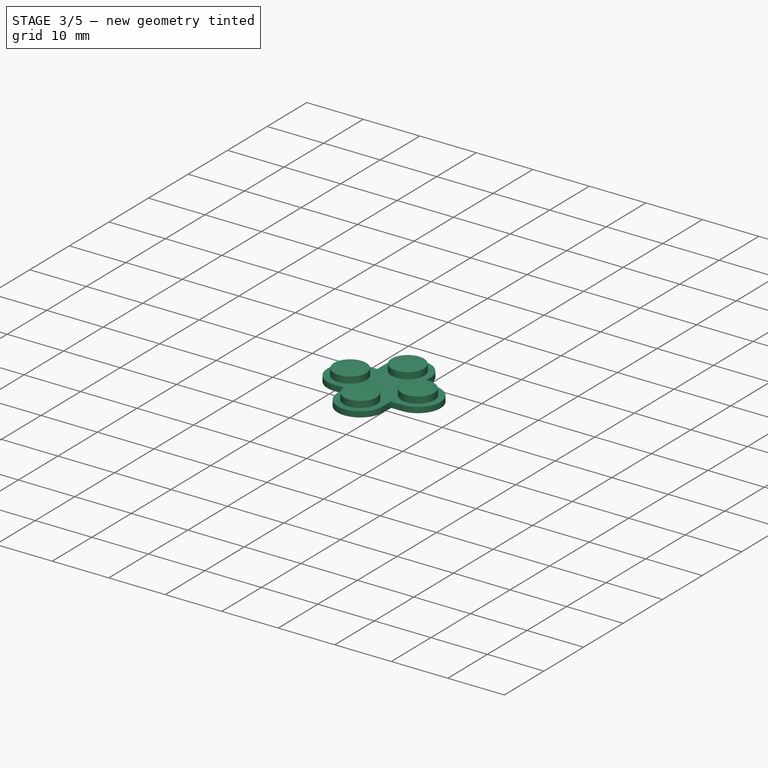
[diagram: stage 3 of 5 — iso view after this stage's code; geometry added in this stage tinted green]
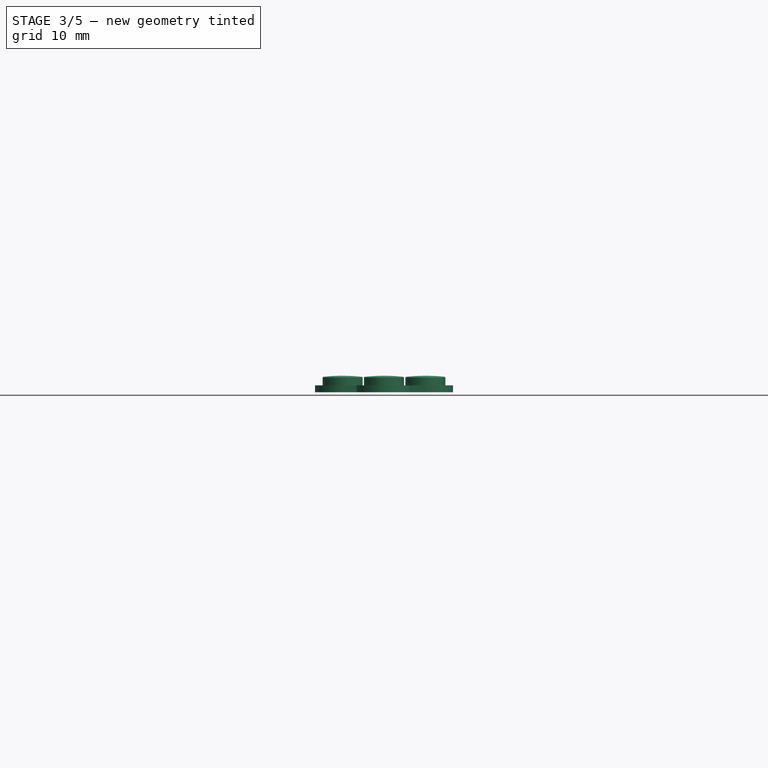
[diagram: stage 3 of 5 — front view after this stage's code; geometry added in this stage tinted green]
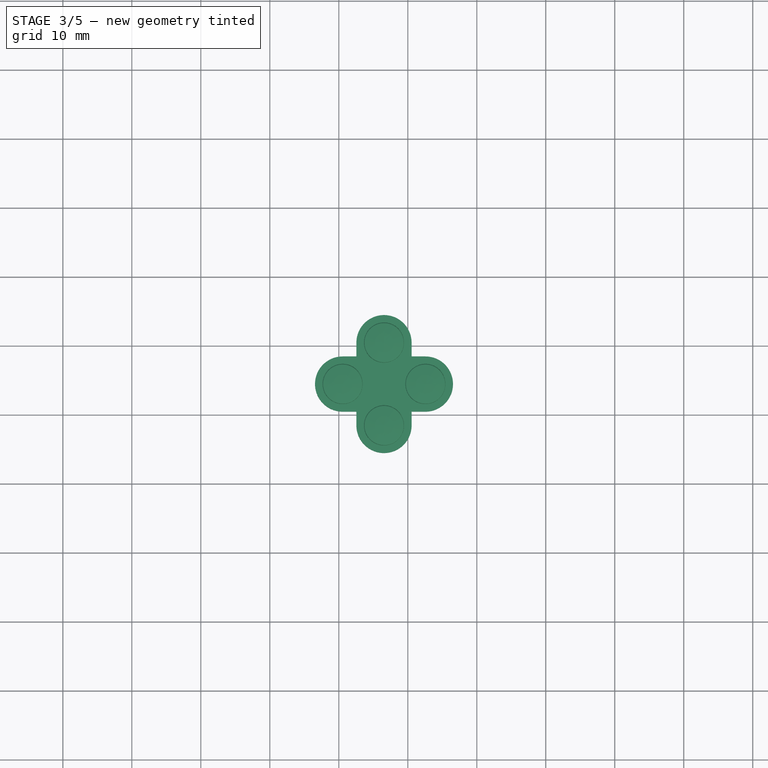
[diagram: stage 3 of 5 — top view after this stage's code; geometry added in this stage tinted green]
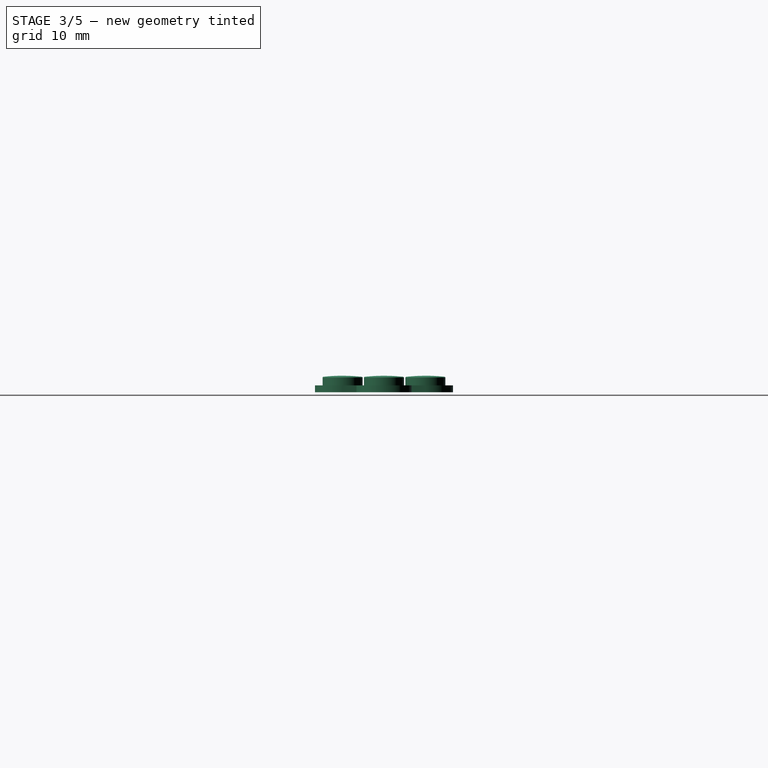
[diagram: stage 3 of 5 — right view after this stage's code; geometry added in this stage tinted green]
FEATURE [PartDesign::SubShapeBinder] Binder003
  BindCopyOnChange = 0
  BindMode = 0
  ClaimChildren = false
  Context = -> Body001 [Binder003.]
  Fuse = false
  MakeFace = true
  OffsetFill = false
  OffsetIntersection = false
  OffsetJoinType = 0
  OffsetOpenResult = false
  PartialLoad = false
  Relative = true
  Support = -> [Body[Pocket001.]]
  _Version = 2
FEATURE [PartDesign::Plane] DatumPlane002
  AttachmentSupport = -> [Binder003]
  Length = 80.1188
  MapMode = 5
  Placement = pos=(0,0,1.2) rot=(1,0,0;3.14159rad)
  ResizeMode = 0
  Width = 61.6979
FEATURE [Sketcher::SketchObject] Sketch006
  ArcFitTolerance = 1e-06
  AttachmentSupport = -> [DatumPlane002]
  ExternalGeometry = -> [Binder003]
  FullyConstrained = true
  MakeInternals = false
  MapMode = 5
  Placement = pos=(0,0,1.2) rot=(1,0,0;3.14159rad)
  sketch-geometry (12):
    g0: ArcOfCircle CenterX=-33.45 CenterY=-0.49 CenterZ=0 NormalX=0 NormalY=0 NormalZ=1 AngleXU=0 Radius=4 StartAngle=3.14159 EndAngle=6.28319
    g1: ArcOfCircle CenterX=-27.45 CenterY=5.51 CenterZ=0 NormalX=0 NormalY=0 NormalZ=1 AngleXU=0 Radius=4 StartAngle=4.71239 EndAngle=7.85398
    g2: LineSegment StartX=-29.45 StartY=-0.49 StartZ=0 EndX=-29.45 EndY=1.51 EndZ=0
    g3: LineSegment StartX=-27.45 StartY=1.51 StartZ=0 EndX=-29.45 EndY=1.51 EndZ=0
    g4: LineSegment StartX=-37.45 StartY=-0.49 StartZ=0 EndX=-37.45 EndY=1.51 EndZ=0
    g5: LineSegment StartX=-27.45 StartY=9.51 StartZ=0 EndX=-29.45 EndY=9.51 EndZ=0
    g6: LineSegment StartX=-37.45 StartY=1.51 StartZ=0 EndX=-39.45 EndY=1.51 EndZ=0
    g7: LineSegment StartX=-29.45 StartY=9.51 StartZ=0 EndX=-29.45 EndY=11.51 EndZ=0
    g8: LineSegment StartX=-37.45 StartY=9.51 StartZ=0 EndX=-39.45 EndY=9.51 EndZ=0
    g9: LineSegment StartX=-37.45 StartY=9.51 StartZ=0 EndX=-37.45 EndY=11.51 EndZ=0
    g10: ArcOfCircle CenterX=-33.45 CenterY=11.51 CenterZ=0 NormalX=0 NormalY=0 NormalZ=1 AngleXU=0 Radius=4 StartAngle=2.1e-15 EndAngle=3.14159
    g11: ArcOfCircle CenterX=-39.45 CenterY=5.51 CenterZ=0 NormalX=0 NormalY=0 NormalZ=1 AngleXU=0 Radius=4 StartAngle=1.5708 EndAngle=4.71239
  constraints (38):
    c: Coincident(g0,g-3)
    c: Coincident(g1,g-4)
    c: Vertical(g1,g1)
    c: Vertical(g1,g1)
    c: Horizontal(g0,g0)
    c: Horizontal(g0,g0)
    c: Equal(g0,g1)
    c: DistanceX(g-3,g0) = 0.2
    c: Coincident(g2,g0)
    c: Vertical(g2)
    c: Coincident(g3,g1)
    c: Coincident(g3,g2)
    c: Horizontal(g3)
    c: Coincident(g4,g0)
    c: Vertical(g4)
    c: Coincident(g5,g1)
    c: Horizontal(g5)
    c: Vertical(g5,g2)
    c: Horizontal(g4,g2)
    c: Coincident(g6,g4)
    c: Horizontal(g6)
    c: Coincident(g7,g5)
    c: Vertical(g7)
    c: Equal(g2,g7)
    c: Equal(g6,g3)
    c: Horizontal(g8)
    c: Coincident(g9,g8)
    c: Vertical(g9)
    c: Horizontal(g8,g5)
    c: Vertical(g8,g4)
    c: Vertical(g8,g6)
    c: Horizontal(g9,g7)
    c: Coincident(g10,g9)
    c: Coincident(g10,g7)
    c: Symmetric(g9,g7,g10)
    c: Coincident(g11,g6)
    c: Coincident(g11,g8)
    c: Symmetric(g6,g8,g11)
FEATURE [PartDesign::SubShapeBinder] Binder004
  BindCopyOnChange = 0
  BindMode = 0
  ClaimChildren = false
  Context = -> Body001 [Binder004.]
  Fuse = false
  MakeFace = true
  OffsetFill = false
  OffsetIntersection = false
  OffsetJoinType = 0
  OffsetOpenResult = false
  PartialLoad = false
  Relative = true
  Support = -> [Board_83e9[Board_Geoms_83e9.Pcb_83e9.Face32]]
  _Version = 2
FEATURE [PartDesign::Pad] Pad004
  Direction = (0,0,-1)
  Length = 10
  Length2 = 10
  Placement = pos=(0,0,1.2) rot=(1,0,0;3.14159rad)
  Profile = -> Sketch006
  ReferenceAxis = -> Sketch006 [N_Axis]
  Reversed = true
  Suppressed = false
  Type = 3
  UpToFace = -> Binder004 [Face1]
FEATURE [PartDesign::Point] DatumPoint
  AttacherType = Attacher::AttachEnginePoint
  AttachmentSupport = -> [Pad004]
  MapMode = 37
  Placement = pos=(-33.45,-11.51,2.2) rot=(0,0,1;0rad)
FEATURE [PartDesign::Line] DatumLine
  AttacherType = Attacher::AttachEngineLine
  AttachmentSupport = -> [DatumPoint,Pad004]
  Length = 20
  MapMode = 46
  Placement = pos=(-33.45,-11.51,2.2) rot=(0,0,1;3.14159rad)
  ResizeMode = 0
FEATURE [PartDesign::Point] DatumPoint001
  AttacherType = Attacher::AttachEnginePoint
  AttachmentSupport = -> [Pad004]
  MapMode = 37
  Placement = pos=(-33.45,-5.51,2.2) rot=(0,0,1;0rad)
FEATURE [PartDesign::Plane] DatumPlane003
  AttachmentSupport = -> [DatumLine,DatumPoint001]
  Length = 60
  MapMode = 13
  Placement = pos=(-33.45,-9.51,2.53333) rot=(0.57735,-0.57735,-0.57735;2.0944rad)
  ResizeMode = 0
  Width = 60
FEATURE [Sketcher::SketchObject] Sketch007
  ArcFitTolerance = 1e-06
  AttachmentSupport = -> [DatumPlane003]
  ExternalGeometry = -> [Pad004]
  FullyConstrained = true
  MakeInternals = false
  MapMode = 5
  Placement = pos=(-33.45,-9.51,2.53333) rot=(0.57735,-0.57735,-0.57735;2.0944rad)
  sketch-geometry (5):
    g0: LineSegment StartX=2 StartY=-0.333333 StartZ=0 EndX=4.9 EndY=-0.333333 EndZ=0
    g1: LineSegment StartX=4.9 StartY=-0.333333 StartZ=0 EndX=4.9 EndY=0.766667 EndZ=0
    g2: LineSegment StartX=2 StartY=-0.333333 StartZ=0 EndX=2 EndY=1.06667 EndZ=0
    g3: ArcOfCircle CenterX=4.74911 CenterY=0.766667 CenterZ=0 NormalX=0 NormalY=0 NormalZ=1 AngleXU=0 Radius=0.150885 StartAngle=0 EndAngle=1.46242
    g4: ArcOfCircle CenterX=2 CenterY=-24.5004 CenterZ=0 NormalX=0 NormalY=0 NormalZ=1 AngleXU=0 Radius=25.5671 StartAngle=1.46242 EndAngle=1.5708
  constraints (15):
    c: Distance(g0) = 2.9
    c: Coincident(g0,g-3)
    c: Horizontal(g0)
    c: Coincident(g1,g0)
    c: Vertical(g1)
    c: Distance(g2) = 1.4
    c: Coincident(g2,g0)
    c: Vertical(g2)
    c: Coincident(g3,g1)
    c: Horizontal(g3,g1)
    c: Coincident(g4,g2)
    c: Tangent(g4,g3) = -1.5708
    c: PointOnObject(g4,g-3)
    c: DistanceY(g0,g1) = 1.1
    c: DistanceY(g1,g3) = 0.15
FEATURE [PartDesign::Revolution] Revolution
  Angle = 360
  Angle2 = 60
  Axis = (0,0,1)
  Base = (-33.45,-11.51,2.2)
  BaseFeature = -> Pad004
  Placement = pos=(0,0,1.2) rot=(1,0,0;3.14159rad)
  Profile = -> Sketch007
  ReferenceAxis = -> DatumLine
  Refine = true
  Reversed = true
  Suppressed = false
  Type = 0
FEATURE [PartDesign::Line] DatumLine001
  AttacherType = Attacher::AttachEngineLine
  AttachmentSupport = -> [Revolution,DatumPoint001]
  Length = 20
  MapMode = 46
  Placement = pos=(-33.45,-5.51,2.2) rot=(0,0,1;3.14159rad)
  ResizeMode = 0
FEATURE [PartDesign::PolarPattern] PolarPattern
  Angle = 360
  Axis = -> DatumLine001
  BaseFeature = -> Revolution
  Mode = 0
  Occurrences = 4
  Offset = 120
  Originals = -> [Revolution]
  Placement = pos=(0,0,1.2) rot=(1,0,0;3.14159rad)
  Suppressed = false
  TransformMode = 0
FEATURE [Sketcher::SketchObject] Sketch008
  ArcFitTolerance = 1e-06
  AttachmentSupport = -> [PolarPattern]
  ExternalGeometry = -> [DatumPoint]
  FullyConstrained = true
  MakeInternals = false
  MapMode = 5
  Placement = pos=(0,0,1.2) rot=(1,0,0;3.14159rad)
  sketch-geometry (1):
    g0: Circle CenterX=-33.45 CenterY=11.51 CenterZ=0 NormalX=0 NormalY=0 NormalZ=1 AngleXU=0 Radius=2.05
  constraints (2):
    c: Coincident(g0,g-3)
    c: Diameter(g0) = 4.1
FEATURE [PartDesign::Pocket] Pocket002
  BaseFeature = -> PolarPattern
  Direction = (0,0,1)
  Length = 0.32
  Length2 = 5
  Placement = pos=(0,0,1.2) rot=(1,0,0;3.14159rad)
  Profile = -> Sketch008
  ReferenceAxis = -> Sketch008 [N_Axis]
  Suppressed = false
  Type = 0
FEATURE [PartDesign::PolarPattern] PolarPattern001
  Angle = 360
  Axis = -> DatumLine001
  BaseFeature = -> Pocket002
  Mode = 0
  Occurrences = 4
  Offset = 120
  Originals = -> [Pocket002]
  Placement = pos=(0,0,1.2) rot=(1,0,0;3.14159rad)
  Suppressed = false
  TransformMode = 0
FEATURE [PartDesign::Chamfer] Chamfer
  Angle = 45
  Base = -> Pad007 [Edge1569,Edge1991,Edge1578,Edge1992,Edge1587,Edge1993,Edge1604,Edge1609,Edge1520,Edge1995,Edge1994,Edge1949]
  BaseFeature = -> Pad007
  ChamferType = 0
  FlipDirection = false
  Placement = pos=(0,0,2.2) rot=(1,0,0;3.14159rad)
  Refine = true
  Size = 0.6
  Size2 = 1
  SupportTransform = false
  Suppressed = false
  UseAllEdges = false
FEATURE [PartDesign::Body] Body
  AllowCompound = false
  Group = -> [Binder011,Binder009,Binder010,Binder002,Binder001,DatumPlane001,Binder,DatumPlane,Sketch,Sketch001,Pad,Pad001,Sketch002,Pocket,MultiTransform,LinearPattern,LinearPattern001,Sketch003,Pad002,Sketch004,Pad003,Sketch005,Pocket001,Sketch014,Pad006,MultiTransform001,LinearPattern004,LinearPattern005,Sketch015,Pocket010,Sketch016,Pocket011,LinearPattern006,Sketch017,Pad007,Chamfer]
  Origin = -> Origin016
  Tip = -> Chamfer
note: 4 file-system paths scrubbed to <path> (originals preserved in the JSON sidecar)
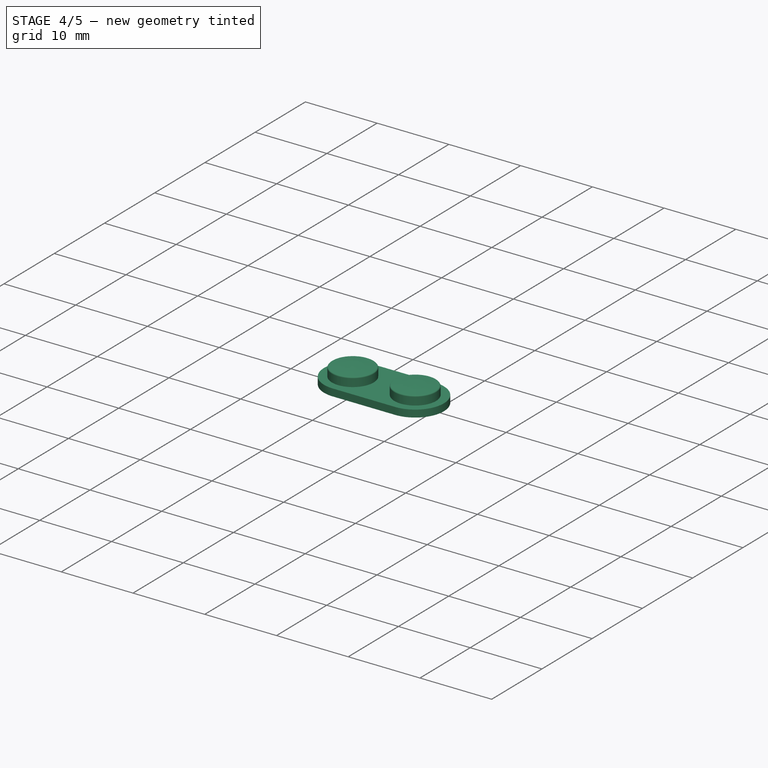
[diagram: stage 4 of 5 — iso view after this stage's code; geometry added in this stage tinted green]
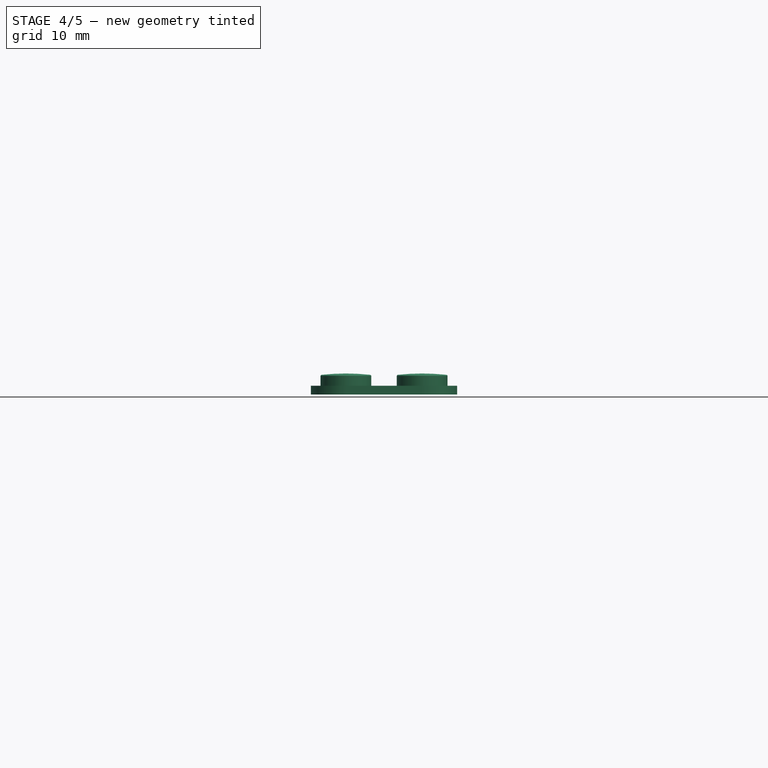
[diagram: stage 4 of 5 — front view after this stage's code; geometry added in this stage tinted green]
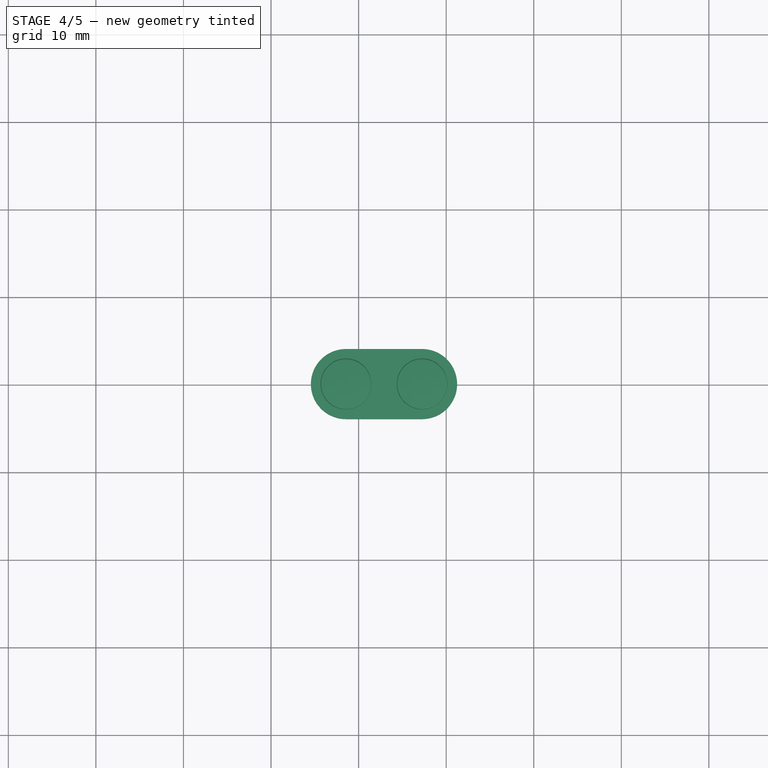
[diagram: stage 4 of 5 — top view after this stage's code; geometry added in this stage tinted green]
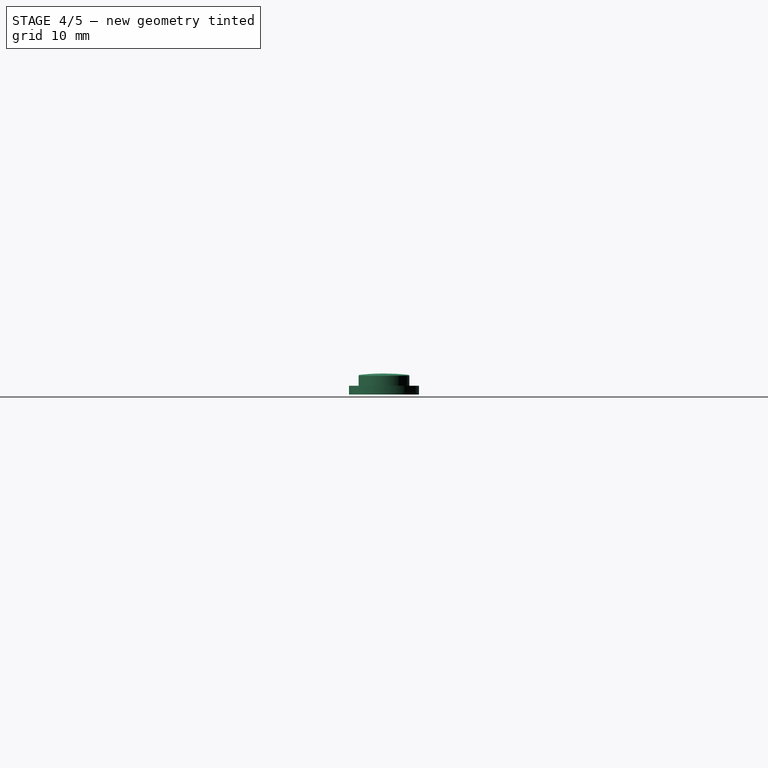
[diagram: stage 4 of 5 — right view after this stage's code; geometry added in this stage tinted green]
FEATURE [Sketcher::SketchObject] Sketch009
  ArcFitTolerance = 1e-06
  AttachmentOffset = pos=(0,0,0.9) rot=(0,0,1;0rad)
  AttachmentSupport = -> [PolarPattern001]
  ExternalGeometry = -> [PolarPattern001]
  FullyConstrained = true
  MakeInternals = false
  MapMode = 5
  Placement = pos=(0,-4e-16,3.1) rot=(0,0,1;0rad)
  sketch-geometry (4):
    g0: LineSegment StartX=-32.3675 StartY=-10.885 StartZ=0 EndX=-34.5325 EndY=-10.885 EndZ=0
    g1: LineSegment StartX=-34.5325 StartY=-10.885 StartZ=0 EndX=-33.45 EndY=-12.76 EndZ=0
    g2: LineSegment StartX=-33.45 StartY=-12.76 StartZ=0 EndX=-32.3675 EndY=-10.885 EndZ=0
    g3: Circle [constr] CenterX=-33.45 CenterY=-11.51 CenterZ=0 NormalX=0 NormalY=0 NormalZ=1 AngleXU=0 Radius=1.25
  constraints (11):
    c: Coincident(g0,g1)
    c: Coincident(g1,g2)
    c: Coincident(g2,g0)
    c: Equal(g0,g1)
    c: Equal(g0,g2)
    c: PointOnObject(g0,g3)
    c: PointOnObject(g1,g3)
    c: PointOnObject(g2,g3)
    c: Radius(g3) = 1.25
    c: Coincident(g3,g-3)
    c: Horizontal(g0)
FEATURE [PartDesign::Pocket] Pocket003
  BaseFeature = -> PolarPattern001
  Direction = (0,0,-1)
  Length = 5
  Length2 = 5
  Placement = pos=(0,0,1.2) rot=(1,0,0;3.14159rad)
  Profile = -> Sketch009
  ReferenceAxis = -> Sketch009 [N_Axis]
  Reversed = true
  Suppressed = false
  Type = 1
FEATURE [PartDesign::PolarPattern] PolarPattern002
  Angle = 360
  Axis = -> DatumLine001
  BaseFeature = -> Pocket003
  Mode = 0
  Occurrences = 4
  Offset = 120
  Originals = -> [Pocket003]
  Placement = pos=(0,0,1.2) rot=(1,0,0;3.14159rad)
  Refine = true
  Suppressed = false
  TransformMode = 0
FEATURE [PartDesign::Body] Body004  label="CommandCluster"
  AllowCompound = false
  Group = -> [Clone,ShapeString,Pocket004,ShapeString001,Pocket005,ShapeString002,Pocket006,ShapeString003,Pocket007]
  Origin = -> Origin020
  Placement = pos=(66.9,0,0) rot=(0,0,1;0rad)
  Tip = -> Pocket007
FEATURE [PartDesign::SubShapeBinder] Binder005
  BindCopyOnChange = 0
  BindMode = 0
  ClaimChildren = false
  Context = -> Body005 [Binder005.]
  Fuse = false
  MakeFace = true
  OffsetFill = false
  OffsetIntersection = false
  OffsetJoinType = 0
  OffsetOpenResult = false
  PartialLoad = false
  Relative = true
  Support = -> [Body[Pocket001.]]
  _Version = 2
FEATURE [PartDesign::Plane] DatumPlane004
  AttachmentSupport = -> [Binder005]
  Length = 66.8326
  MapMode = 5
  Placement = pos=(0,0,1.2) rot=(1,0,0;3.14159rad)
  ResizeMode = 0
  Width = 60.6045
FEATURE [Sketcher::SketchObject] Sketch010
  ArcFitTolerance = 1e-06
  AttachmentSupport = -> [DatumPlane004]
  ExternalGeometry = -> [Binder005]
  FullyConstrained = true
  MakeInternals = false
  MapMode = 5
  Placement = pos=(0,0,1.2) rot=(1,0,0;3.14159rad)
  sketch-geometry (4):
    g0: ArcOfCircle CenterX=18.55 CenterY=-10.11 CenterZ=0 NormalX=0 NormalY=0 NormalZ=1 AngleXU=0 Radius=4 StartAngle=1.5708 EndAngle=4.71239
    g1: ArcOfCircle CenterX=27.25 CenterY=-10.11 CenterZ=0 NormalX=0 NormalY=0 NormalZ=1 AngleXU=0 Radius=4 StartAngle=4.71239 EndAngle=7.85398
    g2: LineSegment StartX=18.55 StartY=-6.11 StartZ=0 EndX=27.25 EndY=-6.11 EndZ=0
    g3: LineSegment StartX=18.55 StartY=-14.11 StartZ=0 EndX=27.25 EndY=-14.11 EndZ=0
  constraints (8):
    c: Tangent(g0,g2) = 1.5708
    c: Tangent(g0,g3) = -1.5708
    c: Tangent(g1,g2) = 1.5708
    c: Tangent(g1,g3) = -1.5708
    c: Equal(g0,g1)
    c: Coincident(g1,g-4)
    c: Coincident(g0,g-3)
    c: DistanceY(g-4,g1) = 0.2
FEATURE [PartDesign::SubShapeBinder] Binder006
  BindCopyOnChange = 0
  BindMode = 0
  ClaimChildren = false
  Context = -> Body005 [Binder006.]
  Fuse = false
  MakeFace = true
  OffsetFill = false
  OffsetIntersection = false
  OffsetJoinType = 0
  OffsetOpenResult = false
  PartialLoad = false
  Relative = true
  Support = -> [Body[Pocket001.Face2]]
  _Version = 2
FEATURE [PartDesign::Pad] Pad005
  Direction = (0,0,-1)
  Length = 10
  Length2 = 10
  Placement = pos=(0,0,1.2) rot=(1,0,0;3.14159rad)
  Profile = -> Sketch010
  ReferenceAxis = -> Sketch010 [N_Axis]
  Suppressed = false
  Type = 3
  UpToFace = -> Binder006 [Face1]
FEATURE [PartDesign::Point] DatumPoint002
  AttacherType = Attacher::AttachEnginePoint
  AttachmentSupport = -> [Pad005]
  MapMode = 37
  Placement = pos=(18.55,10.11,1.2) rot=(0,0,1;0rad)
FEATURE [PartDesign::Line] DatumLine002
  AttacherType = Attacher::AttachEngineLine
  AttachmentSupport = -> [Pad005,DatumPoint002]
  Length = 20
  MapMode = 46
  Placement = pos=(18.55,10.11,1.2) rot=(1,0,0;3.14159rad)
  ResizeMode = 0
FEATURE [PartDesign::SubShapeBinder] Binder007
  BindCopyOnChange = 0
  BindMode = 0
  ClaimChildren = false
  Context = -> Body005 [Binder007.]
  Fuse = false
  MakeFace = true
  OffsetFill = false
  OffsetIntersection = false
  OffsetJoinType = 0
  OffsetOpenResult = false
  PartialLoad = false
  Relative = true
  Support = -> [Body001]
  _Version = 2
FEATURE [Sketcher::SketchObject] Sketch011
  ArcFitTolerance = 1e-06
  AttachmentSupport = -> [Pad005]
  ExternalGeometry = -> [DatumPoint002,Binder007]
  FullyConstrained = true
  MakeInternals = false
  MapMode = 5
  Placement = pos=(0,0,1.2) rot=(1,0,0;3.14159rad)
  sketch-geometry (1):
    g0: Circle CenterX=18.55 CenterY=-10.11 CenterZ=0 NormalX=0 NormalY=0 NormalZ=1 AngleXU=0 Radius=2.05
  constraints (2):
    c: Coincident(g0,g-3)
    c: Equal(g0,g-4)
FEATURE [PartDesign::Pocket] Pocket008
  BaseFeature = -> Pad005
  Direction = (0,0,1)
  Length = 0
  Length2 = 5
  Placement = pos=(0,0,1.2) rot=(1,0,0;3.14159rad)
  Profile = -> Sketch011
  ReferenceAxis = -> Sketch011 [N_Axis]
  Suppressed = false
  Type = 3
  UpToFace = -> Binder007 [Face35]
FEATURE [PartDesign::Point] DatumPoint003
  AttacherType = Attacher::AttachEnginePoint
  AttachmentSupport = -> [Pocket008]
  MapMode = 37
  Placement = pos=(27.25,10.11,1.2) rot=(0,0,1;0rad)
FEATURE [PartDesign::LinearPattern] LinearPattern002
  BaseFeature = -> Pocket008
  Direction = -> Sketch011 [H_Axis]
  Length = 8.7
  Mode = 1
  Occurrences = 2
  Offset = 8.7
  Originals = -> [Pocket008]
  Placement = pos=(0,0,1.2) rot=(1,0,0;3.14159rad)
  Suppressed = false
  TransformMode = 0
FEATURE [PartDesign::SubShapeBinder] Binder008
  BindCopyOnChange = 0
  BindMode = 0
  ClaimChildren = false
  Context = -> Body005 [Binder008.]
  Fuse = false
  MakeFace = true
  OffsetFill = false
  OffsetIntersection = false
  OffsetJoinType = 0
  OffsetOpenResult = false
  PartialLoad = false
  Relative = true
  Support = -> [Body001[Sketch007.]]
  _Version = 2
FEATURE [PartDesign::Point] DatumPoint004
  AttacherType = Attacher::AttachEnginePoint
  AttachmentSupport = -> [LinearPattern002]
  MapMode = 37
  Placement = pos=(18.55,10.11,2.2) rot=(0,0,1;0rad)
FEATURE [PartDesign::Line] DatumLine003
  AttacherType = Attacher::AttachEngineLine
  AttachmentSupport = -> [LinearPattern002]
  Length = 20
  MapMode = 29
  Placement = pos=(18.55,-3.0571e-12,2.2) rot=(1,0,0;1.5708rad)
  ResizeMode = 0
FEATURE [PartDesign::Plane] DatumPlane005
  AttachmentSupport = -> [DatumLine002,DatumLine003]
  Length = 60
  MapMode = 13
  Placement = pos=(18.55,6.74,1.2) rot=(-0.57735,0.57735,0.57735;4.18879rad)
  ResizeMode = 0
  Width = 60
FEATURE [Sketcher::SketchObject] Sketch012
  ArcFitTolerance = 1e-06
  AttachmentSupport = -> [DatumPlane005]
  ExternalGeometry = -> [DatumPoint004,Binder008]
  FullyConstrained = true
  MakeInternals = false
  MapMode = 5
  Placement = pos=(18.55,6.74,1.2) rot=(-0.57735,0.57735,0.57735;4.18879rad)
  sketch-geometry (5):
    g0: LineSegment StartX=-3.37 StartY=1 StartZ=0 EndX=-3.37 EndY=2.4 EndZ=0
    g1: LineSegment StartX=-3.37 StartY=1 StartZ=0 EndX=-0.47 EndY=1 EndZ=0
    g2: LineSegment StartX=-0.47 StartY=1 StartZ=0 EndX=-0.47 EndY=2.1 EndZ=0
    g3: ArcOfCircle CenterX=-0.620885 CenterY=2.1 CenterZ=0 NormalX=0 NormalY=0 NormalZ=1 AngleXU=0 Radius=0.150885 StartAngle=0 EndAngle=1.46241
    g4: ArcOfCircle CenterX=-3.37 CenterY=-23.1671 CenterZ=0 NormalX=0 NormalY=0 NormalZ=1 AngleXU=0 Radius=25.5671 StartAngle=1.46242 EndAngle=1.5708
  constraints (16):
    c: Coincident(g0,g-3)
    c: Vertical(g0)
    c: Coincident(g1,g0)
    c: Horizontal(g1)
    c: Equal(g1,g-6)
    c: Equal(g0,g-7)
    c: Coincident(g2,g1)
    c: Vertical(g2)
    c: Equal(g-5,g2)
    c: Coincident(g3,g2)
    c: Horizontal(g3,g2)
    c: Equal(g3,g-8)
    c: Coincident(g4,g3)
    c: Coincident(g4,g0)
    c: PointOnObject(g4,g0)
    c: Equal(g4,g-4)
FEATURE [PartDesign::Revolution] Revolution001
  Angle = 360
  Angle2 = 60
  Axis = (0,0,-1)
  Base = (18.55,10.11,1.2)
  BaseFeature = -> LinearPattern002
  Placement = pos=(0,0,1.2) rot=(1,0,0;3.14159rad)
  Profile = -> Sketch012
  ReferenceAxis = -> DatumLine002
  Suppressed = false
  Type = 0
FEATURE [PartDesign::LinearPattern] LinearPattern003
  BaseFeature = -> Revolution001
  Direction = -> Sketch012 [N_Axis]
  Length = 8.7
  Mode = 0
  Occurrences = 2
  Offset = 8.7
  Originals = -> [Revolution001]
  Placement = pos=(0,0,1.2) rot=(1,0,0;3.14159rad)
  Reversed = true
  Suppressed = false
  TransformMode = 0
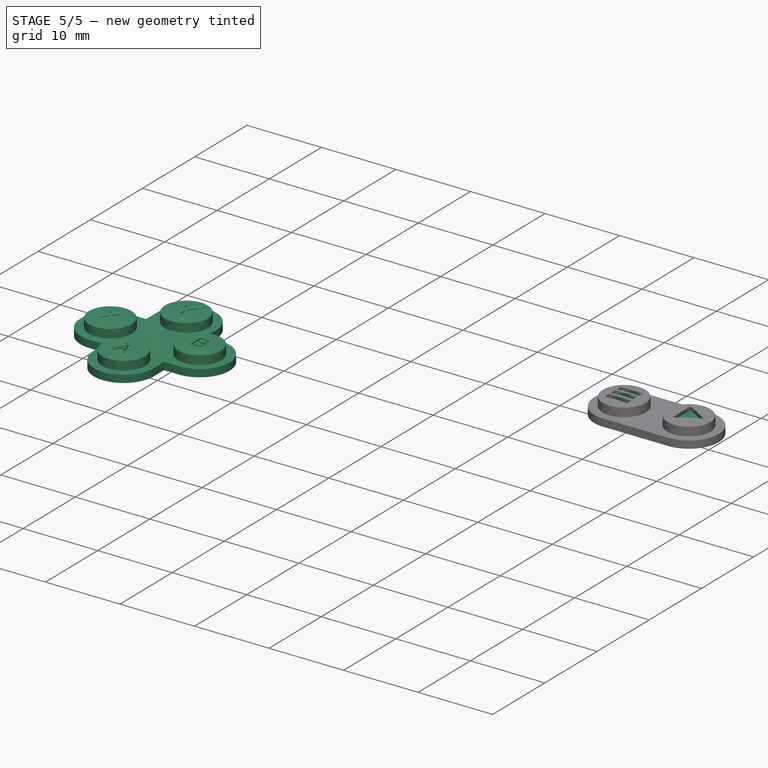
[diagram: stage 5 of 5 — iso view after this stage's code; geometry added in this stage tinted green]
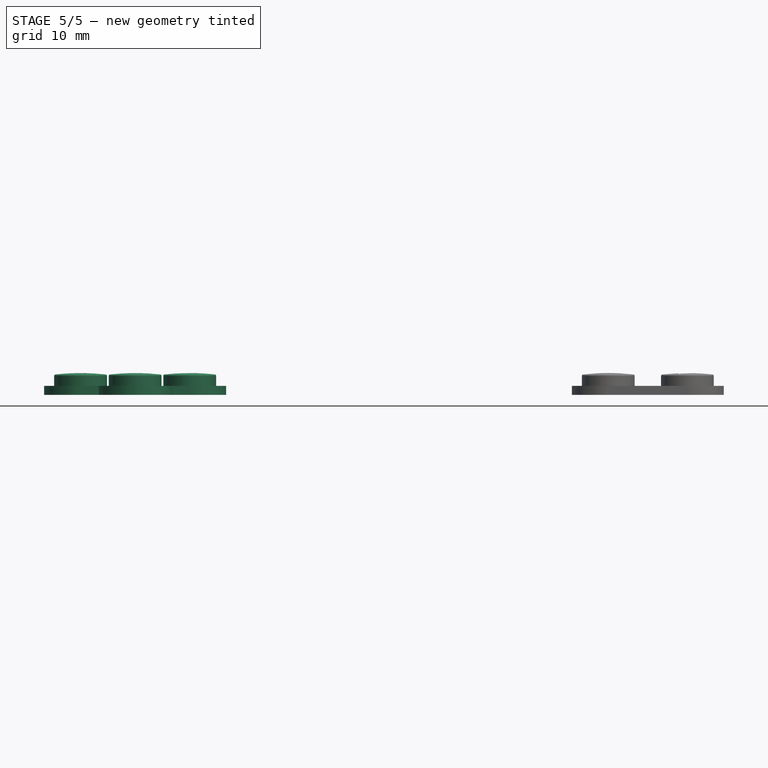
[diagram: stage 5 of 5 — front view after this stage's code; geometry added in this stage tinted green]
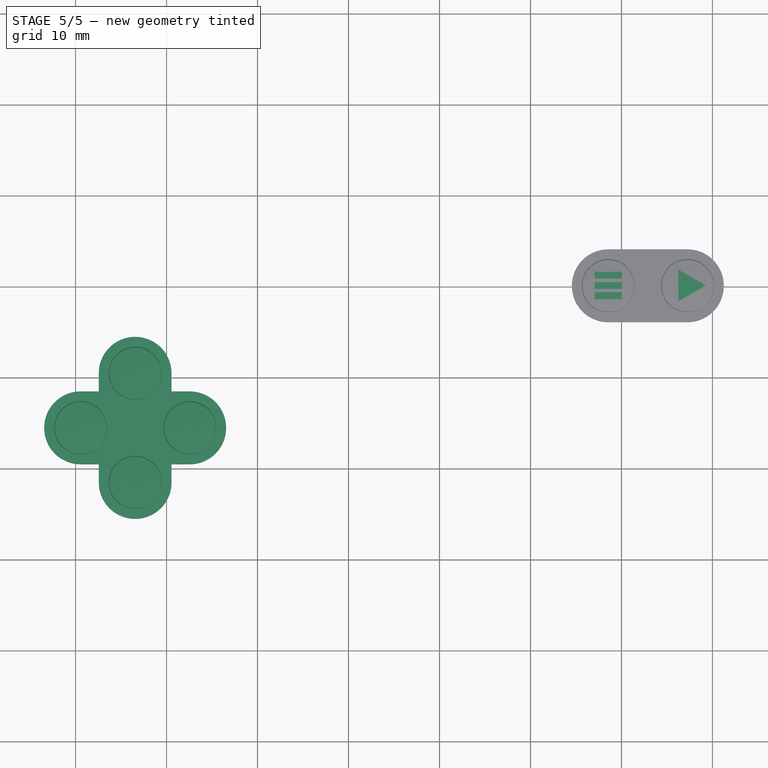
[diagram: stage 5 of 5 — top view after this stage's code; geometry added in this stage tinted green]
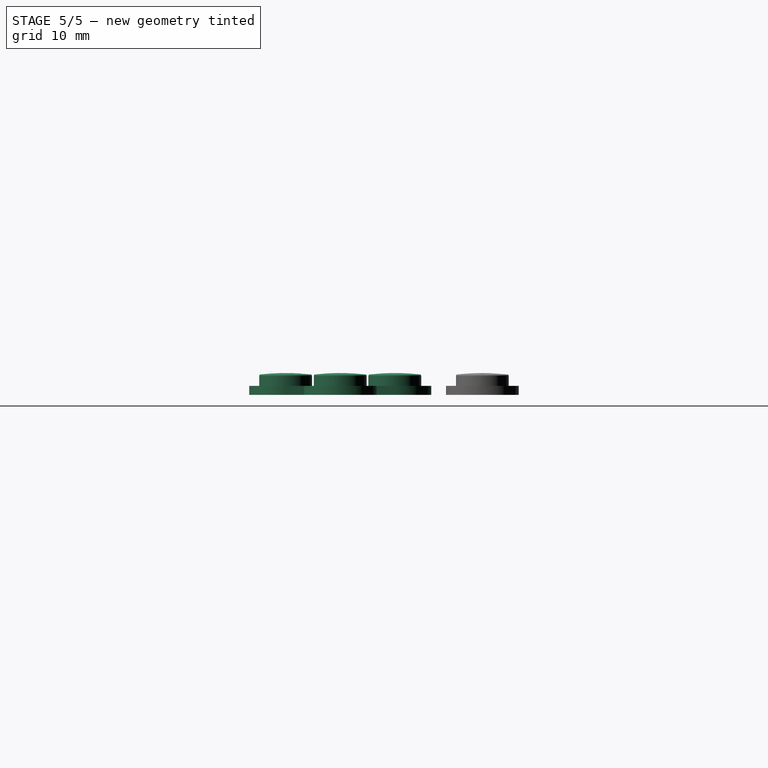
[diagram: stage 5 of 5 — right view after this stage's code; geometry added in this stage tinted green]
FEATURE [PartDesign::Body] Body001  label="DirCluster"
  AllowCompound = false
  Group = -> [Binder003,DatumPlane002,Binder004,Sketch006,Pad004,DatumPoint,DatumLine,DatumPoint001,DatumPlane003,Sketch007,Revolution,DatumLine001,PolarPattern,Sketch008,Pocket002,PolarPattern001,Sketch009,Pocket003,PolarPattern002]
  Origin = -> Origin017
  Tip = -> PolarPattern002
FEATURE [PartDesign::FeatureBase] Clone
  BaseFeature = -> PolarPattern001
  Placement = pos=(0,-9e-16,1.2) rot=(1,0,0;3.14159rad)
  Suppressed = false
FEATURE [Part::Part2DObjectPython] ShapeString  # Draft 2D object (typed FeaturePython)
  AttachmentOffset = pos=(0.9,1,0) rot=(0,0,1;3.14159rad)
  AttachmentSupport = -> [Clone]
  FontFile = <path>
  Fuse = false
  Justification = 6
  JustificationReference = 0
  KeepLeftMargin = false
  MakeFace = true
  MapMode = 6
  ObliqueAngle = 0
  Placement = pos=(-34.35,-12.51,3.6) rot=(0,0,1;0rad)
  ScaleToSize = true
  Size = 2
  String = A
  Tracking = 0
FEATURE [PartDesign::Pocket] Pocket004
  BaseFeature = -> Clone
  Direction = (0,0,-1)
  Length = 0.2
  Length2 = 5
  Placement = pos=(0,-9e-16,1.2) rot=(1,0,0;3.14159rad)
  Profile = -> ShapeString
  ReferenceAxis = -> ShapeString [N_Axis]
  Suppressed = false
  Type = 0
FEATURE [Part::Part2DObjectPython] ShapeString001  # Draft 2D object (typed FeaturePython)
  AttachmentOffset = pos=(1,-0.6,0) rot=(0,0,1;1.5708rad)
  AttachmentSupport = -> [Clone]
  FontFile = <path>
  Fuse = false
  Justification = 6
  JustificationReference = 0
  KeepLeftMargin = false
  MakeFace = true
  MapMode = 6
  ObliqueAngle = 0
  Placement = pos=(-28.05,-6.51,3.6) rot=(0,0,1;0rad)
  ScaleToSize = true
  Size = 2
  String = B
  Tracking = 0
FEATURE [PartDesign::Pocket] Pocket005
  BaseFeature = -> Pocket004
  Direction = (0,0,-1)
  Length = 0.2
  Length2 = 5
  Placement = pos=(0,-9e-16,1.2) rot=(1,0,0;3.14159rad)
  Profile = -> ShapeString001
  ReferenceAxis = -> ShapeString001 [N_Axis]
  Suppressed = false
  Type = 0
FEATURE [Part::Part2DObjectPython] ShapeString002  # Draft 2D object (typed FeaturePython)
  AttachmentOffset = pos=(-1,0.9,0) rot=(0,0,1;-1.5708rad)
  AttachmentSupport = -> [Pocket005]
  FontFile = <path>
  Fuse = false
  Justification = 6
  JustificationReference = 0
  KeepLeftMargin = false
  MakeFace = true
  MapMode = 6
  ObliqueAngle = 0
  Placement = pos=(-40.35,-6.51,3.6) rot=(0,0,1;0rad)
  ScaleToSize = true
  Size = 2
  String = X
  Tracking = 0
FEATURE [PartDesign::Pocket] Pocket006
  BaseFeature = -> Pocket005
  Direction = (0,0,-1)
  Length = 0.2
  Length2 = 5
  Placement = pos=(0,-9e-16,1.2) rot=(1,0,0;3.14159rad)
  Profile = -> ShapeString002
  ReferenceAxis = -> ShapeString002 [N_Axis]
  Suppressed = false
  Type = 0
FEATURE [Part::Part2DObjectPython] ShapeString003  # Draft 2D object (typed FeaturePython)
  AttachmentOffset = pos=(-0.92,-1,0) rot=(0,0,1;0rad)
  AttachmentSupport = -> [Pocket006]
  FontFile = <path>
  Fuse = false
  Justification = 6
  JustificationReference = 0
  KeepLeftMargin = false
  MakeFace = true
  MapMode = 6
  ObliqueAngle = 0
  Placement = pos=(-34.37,-0.51,3.6) rot=(0,0,1;0rad)
  ScaleToSize = true
  Size = 2
  String = Y
  Tracking = 0
FEATURE [PartDesign::Pocket] Pocket007
  BaseFeature = -> Pocket006
  Direction = (0,0,-1)
  Length = 0.2
  Length2 = 5
  Placement = pos=(0,-9e-16,1.2) rot=(1,0,0;3.14159rad)
  Profile = -> ShapeString003
  ReferenceAxis = -> ShapeString003 [N_Axis]
  Suppressed = false
  Type = 0
FEATURE [PartDesign::Plane] DatumPlane006
  AttachmentSupport = -> [LinearPattern003]
  Length = 66.8326
  MapMode = 6
  Placement = pos=(27.25,10.11,3.6) rot=(0,0,1;3.14159rad)
  ResizeMode = 0
  Width = 60.6045
FEATURE [Sketcher::SketchObject] Sketch013
  ArcFitTolerance = 1e-06
  AttachmentSupport = -> [DatumPlane006]
  ExternalGeometry = -> [LinearPattern003]
  FullyConstrained = true
  MakeInternals = false
  MapMode = 5
  Placement = pos=(27.25,10.11,3.6) rot=(0,0,1;3.14159rad)
  sketch-geometry (16):
    g0: LineSegment StartX=1 StartY=1.73205 StartZ=0 EndX=-2 EndY=-2.9e-15 EndZ=0
    g1: LineSegment StartX=-2 StartY=-2.9e-15 StartZ=0 EndX=1 EndY=-1.73205 EndZ=0
    g2: LineSegment StartX=1 StartY=-1.73205 StartZ=0 EndX=1 EndY=1.73205 EndZ=0
    g3: Circle [constr] CenterX=0 CenterY=0 CenterZ=0 NormalX=0 NormalY=0 NormalZ=1 AngleXU=0 Radius=2
    g4: LineSegment StartX=7.2 StartY=0.375 StartZ=0 EndX=7.2 EndY=-0.375 EndZ=0
    g5: LineSegment StartX=7.2 StartY=-0.375 StartZ=0 EndX=10.2 EndY=-0.375 EndZ=0
    g6: LineSegment StartX=10.2 StartY=-0.375 StartZ=0 EndX=10.2 EndY=0.375 EndZ=0
    g7: LineSegment StartX=10.2 StartY=0.375 StartZ=0 EndX=7.2 EndY=0.375 EndZ=0
    g8: LineSegment StartX=7.2 StartY=1.5 StartZ=0 EndX=7.2 EndY=0.75 EndZ=0
    g9: LineSegment StartX=7.2 StartY=0.75 StartZ=0 EndX=10.2 EndY=0.75 EndZ=0
    g10: LineSegment StartX=10.2 StartY=0.75 StartZ=0 EndX=10.2 EndY=1.5 EndZ=0
    g11: LineSegment StartX=10.2 StartY=1.5 StartZ=0 EndX=7.2 EndY=1.5 EndZ=0
    g12: LineSegment StartX=7.2 StartY=-0.75 StartZ=0 EndX=7.2 EndY=-1.5 EndZ=0
    g13: LineSegment StartX=7.2 StartY=-1.5 StartZ=0 EndX=10.2 EndY=-1.5 EndZ=0
    g14: LineSegment StartX=10.2 StartY=-1.5 StartZ=0 EndX=10.2 EndY=-0.75 EndZ=0
    g15: LineSegment StartX=10.2 StartY=-0.75 StartZ=0 EndX=7.2 EndY=-0.75 EndZ=0
  constraints (45):
    c: Coincident(g0,g1)
    c: Coincident(g1,g2)
    c: Coincident(g2,g0)
    c: Equal(g0,g1)
    c: Equal(g0,g2)
    c: PointOnObject(g0,g3)
    c: PointOnObject(g1,g3)
    c: PointOnObject(g2,g3)
    c: Radius(g3) = 2
    c: Coincident(g3,g-1)
    c: Vertical(g2)
    c: Coincident(g4,g5)
    c: Coincident(g5,g6)
    c: Coincident(g6,g7)
    c: Coincident(g7,g4)
    c: Vertical(g4)
    c: Vertical(g6)
    c: Horizontal(g5)
    c: Horizontal(g7)
    c: Symmetric(g4,g5,g-3)
    c: DistanceX(g7,g7) = 3
    c: DistanceY(g6,g6) = 0.75
    c: Coincident(g8,g9)
    c: Coincident(g9,g10)
    c: Coincident(g10,g11)
    c: Coincident(g11,g8)
    c: Vertical(g8)
    c: Vertical(g10)
    c: Horizontal(g9)
    c: Horizontal(g11)
    c: Coincident(g12,g13)
    c: Coincident(g13,g14)
    c: Coincident(g14,g15)
    c: Coincident(g15,g12)
    c: Vertical(g12)
    c: Vertical(g14)
    c: Horizontal(g13)
    c: Horizontal(g15)
    c: Vertical(g9,g6)
    c: Equal(g11,g7)
    c: Equal(g10,g6)
    c: Vertical(g4,g12)
    c: Equal(g12,g4)
    c: Symmetric(g8,g13,g-3)
    c: DistanceY(g13,g10) = 3
FEATURE [PartDesign::Pocket] Pocket009
  BaseFeature = -> LinearPattern003
  Direction = (0,0,-1)
  Length = 0
  Length2 = 5
  Placement = pos=(0,0,1.2) rot=(1,0,0;3.14159rad)
  Profile = -> Sketch013
  ReferenceAxis = -> Sketch013 [N_Axis]
  Suppressed = false
  Type = 3
  UpToFace = -> Binder007 [Face49]
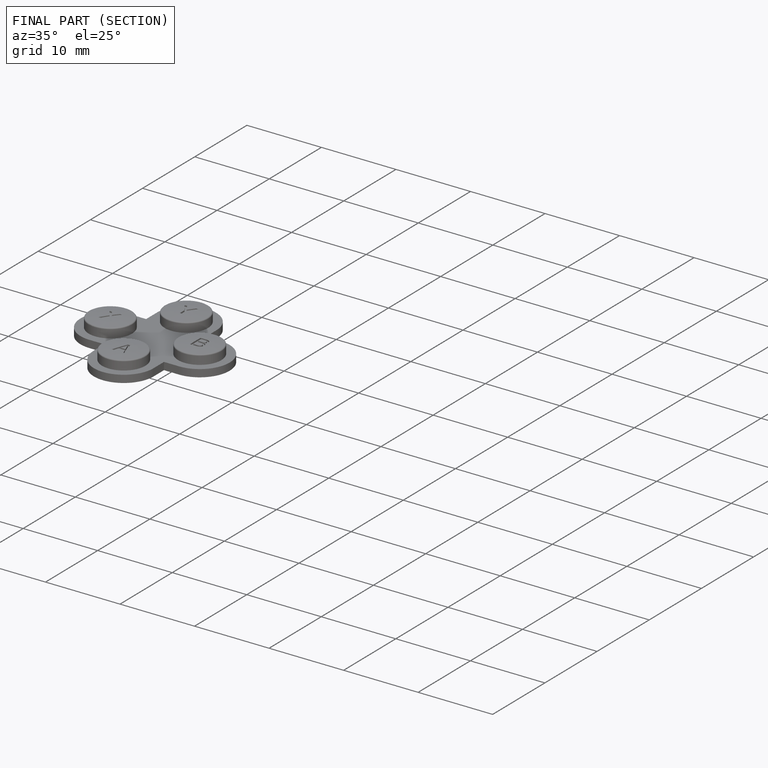
[diagram: finished part — half-section view (interior)]
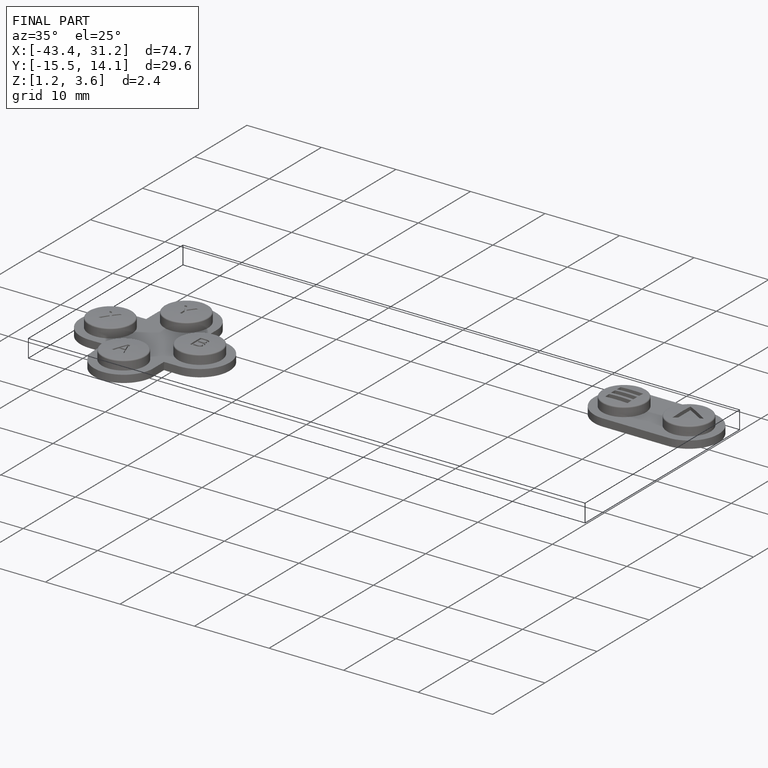
[diagram: finished part — iso view with bounding-box wireframe]
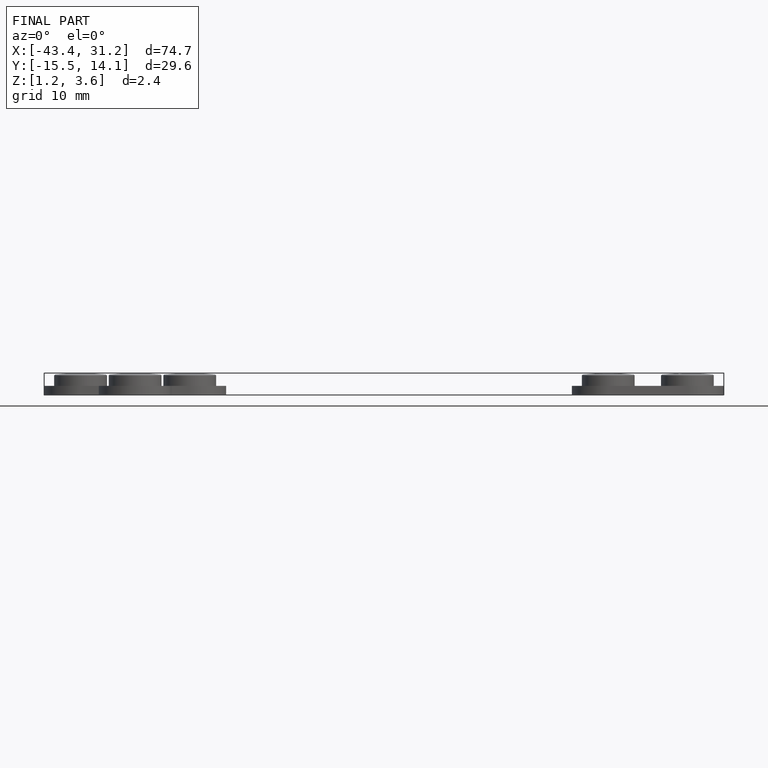
[diagram: finished part — front view with bounding-box wireframe]
